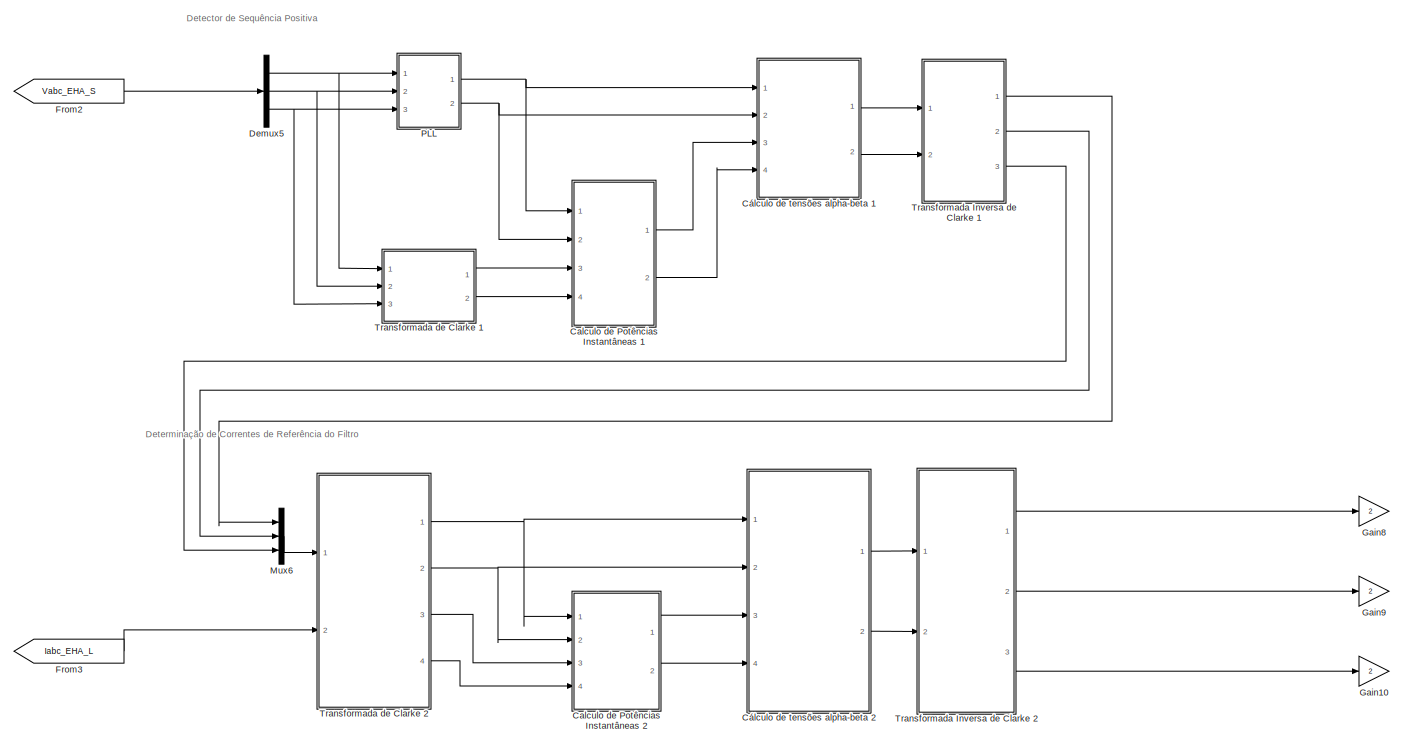
[diagram: root canvas - part 1/7, top center region]
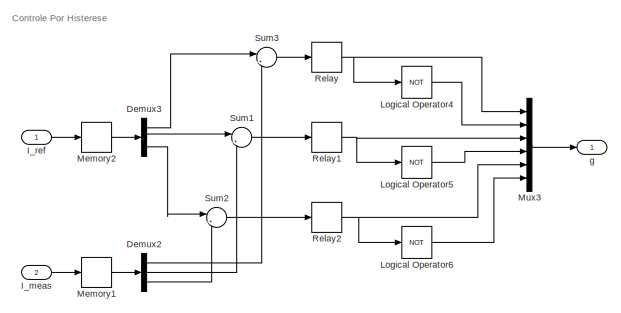
[diagram: root canvas - part 2/7, middle right region]
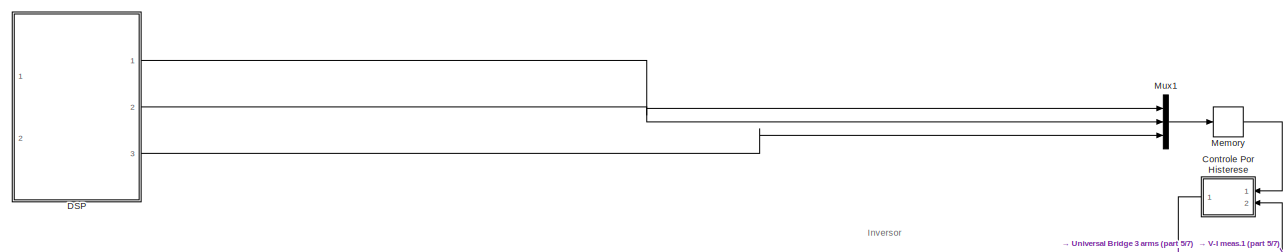
[diagram: root canvas - part 3/7, central region]
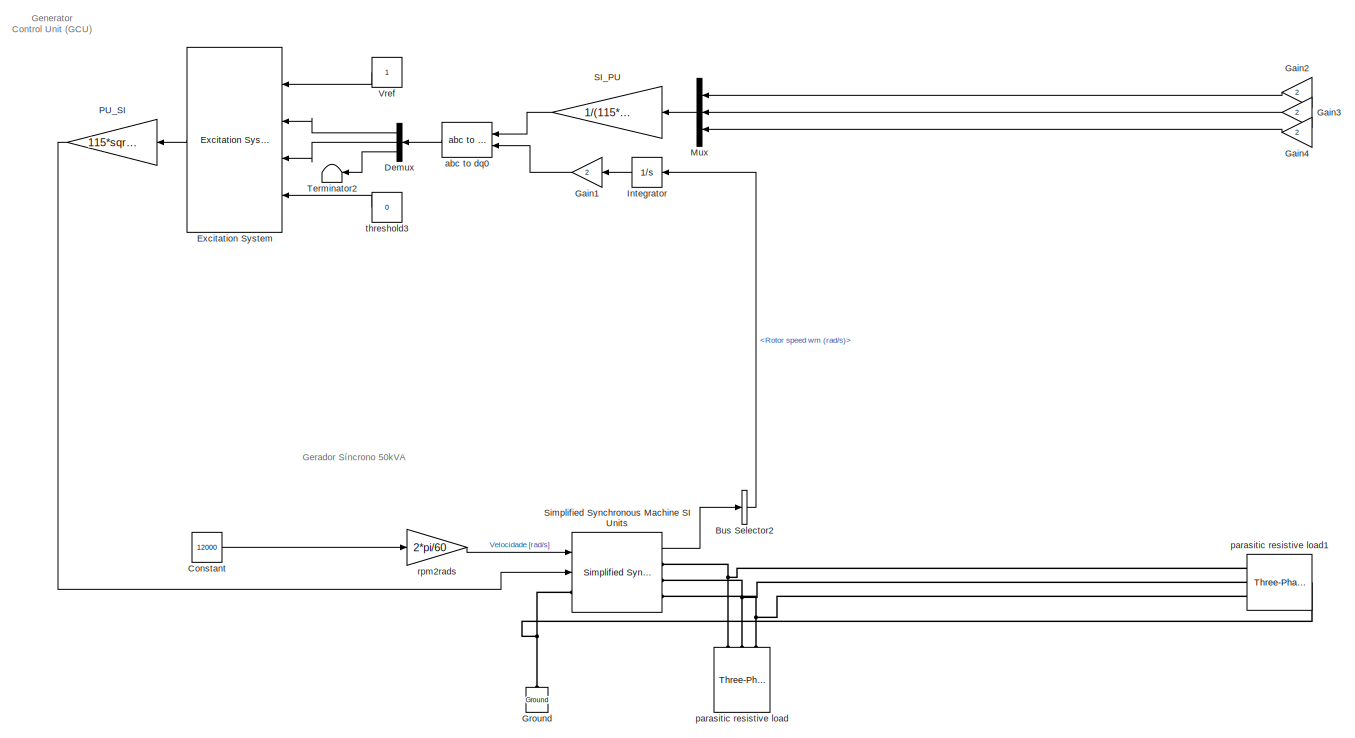
[diagram: root canvas - part 4/7, middle left region]
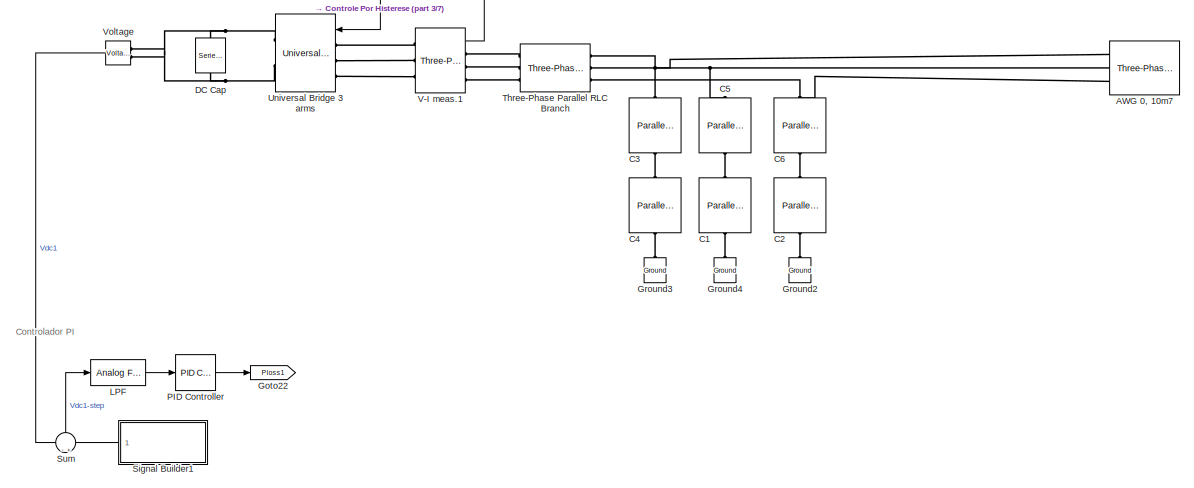
[diagram: root canvas - part 5/7, central region]
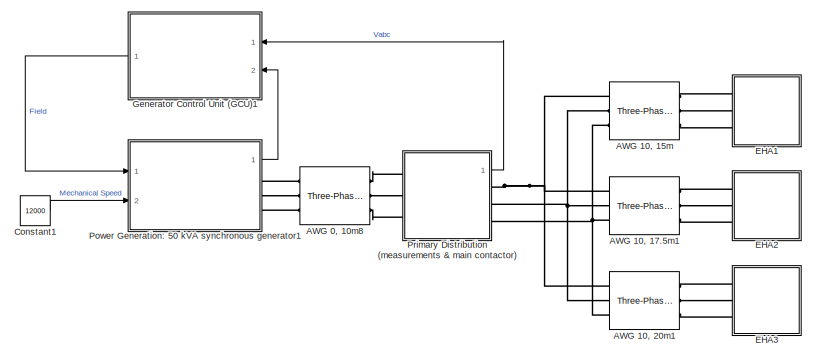
[diagram: root canvas - part 6/7, middle right region]
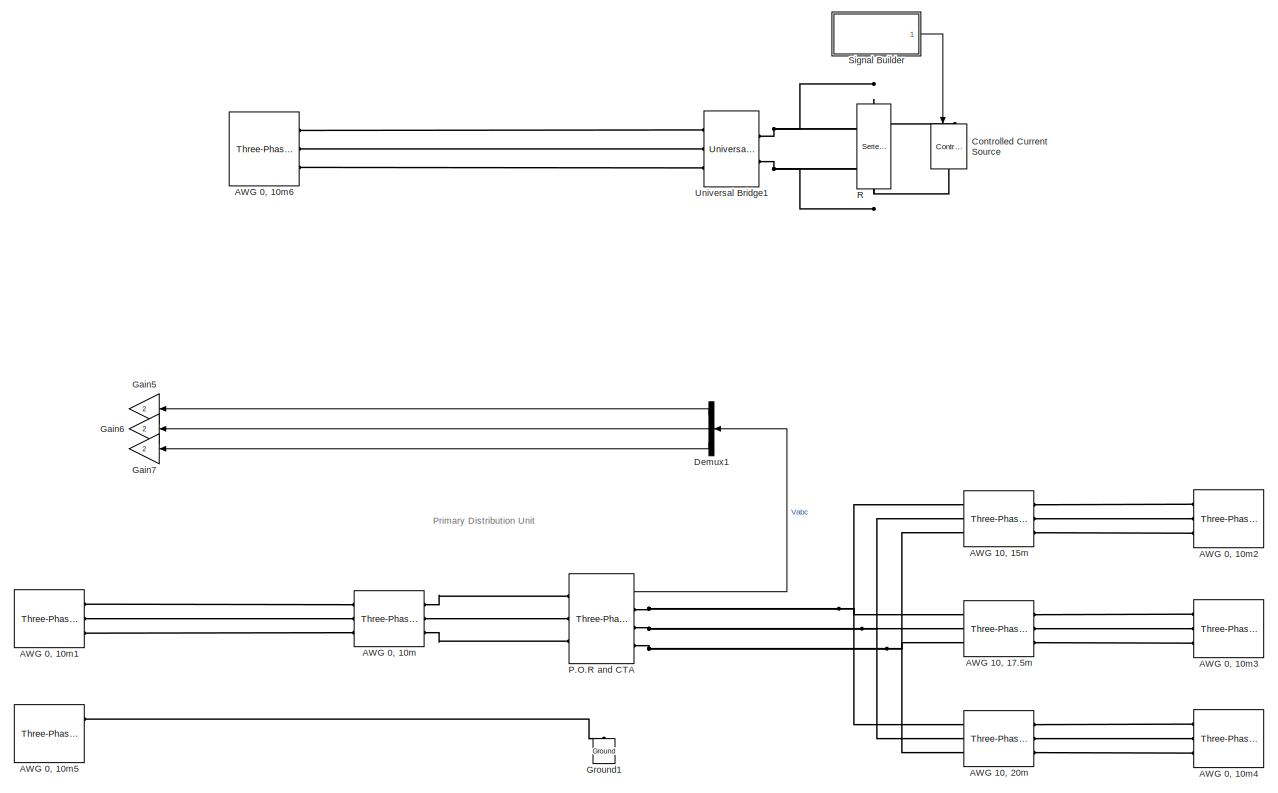
[diagram: root canvas - part 7/7, bottom left region]
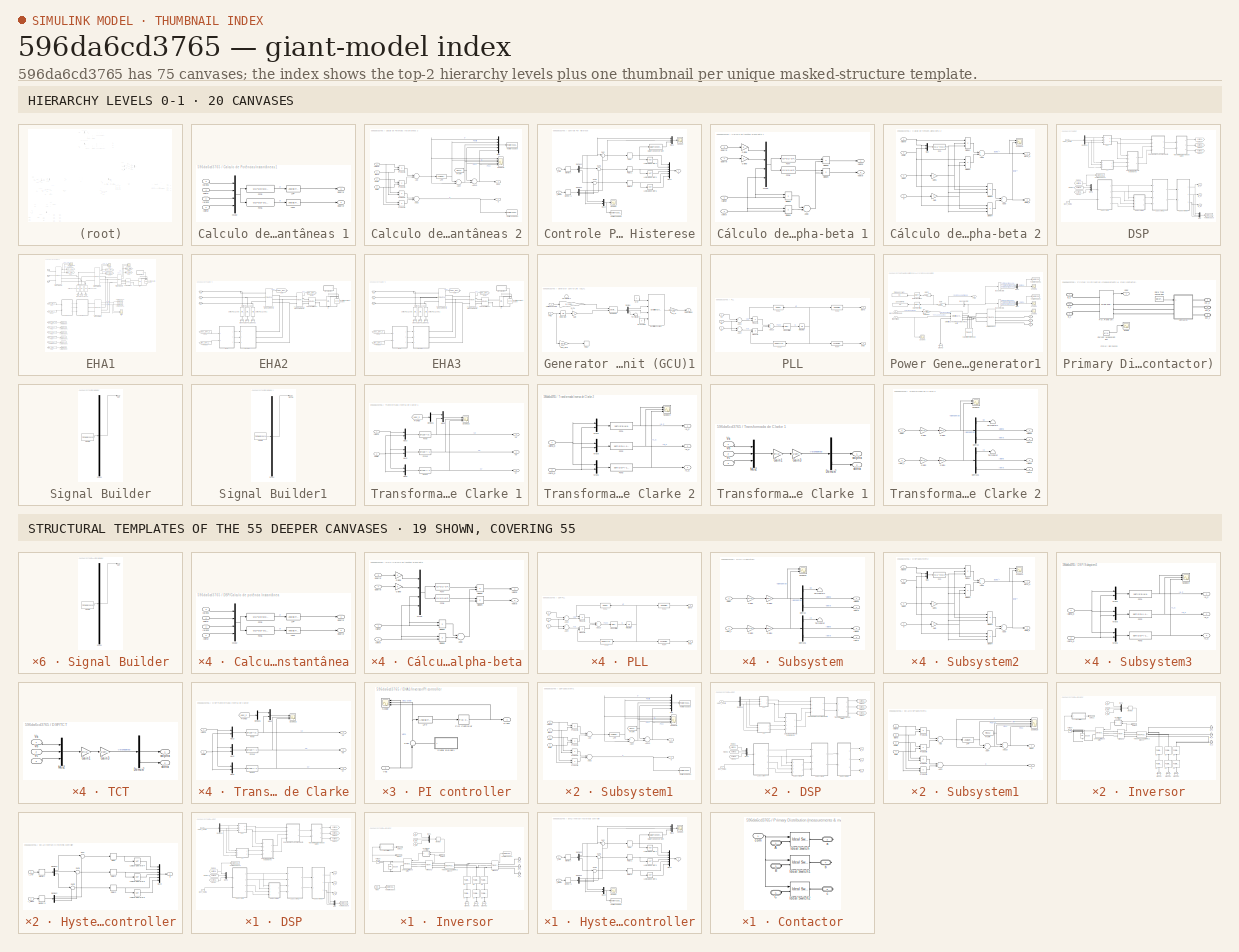
[diagram: thumbnail index - top-2 hierarchy levels (20 canvases) + 19 structural-template representatives of the remaining 55 canvases]
MODEL slx_596da6cd3765
KIND model
CONFIG AbsTol = auto
CONFIG FixedStep = auto
CONFIG MaxStep = auto
CONFIG MinStep = auto
CONFIG RelTol = 1e-3
CONFIG SampleTimeConstraint = Unconstrained
CONFIG Solver = VariableStepAuto
CONFIG SolverMode = Auto
CONFIG SolverName = VariableStepAuto
CONFIG StartTime = 0.0
CONFIG StopTime = 10.0
BLOCK [Reference] AWG 0, 10m  REF=powerlib/Elements/Three-Phase
Series RLC Branch
  AttributesFormatString = \n
  Ports = [0, 0, 0, 0, 0, 3, 3]
  SourceBlock = powerlib/Elements/Three-Phase\nSeries RLC Branch
  SourceType = Three-Phase Series RLC Branch
BLOCK [Reference] AWG 0, 10m1  REF=powerlib/Elements/Three-Phase
Parallel RLC Branch
  AttributesFormatString = \n
  Ports = [0, 0, 0, 0, 0, 3, 3]
  SourceBlock = powerlib/Elements/Three-Phase\nParallel RLC Branch
  SourceType = Three-Phase Parallel RLC Branch
BLOCK [Reference] AWG 0, 10m2  REF=powerlib/Elements/Three-Phase
Parallel RLC Branch
  AttributesFormatString = \n
  Ports = [0, 0, 0, 0, 0, 3, 3]
  SourceBlock = powerlib/Elements/Three-Phase\nParallel RLC Branch
  SourceType = Three-Phase Parallel RLC Branch
BLOCK [Reference] AWG 0, 10m3  REF=powerlib/Elements/Three-Phase
Parallel RLC Branch
  AttributesFormatString = \n
  Ports = [0, 0, 0, 0, 0, 3, 3]
  SourceBlock = powerlib/Elements/Three-Phase\nParallel RLC Branch
  SourceType = Three-Phase Parallel RLC Branch
BLOCK [Reference] AWG 0, 10m4  REF=powerlib/Elements/Three-Phase
Parallel RLC Branch
  AttributesFormatString = \n
  Ports = [0, 0, 0, 0, 0, 3, 3]
  SourceBlock = powerlib/Elements/Three-Phase\nParallel RLC Branch
  SourceType = Three-Phase Parallel RLC Branch
BLOCK [Reference] AWG 0, 10m5  REF=powerlib/Elements/Three-Phase
Parallel RLC Branch
  AttributesFormatString = \n
  Ports = [0, 0, 0, 0, 0, 3, 3]
  SourceBlock = powerlib/Elements/Three-Phase\nParallel RLC Branch
  SourceType = Three-Phase Parallel RLC Branch
BLOCK [Reference] AWG 0, 10m6  REF=powerlib/Elements/Three-Phase
Parallel RLC Branch
  AttributesFormatString = \n
  Ports = [0, 0, 0, 0, 0, 3, 3]
  SourceBlock = powerlib/Elements/Three-Phase\nParallel RLC Branch
  SourceType = Three-Phase Parallel RLC Branch
BLOCK [Reference] AWG 0, 10m7  REF=powerlib/Elements/Three-Phase
Parallel RLC Branch
  AttributesFormatString = \n
  Ports = [0, 0, 0, 0, 0, 3, 3]
  SourceBlock = powerlib/Elements/Three-Phase\nParallel RLC Branch
  SourceType = Three-Phase Parallel RLC Branch
BLOCK [Reference] AWG 0, 10m8  REF=powerlib/Elements/Three-Phase
Parallel RLC Branch
  AttributesFormatString = \n
  Ports = [0, 0, 0, 0, 0, 3, 3]
  SourceBlock = powerlib/Elements/Three-Phase\nParallel RLC Branch
  SourceType = Three-Phase Parallel RLC Branch
BLOCK [Reference] AWG 10, 15m  REF=powerlib/Elements/Three-Phase
Parallel RLC Branch
  AttributesFormatString = \n
  Ports = [0, 0, 0, 0, 0, 3, 3]
  SourceBlock = powerlib/Elements/Three-Phase\nParallel RLC Branch
  SourceType = Three-Phase Parallel RLC Branch
BLOCK [Reference] AWG 10, 15m   REF=powerlib/Elements/Three-Phase
Series RLC Branch
  AttributesFormatString = \n
  Ports = [0, 0, 0, 0, 0, 3, 3]
  SourceBlock = powerlib/Elements/Three-Phase\nSeries RLC Branch
  SourceType = Three-Phase Series RLC Branch
BLOCK [Reference] AWG 10, 17.5m  REF=powerlib/Elements/Three-Phase
Series RLC Branch
  AttributesFormatString = \n
  Ports = [0, 0, 0, 0, 0, 3, 3]
  SourceBlock = powerlib/Elements/Three-Phase\nSeries RLC Branch
  SourceType = Three-Phase Series RLC Branch
BLOCK [Reference] AWG 10, 17.5m1  REF=powerlib/Elements/Three-Phase
Parallel RLC Branch
  AttributesFormatString = \n
  Ports = [0, 0, 0, 0, 0, 3, 3]
  SourceBlock = powerlib/Elements/Three-Phase\nParallel RLC Branch
  SourceType = Three-Phase Parallel RLC Branch
BLOCK [Reference] AWG 10, 20m  REF=powerlib/Elements/Three-Phase
Series RLC Branch
  AttributesFormatString = \n
  Ports = [0, 0, 0, 0, 0, 3, 3]
  SourceBlock = powerlib/Elements/Three-Phase\nSeries RLC Branch
  SourceType = Three-Phase Series RLC Branch
BLOCK [Reference] AWG 10, 20m1  REF=powerlib/Elements/Three-Phase
Parallel RLC Branch
  AttributesFormatString = \n
  Ports = [0, 0, 0, 0, 0, 3, 3]
  SourceBlock = powerlib/Elements/Three-Phase\nParallel RLC Branch
  SourceType = Three-Phase Parallel RLC Branch
BLOCK [BusSelector] Bus Selector2
  OutputSignals = Rotor speed wm (rad/s)
  Ports = [1, 1]
BLOCK [Reference] C1  REF=powerlib/Elements/Parallel RLC Branch
  AttributesFormatString = \n
  Ports = [0, 0, 0, 0, 0, 1, 1]
  SourceBlock = powerlib/Elements/Parallel RLC Branch
  SourceType = Parallel RLC Branch
BLOCK [Reference] C2  REF=powerlib/Elements/Parallel RLC Branch
  AttributesFormatString = \n
  Ports = [0, 0, 0, 0, 0, 1, 1]
  SourceBlock = powerlib/Elements/Parallel RLC Branch
  SourceType = Parallel RLC Branch
BLOCK [Reference] C3  REF=powerlib/Elements/Parallel RLC Branch
  AttributesFormatString = \n
  Ports = [0, 0, 0, 0, 0, 1, 1]
  SourceBlock = powerlib/Elements/Parallel RLC Branch
  SourceType = Parallel RLC Branch
BLOCK [Reference] C4  REF=powerlib/Elements/Parallel RLC Branch
  AttributesFormatString = \n
  Ports = [0, 0, 0, 0, 0, 1, 1]
  SourceBlock = powerlib/Elements/Parallel RLC Branch
  SourceType = Parallel RLC Branch
BLOCK [Reference] C5  REF=powerlib/Elements/Parallel RLC Branch
  AttributesFormatString = \n
  Ports = [0, 0, 0, 0, 0, 1, 1]
  SourceBlock = powerlib/Elements/Parallel RLC Branch
  SourceType = Parallel RLC Branch
BLOCK [Reference] C6  REF=powerlib/Elements/Parallel RLC Branch
  AttributesFormatString = \n
  Ports = [0, 0, 0, 0, 0, 1, 1]
  SourceBlock = powerlib/Elements/Parallel RLC Branch
  SourceType = Parallel RLC Branch
BLOCK [SubSystem] Calculo de Potências Instantâneas 1
  Ports = [4, 2]
  RequestExecContextInheritance = off
  Variant = off
BLOCK [Fcn] Calculo de Potências Instantâneas 1/Fcn5
  Expr = u(1)*u(3)+u(2)*u(4)
BLOCK [Fcn] Calculo de Potências Instantâneas 1/Fcn6
  Expr = u(2)*u(3)-u(1)*u(4)
BLOCK [Inport] Calculo de Potências Instantâneas 1/Ialpha'
  IconDisplay = Port number
BLOCK [Inport] Calculo de Potências Instantâneas 1/Ibeta'
  IconDisplay = Port number
  Port = 2
BLOCK [Reference] Calculo de Potências Instantâneas 1/LPF  REF=dsparch4/Analog
Filter Design
  Ports = [1, 1]
  SourceBlock = dsparch4/Analog\nFilter Design
  SourceType = Analog Filter Design
BLOCK [Reference] Calculo de Potências Instantâneas 1/LPF1  REF=dsparch4/Analog
Filter Design
  Ports = [1, 1]
  SourceBlock = dsparch4/Analog\nFilter Design
  SourceType = Analog Filter Design
BLOCK [Mux] Calculo de Potências Instantâneas 1/Mux2
  DisplayOption = bar
  Ports = [4, 1]
BLOCK [Outport] Calculo de Potências Instantâneas 1/pbarra'
  IconDisplay = Port number
BLOCK [Outport] Calculo de Potências Instantâneas 1/qbarra'
  IconDisplay = Port number
  Port = 2
BLOCK [Inport] Calculo de Potências Instantâneas 1/valpha
  IconDisplay = Port number
  Port = 3
BLOCK [Inport] Calculo de Potências Instantâneas 1/vbeta
  IconDisplay = Port number
  Port = 4
BLOCK [SubSystem] Calculo de Potências Instantâneas 2
  Ports = [4, 2]
  RequestExecContextInheritance = off
  Variant = off
BLOCK [Sum] Calculo de Potências Instantâneas 2/Add
  InputSameDT = off
  OutDataTypeStr = Inherit: Inherit via internal rule
  Ports = [2, 1]
  SaturateOnIntegerOverflow = off
BLOCK [Sum] Calculo de Potências Instantâneas 2/Add10
  InputSameDT = off
  OutDataTypeStr = Inherit: Inherit via internal rule
  Ports = [2, 1]
  SaturateOnIntegerOverflow = off
BLOCK [Sum] Calculo de Potências Instantâneas 2/Add3
  InputSameDT = off
  Inputs = +-
  OutDataTypeStr = Inherit: Inherit via internal rule
  Ports = [2, 1]
  SaturateOnIntegerOverflow = off
BLOCK [Sum] Calculo de Potências Instantâneas 2/Add4
  InputSameDT = off
  Inputs = +-
  OutDataTypeStr = Inherit: Inherit via internal rule
  Ports = [2, 1]
  SaturateOnIntegerOverflow = off
BLOCK [From] Calculo de Potências Instantâneas 2/From4
  GotoTag = Ploss1
  TagVisibility = global
BLOCK [Inport] Calculo de Potências Instantâneas 2/Ialpha
  IconDisplay = Port number
  Port = 3
BLOCK [Inport] Calculo de Potências Instantâneas 2/Ibeta
  IconDisplay = Port number
  Port = 4
BLOCK [Reference] Calculo de Potências Instantâneas 2/LPF  REF=dsparch4/Analog
Filter Design
  Ports = [1, 1]
  SourceBlock = dsparch4/Analog\nFilter Design
  SourceType = Analog Filter Design
BLOCK [Mux] Calculo de Potências Instantâneas 2/Mux
  DisplayOption = bar
  Inputs = 5
  Ports = [5, 1]
BLOCK [Outport] Calculo de Potências Instantâneas 2/Posc
  IconDisplay = Port number
BLOCK [Product] Calculo de Potências Instantâneas 2/Product5
  InputSameDT = off
  OutDataTypeStr = Inherit: Inherit via internal rule
  Ports = [2, 1]
  RndMeth = Floor
  SaturateOnIntegerOverflow = off
BLOCK [Product] Calculo de Potências Instantâneas 2/Product6
  InputSameDT = off
  OutDataTypeStr = Inherit: Inherit via internal rule
  Ports = [2, 1]
  RndMeth = Floor
  SaturateOnIntegerOverflow = off
BLOCK [Product] Calculo de Potências Instantâneas 2/Product7
  InputSameDT = off
  OutDataTypeStr = Inherit: Inherit via internal rule
  Ports = [2, 1]
  RndMeth = Floor
  SaturateOnIntegerOverflow = off
BLOCK [Product] Calculo de Potências Instantâneas 2/Product8
  InputSameDT = off
  OutDataTypeStr = Inherit: Inherit via internal rule
  Ports = [2, 1]
  RndMeth = Floor
  SaturateOnIntegerOverflow = off
BLOCK [Scope] Calculo de Potências Instantâneas 2/Scope18
  NumInputPorts = 5
  Ports = [5]
  ScopeSpecificationString = Simulink.scopes.TimeScopeBlockCfg('CurrentConfiguration', extmgr.ConfigurationSet(extmgr.Configuration('Core','General UI',true),extmgr.Configuration('Core','Source UI',true),extmgr.Configuration('Sources','WiredSimulink',true,'DataLoggingVariableName','ScopeData35','DataLoggingLimitDataPoints',true,'DataLoggingSaveFormat','Array','DataLoggingDecimation','1','DataLoggingDecimateData',true),extmgr....<+3720ch>  <repeated x5 — deduplicated; at blocks: Scope18>
BLOCK [ToWorkspace] Calculo de Potências Instantâneas 2/To Workspace
  FixptAsFi = on
  MaxDataPoints = inf
  Ports = [1]
  SampleTime = -1
  Save2DSignal = 3-D array (concatenate along third dimension)
  SaveFormat = Structure With Time
  VariableName = p1
BLOCK [ToWorkspace] Calculo de Potências Instantâneas 2/To Workspace1
  FixptAsFi = on
  MaxDataPoints = inf
  Ports = [1]
  SampleTime = -1
  Save2DSignal = 3-D array (concatenate along third dimension)
  SaveFormat = Structure With Time
  VariableName = q1
BLOCK [Inport] Calculo de Potências Instantâneas 2/Valpha'
  IconDisplay = Port number
BLOCK [Inport] Calculo de Potências Instantâneas 2/Vbeta'
  IconDisplay = Port number
  Port = 2
BLOCK [Outport] Calculo de Potências Instantâneas 2/q
  IconDisplay = Port number
  Port = 2
BLOCK [Constant] Constant
  Value = 12000
BLOCK [Constant] Constant1
  Value = 12000
BLOCK [SubSystem] Controle Por Histerese
  Ports = [2, 1]
  RequestExecContextInheritance = off
  Variant = off
BLOCK [DataTypeConversion] Controle Por Histerese/Data Type Conversion
  RndMeth = Floor
  SaturateOnIntegerOverflow = off
BLOCK [Demux] Controle Por Histerese/Demux2
  DisplayOption = bar
  Outputs = 3
  Ports = [1, 3]
BLOCK [Demux] Controle Por Histerese/Demux3
  DisplayOption = bar
  Outputs = 3
  Ports = [1, 3]
BLOCK [Inport] Controle Por Histerese/I_meas
  IconDisplay = Port number
  Port = 2
BLOCK [Inport] Controle Por Histerese/I_ref
  IconDisplay = Port number
BLOCK [Logic] Controle Por Histerese/Logical Operator4
  AllPortsSameDT = off
  Operator = NOT
  OutDataTypeStr = boolean
  Ports = [1, 1]
BLOCK [Logic] Controle Por Histerese/Logical Operator5
  AllPortsSameDT = off
  Operator = NOT
  OutDataTypeStr = boolean
  Ports = [1, 1]
BLOCK [Logic] Controle Por Histerese/Logical Operator6
  AllPortsSameDT = off
  Operator = NOT
  OutDataTypeStr = boolean
  Ports = [1, 1]
BLOCK [Memory] Controle Por Histerese/Memory
BLOCK [Memory] Controle Por Histerese/Memory1
BLOCK [Mux] Controle Por Histerese/Mux1
  DisplayOption = bar
  Inputs = 3
  Ports = [3, 1]
BLOCK [Mux] Controle Por Histerese/Mux2
  DisplayOption = bar
  Inputs = 2
  Ports = [2, 1]
BLOCK [Mux] Controle Por Histerese/Mux3
  DisplayOption = bar
  Inputs = 6
  Ports = [6, 1]
BLOCK [Relay] Controle Por Histerese/Relay
  InputProcessing = Elements as channels (sample based)
  OffSwitchValue = -0.05
  OnSwitchValue = 0.05
  OutDataTypeStr = Inherit: Inherit via back propagation
BLOCK [Relay] Controle Por Histerese/Relay1
  InputProcessing = Elements as channels (sample based)
  OffSwitchValue = -0.05
  OnSwitchValue = 0.05
  OutDataTypeStr = Inherit: Inherit via back propagation
BLOCK [Relay] Controle Por Histerese/Relay2
  InputProcessing = Elements as channels (sample based)
  OffSwitchValue = -0.05
  OnSwitchValue = 0.05
  OutDataTypeStr = Inherit: Inherit via back propagation
BLOCK [Scope] Controle Por Histerese/Scope1
  Ports = [1]
  ScopeSpecificationString = Simulink.scopes.TimeScopeBlockCfg('CurrentConfiguration', extmgr.ConfigurationSet(extmgr.Configuration('Core','General UI',true),extmgr.Configuration('Core','Source UI',true),extmgr.Configuration('Sources','WiredSimulink',true,'DataLoggingVariableName','ScopeData30','DataLoggingLimitDataPoints',true,'DataLoggingSaveFormat','Array','DataLoggingDecimation','1','DataLoggingDecimateData',true),extmgr....<+1753ch>
BLOCK [Scope] Controle Por Histerese/Scope2
  Ports = [1]
  ScopeSpecificationString = Simulink.scopes.TimeScopeBlockCfg('CurrentConfiguration', extmgr.ConfigurationSet(extmgr.Configuration('Core','General UI',true),extmgr.Configuration('Core','Source UI',true),extmgr.Configuration('Sources','WiredSimulink',true,'DataLoggingVariableName','ScopeData6','DataLoggingLimitDataPoints',true,'DataLoggingSaveFormat','Array','DataLoggingDecimation','1','DataLoggingDecimateData',true),extmgr.C...<+1780ch>
BLOCK [Sum] Controle Por Histerese/Sum
  IconShape = round
  InputSameDT = off
  Inputs = |+-
  OutDataTypeStr = Inherit: Inherit via internal rule
  Ports = [2, 1]
  SaturateOnIntegerOverflow = off
BLOCK [Sum] Controle Por Histerese/Sum1
  IconShape = round
  InputSameDT = off
  Inputs = |+-
  OutDataTypeStr = Inherit: Inherit via internal rule
  Ports = [2, 1]
  SaturateOnIntegerOverflow = off
BLOCK [Sum] Controle Por Histerese/Sum2
  IconShape = round
  InputSameDT = off
  Inputs = |+-
  OutDataTypeStr = Inherit: Inherit via internal rule
  Ports = [2, 1]
  SaturateOnIntegerOverflow = off
BLOCK [ToWorkspace] Controle Por Histerese/To Workspace
  FixptAsFi = on
  MaxDataPoints = inf
  Ports = [1]
  SampleTime = -1
  Save2DSignal = 3-D array (concatenate along third dimension)
  SaveFormat = Structure With Time
  VariableName = hysteresis1
BLOCK [Outport] Controle Por Histerese/g
  IconDisplay = Port number
BLOCK [Reference] Controlled Current Source  REF=powerlib/Electrical
Sources/Controlled Current Source
  Ports = [1, 0, 0, 0, 0, 1, 1]
  SourceBlock = powerlib/Electrical\nSources/Controlled Current Source
  SourceType = Controlled Current Source
BLOCK [SubSystem] Cálculo de tensões alpha-beta 1
  Ports = [4, 2]
  RequestExecContextInheritance = off
  Variant = off
BLOCK [Sum] Cálculo de tensões alpha-beta 1/Add8
  InputSameDT = off
  OutDataTypeStr = Inherit: Inherit via internal rule
  Ports = [2, 1]
  SaturateOnIntegerOverflow = off
BLOCK [Product] Cálculo de tensões alpha-beta 1/Divide5
  InputSameDT = off
  Inputs = **
  OutDataTypeStr = Inherit: Inherit via internal rule
  Ports = [2, 1]
  RndMeth = Floor
  SaturateOnIntegerOverflow = off
BLOCK [Product] Cálculo de tensões alpha-beta 1/Divide6
  InputSameDT = off
  Inputs = **
  OutDataTypeStr = Inherit: Inherit via internal rule
  Ports = [2, 1]
  RndMeth = Floor
  SaturateOnIntegerOverflow = off
BLOCK [Product] Cálculo de tensões alpha-beta 1/Divide8
  InputSameDT = off
  Inputs = */
  OutDataTypeStr = Inherit: Inherit via internal rule
  Ports = [2, 1]
  RndMeth = Floor
  SaturateOnIntegerOverflow = off
BLOCK [Product] Cálculo de tensões alpha-beta 1/Divide9
  InputSameDT = off
  Inputs = */
  OutDataTypeStr = Inherit: Inherit via internal rule
  Ports = [2, 1]
  RndMeth = Floor
  SaturateOnIntegerOverflow = off
BLOCK [Fcn] Cálculo de tensões alpha-beta 1/Fcn7
  Expr = u(3)*u(1)-u(4)*u(2)
BLOCK [Fcn] Cálculo de tensões alpha-beta 1/Fcn8
  Expr = u(4)*u(1)+u(3)*u(2)
BLOCK [Gain] Cálculo de tensões alpha-beta 1/Gain8
  OutDataTypeStr = Inherit: Inherit via internal rule
  ParamDataTypeStr = Inherit: Inherit via internal rule
  SaturateOnIntegerOverflow = off
BLOCK [Gain] Cálculo de tensões alpha-beta 1/Gain9
  OutDataTypeStr = Inherit: Inherit via internal rule
  ParamDataTypeStr = Inherit: Inherit via internal rule
  SaturateOnIntegerOverflow = off
BLOCK [Inport] Cálculo de tensões alpha-beta 1/Ialpha'
  IconDisplay = Port number
BLOCK [Inport] Cálculo de tensões alpha-beta 1/Ibeta'
  IconDisplay = Port number
  Port = 2
BLOCK [Mux] Cálculo de tensões alpha-beta 1/Mux6
  DisplayOption = bar
  Ports = [4, 1]
BLOCK [Inport] Cálculo de tensões alpha-beta 1/pbarra'
  IconDisplay = Port number
  Port = 3
BLOCK [Inport] Cálculo de tensões alpha-beta 1/qbarra'
  IconDisplay = Port number
  Port = 4
BLOCK [Outport] Cálculo de tensões alpha-beta 1/valpha'
  IconDisplay = Port number
BLOCK [Outport] Cálculo de tensões alpha-beta 1/vbeta'
  IconDisplay = Port number
  Port = 2
BLOCK [SubSystem] Cálculo de tensões alpha-beta 2
  Ports = [4, 2]
  RequestExecContextInheritance = off
  Variant = off
BLOCK [Sum] Cálculo de tensões alpha-beta 2/Add8
  InputSameDT = off
  OutDataTypeStr = Inherit: Inherit via internal rule
  Ports = [2, 1]
  SaturateOnIntegerOverflow = off
BLOCK [Sum] Cálculo de tensões alpha-beta 2/Add9
  InputSameDT = off
  Inputs = +-
  OutDataTypeStr = Inherit: Inherit via internal rule
  Ports = [2, 1]
  SaturateOnIntegerOverflow = off
BLOCK [Product] Cálculo de tensões alpha-beta 2/Divide1
  InputSameDT = off
  Inputs = ***
  OutDataTypeStr = Inherit: Inherit via internal rule
  Ports = [3, 1]
  RndMeth = Floor
  SaturateOnIntegerOverflow = off
BLOCK [Product] Cálculo de tensões alpha-beta 2/Divide2
  InputSameDT = off
  Inputs = ***
  OutDataTypeStr = Inherit: Inherit via internal rule
  Ports = [3, 1]
  RndMeth = Floor
  SaturateOnIntegerOverflow = off
BLOCK [Product] Cálculo de tensões alpha-beta 2/Divide3
  InputSameDT = off
  Inputs = ***
  OutDataTypeStr = Inherit: Inherit via internal rule
  Ports = [3, 1]
  RndMeth = Floor
  SaturateOnIntegerOverflow = off
BLOCK [Product] Cálculo de tensões alpha-beta 2/Divide4
  InputSameDT = off
  Inputs = ***
  OutDataTypeStr = Inherit: Inherit via internal rule
  Ports = [3, 1]
  RndMeth = Floor
  SaturateOnIntegerOverflow = off
BLOCK [Fcn] Cálculo de tensões alpha-beta 2/Fcn
  Expr = 1/(u(1)^2+u(2)^2)
BLOCK [Gain] Cálculo de tensões alpha-beta 2/Gain
  OutDataTypeStr = Inherit: Inherit via internal rule
  ParamDataTypeStr = Inherit: Inherit via internal rule
  SaturateOnIntegerOverflow = off
BLOCK [Gain] Cálculo de tensões alpha-beta 2/Gain5
  Gain = -1
  OutDataTypeStr = Inherit: Inherit via internal rule
  ParamDataTypeStr = Inherit: Inherit via internal rule
  SaturateOnIntegerOverflow = off
BLOCK [Outport] Cálculo de tensões alpha-beta 2/Ialpha_p
  IconDisplay = Port number
BLOCK [Outport] Cálculo de tensões alpha-beta 2/Ibeta_p
  IconDisplay = Port number
  Port = 2
BLOCK [Mux] Cálculo de tensões alpha-beta 2/Mux
  DisplayOption = bar
  Inputs = 2
  Ports = [2, 1]
BLOCK [Inport] Cálculo de tensões alpha-beta 2/Posc
  IconDisplay = Port number
  Port = 3
BLOCK [Scope] Cálculo de tensões alpha-beta 2/Scope20
  NumInputPorts = 2
  Ports = [2]
  ScopeSpecificationString = C++SS(StrPVP('Location','[938, 59, 1851, 1074]'),StrPVP('Open','off'),StrPVP('ZoomMode','xonly'),MxPVP('AxesTitles',24,'struct(''axes1'',''%<SignalLabel>'',''axes2'',''%<SignalLabel>'')'),MxPVP('ScopeGraphics',28,'struct(''FigureColor'',''[0.5 0.5 0.5]'',''AxesColor'',''[0 0 0]'',''AxesTickColor'',''[1 1 1]'',''LineColors'',''[1 1 0;1 0 1;0 1 1;1 0 0;0 1 0;0 0 1]'',''LineStyles'',''-|-|-|-|-|-'','...<+366ch>  <repeated x3 — deduplicated; at blocks: Scope20>
BLOCK [Inport] Cálculo de tensões alpha-beta 2/Valpha'
  IconDisplay = Port number
BLOCK [Inport] Cálculo de tensões alpha-beta 2/Vbeta'
  IconDisplay = Port number
  Port = 2
BLOCK [Inport] Cálculo de tensões alpha-beta 2/q
  IconDisplay = Port number
  Port = 4
BLOCK [Reference] DC Cap  REF=powerlib/Elements/Series RLC Branch
  Ports = [0, 0, 0, 0, 0, 1, 1]
  SourceBlock = powerlib/Elements/Series RLC Branch
  SourceType = Series RLC Branch
BLOCK [SubSystem] DSP
  Ports = [2, 3]
  RequestExecContextInheritance = off
  Variant = off
BLOCK [SubSystem] DSP/Calculo de potência Instantânea
  Ports = [4, 2]
  RequestExecContextInheritance = off
  Variant = off
BLOCK [Fcn] DSP/Calculo de potência Instantânea/Fcn5
  Expr = u(1)*u(3)+u(2)*u(4)
BLOCK [Fcn] DSP/Calculo de potência Instantânea/Fcn6
  Expr = u(2)*u(3)-u(1)*u(4)
BLOCK [Inport] DSP/Calculo de potência Instantânea/Ialpha'
  IconDisplay = Port number
BLOCK [Inport] DSP/Calculo de potência Instantânea/Ibeta'
  IconDisplay = Port number
  Port = 2
BLOCK [Reference] DSP/Calculo de potência Instantânea/LPF  REF=dsparch4/Analog
Filter Design
  Ports = [1, 1]
  SourceBlock = dsparch4/Analog\nFilter Design
  SourceType = Analog Filter Design
BLOCK [Reference] DSP/Calculo de potência Instantânea/LPF1  REF=dsparch4/Analog
Filter Design
  Ports = [1, 1]
  SourceBlock = dsparch4/Analog\nFilter Design
  SourceType = Analog Filter Design
BLOCK [Mux] DSP/Calculo de potência Instantânea/Mux2
  DisplayOption = bar
  Ports = [4, 1]
BLOCK [Outport] DSP/Calculo de potência Instantânea/pbarra'
  IconDisplay = Port number
BLOCK [Outport] DSP/Calculo de potência Instantânea/qbarra'
  IconDisplay = Port number
  Port = 2
BLOCK [Inport] DSP/Calculo de potência Instantânea/valpha
  IconDisplay = Port number
  Port = 3
BLOCK [Inport] DSP/Calculo de potência Instantânea/vbeta
  IconDisplay = Port number
  Port = 4
BLOCK [SubSystem] DSP/Cálculo de tensões alpha-beta
  Ports = [4, 2]
  RequestExecContextInheritance = off
  Variant = off
BLOCK [Sum] DSP/Cálculo de tensões alpha-beta/Add8
  InputSameDT = off
  OutDataTypeStr = Inherit: Inherit via internal rule
  Ports = [2, 1]
  SaturateOnIntegerOverflow = off
BLOCK [Product] DSP/Cálculo de tensões alpha-beta/Divide5
  InputSameDT = off
  Inputs = **
  OutDataTypeStr = Inherit: Inherit via internal rule
  Ports = [2, 1]
  RndMeth = Floor
  SaturateOnIntegerOverflow = off
BLOCK [Product] DSP/Cálculo de tensões alpha-beta/Divide6
  InputSameDT = off
  Inputs = **
  OutDataTypeStr = Inherit: Inherit via internal rule
  Ports = [2, 1]
  RndMeth = Floor
  SaturateOnIntegerOverflow = off
BLOCK [Product] DSP/Cálculo de tensões alpha-beta/Divide8
  InputSameDT = off
  Inputs = */
  OutDataTypeStr = Inherit: Inherit via internal rule
  Ports = [2, 1]
  RndMeth = Floor
  SaturateOnIntegerOverflow = off
BLOCK [Product] DSP/Cálculo de tensões alpha-beta/Divide9
  InputSameDT = off
  Inputs = */
  OutDataTypeStr = Inherit: Inherit via internal rule
  Ports = [2, 1]
  RndMeth = Floor
  SaturateOnIntegerOverflow = off
BLOCK [Fcn] DSP/Cálculo de tensões alpha-beta/Fcn7
  Expr = u(3)*u(1)-u(4)*u(2)
BLOCK [Fcn] DSP/Cálculo de tensões alpha-beta/Fcn8
  Expr = u(4)*u(1)+u(3)*u(2)
BLOCK [Gain] DSP/Cálculo de tensões alpha-beta/Gain8
  OutDataTypeStr = Inherit: Inherit via internal rule
  ParamDataTypeStr = Inherit: Inherit via internal rule
  SaturateOnIntegerOverflow = off
BLOCK [Gain] DSP/Cálculo de tensões alpha-beta/Gain9
  OutDataTypeStr = Inherit: Inherit via internal rule
  ParamDataTypeStr = Inherit: Inherit via internal rule
  SaturateOnIntegerOverflow = off
BLOCK [Inport] DSP/Cálculo de tensões alpha-beta/Ialpha'
  IconDisplay = Port number
BLOCK [Inport] DSP/Cálculo de tensões alpha-beta/Ibeta'
  IconDisplay = Port number
  Port = 2
BLOCK [Mux] DSP/Cálculo de tensões alpha-beta/Mux6
  DisplayOption = bar
  Ports = [4, 1]
BLOCK [Inport] DSP/Cálculo de tensões alpha-beta/pbarra'
  IconDisplay = Port number
  Port = 3
BLOCK [Inport] DSP/Cálculo de tensões alpha-beta/qbarra'
  IconDisplay = Port number
  Port = 4
BLOCK [Outport] DSP/Cálculo de tensões alpha-beta/valpha'
  IconDisplay = Port number
BLOCK [Outport] DSP/Cálculo de tensões alpha-beta/vbeta'
  IconDisplay = Port number
  Port = 2
BLOCK [Demux] DSP/Demux5
  DisplayOption = bar
  Outputs = 3
  Ports = [1, 3]
BLOCK [From] DSP/From39
  GotoTag = valinha
BLOCK [From] DSP/From40
  GotoTag = vblinha
BLOCK [From] DSP/From41
  GotoTag = vclinha
BLOCK [Goto] DSP/Goto29
  GotoTag = valinha
BLOCK [Goto] DSP/Goto30
  GotoTag = vblinha
BLOCK [Goto] DSP/Goto31
  GotoTag = vclinha
BLOCK [Outport] DSP/Ia_C*
  IconDisplay = Port number
BLOCK [Inport] DSP/Iabc_Carga
  IconDisplay = Port number
  Port = 2
BLOCK [Outport] DSP/Ib_C*
  IconDisplay = Port number
  Port = 2
BLOCK [Outport] DSP/Ic_C*
  IconDisplay = Port number
  Port = 3
BLOCK [Mux] DSP/Mux
  DisplayOption = bar
  Inputs = 3
  Ports = [3, 1]
BLOCK [Mux] DSP/Mux6
  DisplayOption = bar
  Inputs = 3
  Ports = [3, 1]
BLOCK [SubSystem] DSP/PLL
  Ports = [3, 2]
  RequestExecContextInheritance = off
  Variant = off
BLOCK [Sum] DSP/PLL/Add10
  InputSameDT = off
  OutDataTypeStr = Inherit: Inherit via internal rule
  Ports = [2, 1]
  SaturateOnIntegerOverflow = off
BLOCK [Sum] DSP/PLL/Add3
  InputSameDT = off
  Inputs = +-
  OutDataTypeStr = Inherit: Inherit via internal rule
  Ports = [2, 1]
  SaturateOnIntegerOverflow = off
BLOCK [Sum] DSP/PLL/Add4
  InputSameDT = off
  Inputs = +-
  OutDataTypeStr = Inherit: Inherit via internal rule
  Ports = [2, 1]
  SaturateOnIntegerOverflow = off
BLOCK [Fcn] DSP/PLL/Fcn1
  Expr = sin(u(1))
BLOCK [Fcn] DSP/PLL/Fcn2
  Expr = sin(u(1)+2*pi/3)
BLOCK [Fcn] DSP/PLL/Fcn3
  Expr = sin(u(1)-pi/2)
BLOCK [Fcn] DSP/PLL/Fcn4
  Expr = -cos(u(1)-pi/2)
BLOCK [Outport] DSP/PLL/Ialpha'
  IconDisplay = Port number
BLOCK [Outport] DSP/PLL/Ibeta'
  IconDisplay = Port number
  Port = 2
BLOCK [Integrator] DSP/PLL/Integrator
  Ports = [1, 1]
BLOCK [Reference] DSP/PLL/PID Controller  REF=simulink/Continuous/PID Controller
  Ports = [1, 1]
  SourceBlock = simulink/Continuous/PID Controller
  SourceType = PID 1dof
BLOCK [Product] DSP/PLL/Product5
  InputSameDT = off
  OutDataTypeStr = Inherit: Inherit via internal rule
  Ports = [2, 1]
  RndMeth = Floor
  SaturateOnIntegerOverflow = off
BLOCK [Product] DSP/PLL/Product6
  InputSameDT = off
  OutDataTypeStr = Inherit: Inherit via internal rule
  Ports = [2, 1]
  RndMeth = Floor
  SaturateOnIntegerOverflow = off
BLOCK [Inport] DSP/PLL/Va
  IconDisplay = Port number
BLOCK [Inport] DSP/PLL/Vb
  IconDisplay = Port number
  Port = 2
BLOCK [Inport] DSP/PLL/Vc
  IconDisplay = Port number
  Port = 3
BLOCK [SubSystem] DSP/Subsystem
  Ports = [2, 4]
  RequestExecContextInheritance = off
  Variant = off
BLOCK [Demux] DSP/Subsystem/Demux
  DisplayOption = bar
  Outputs = 3
  Ports = [1, 3]
BLOCK [Demux] DSP/Subsystem/Demux6
  DisplayOption = bar
  Outputs = 3
  Ports = [1, 3]
BLOCK [Gain] DSP/Subsystem/Gain1
  Gain = sqrt(2/3)
  OutDataTypeStr = Inherit: Inherit via internal rule
  ParamDataTypeStr = Inherit: Inherit via internal rule
  SaturateOnIntegerOverflow = off
BLOCK [Gain] DSP/Subsystem/Gain2
  Gain = sqrt(2/3)
  OutDataTypeStr = Inherit: Inherit via internal rule
  ParamDataTypeStr = Inherit: Inherit via internal rule
  SaturateOnIntegerOverflow = off
BLOCK [Gain] DSP/Subsystem/Gain3
  Gain = [1/sqrt(2), 1/sqrt(2), 1/sqrt(2); 1, -1/2, -1/2; 0, sqrt(3)/2, -sqrt(3)/2]
  Multiplication = Matrix(K*u)
  OutDataTypeStr = Inherit: Inherit via internal rule
  ParamDataTypeStr = Inherit: Inherit via internal rule
  SaturateOnIntegerOverflow = off
BLOCK [Gain] DSP/Subsystem/Gain4
  Gain = [1/sqrt(2), 1/sqrt(2), 1/sqrt(2); 1, -1/2, -1/2; 0, sqrt(3)/2, -sqrt(3)/2]
  Multiplication = Matrix(K*u)
  OutDataTypeStr = Inherit: Inherit via internal rule
  ParamDataTypeStr = Inherit: Inherit via internal rule
  SaturateOnIntegerOverflow = off
BLOCK [Inport] DSP/Subsystem/Iabc_L
  IconDisplay = Port number
  Port = 2
BLOCK [Outport] DSP/Subsystem/Ialpha
  IconDisplay = Port number
  Port = 3
BLOCK [Outport] DSP/Subsystem/Ibeta
  IconDisplay = Port number
  Port = 4
BLOCK [Scope] DSP/Subsystem/Scope15
  NumInputPorts = 2
  Ports = [2]
  ScopeSpecificationString = Simulink.scopes.TimeScopeBlockCfg('CurrentConfiguration', extmgr.ConfigurationSet(extmgr.Configuration('Core','General UI',true),extmgr.Configuration('Core','Source UI',true),extmgr.Configuration('Sources','WiredSimulink',true,'DataLoggingVariableName','ScopeData33','DataLoggingLimitDataPoints',true,'DataLoggingSaveFormat','Array','DataLoggingDecimation','1','DataLoggingDecimateData',true),extmgr....<+2429ch>  <repeated x5 — deduplicated; at blocks: Scope15>
BLOCK [Terminator] DSP/Subsystem/Terminator
BLOCK [Terminator] DSP/Subsystem/Terminator1
BLOCK [Inport] DSP/Subsystem/Vabc'
  IconDisplay = Port number
BLOCK [Outport] DSP/Subsystem/Valpha'
  IconDisplay = Port number
BLOCK [Outport] DSP/Subsystem/Vbeta'
  IconDisplay = Port number
  Port = 2
BLOCK [SubSystem] DSP/Subsystem1
  Ports = [4, 2]
  RequestExecContextInheritance = off
  Variant = off
BLOCK [Sum] DSP/Subsystem1/Add
  InputSameDT = off
  OutDataTypeStr = Inherit: Inherit via internal rule
  Ports = [2, 1]
  SaturateOnIntegerOverflow = off
BLOCK [Sum] DSP/Subsystem1/Add10
  InputSameDT = off
  OutDataTypeStr = Inherit: Inherit via internal rule
  Ports = [2, 1]
  SaturateOnIntegerOverflow = off
BLOCK [Sum] DSP/Subsystem1/Add3
  InputSameDT = off
  Inputs = +-
  OutDataTypeStr = Inherit: Inherit via internal rule
  Ports = [2, 1]
  SaturateOnIntegerOverflow = off
BLOCK [Sum] DSP/Subsystem1/Add4
  InputSameDT = off
  Inputs = +-
  OutDataTypeStr = Inherit: Inherit via internal rule
  Ports = [2, 1]
  SaturateOnIntegerOverflow = off
BLOCK [From] DSP/Subsystem1/From4
  GotoTag = Ploss1
  TagVisibility = global
BLOCK [Inport] DSP/Subsystem1/Ialpha
  IconDisplay = Port number
  Port = 3
BLOCK [Inport] DSP/Subsystem1/Ibeta
  IconDisplay = Port number
  Port = 4
BLOCK [Reference] DSP/Subsystem1/LPF  REF=dsparch4/Analog
Filter Design
  Ports = [1, 1]
  SourceBlock = dsparch4/Analog\nFilter Design
  SourceType = Analog Filter Design
BLOCK [Mux] DSP/Subsystem1/Mux
  DisplayOption = bar
  Inputs = 5
  Ports = [5, 1]
BLOCK [Outport] DSP/Subsystem1/Posc
  IconDisplay = Port number
BLOCK [Product] DSP/Subsystem1/Product5
  InputSameDT = off
  OutDataTypeStr = Inherit: Inherit via internal rule
  Ports = [2, 1]
  RndMeth = Floor
  SaturateOnIntegerOverflow = off
BLOCK [Product] DSP/Subsystem1/Product6
  InputSameDT = off
  OutDataTypeStr = Inherit: Inherit via internal rule
  Ports = [2, 1]
  RndMeth = Floor
  SaturateOnIntegerOverflow = off
BLOCK [Product] DSP/Subsystem1/Product7
  InputSameDT = off
  OutDataTypeStr = Inherit: Inherit via internal rule
  Ports = [2, 1]
  RndMeth = Floor
  SaturateOnIntegerOverflow = off
BLOCK [Product] DSP/Subsystem1/Product8
  InputSameDT = off
  OutDataTypeStr = Inherit: Inherit via internal rule
  Ports = [2, 1]
  RndMeth = Floor
  SaturateOnIntegerOverflow = off
BLOCK [Scope] DSP/Subsystem1/Scope18
  NumInputPorts = 5
  Ports = [5]
BLOCK [ToWorkspace] DSP/Subsystem1/To Workspace
  FixptAsFi = on
  MaxDataPoints = inf
  Ports = [1]
  SampleTime = -1
  Save2DSignal = 3-D array (concatenate along third dimension)
  SaveFormat = Structure With Time
  VariableName = p1
BLOCK [ToWorkspace] DSP/Subsystem1/To Workspace1
  FixptAsFi = on
  MaxDataPoints = inf
  Ports = [1]
  SampleTime = -1
  Save2DSignal = 3-D array (concatenate along third dimension)
  SaveFormat = Structure With Time
  VariableName = q1
BLOCK [Inport] DSP/Subsystem1/Valpha'
  IconDisplay = Port number
BLOCK [Inport] DSP/Subsystem1/Vbeta'
  IconDisplay = Port number
  Port = 2
BLOCK [Outport] DSP/Subsystem1/q
  IconDisplay = Port number
  Port = 2
BLOCK [SubSystem] DSP/Subsystem2
  Ports = [4, 2]
  RequestExecContextInheritance = off
  Variant = off
BLOCK [Sum] DSP/Subsystem2/Add8
  InputSameDT = off
  OutDataTypeStr = Inherit: Inherit via internal rule
  Ports = [2, 1]
  SaturateOnIntegerOverflow = off
BLOCK [Sum] DSP/Subsystem2/Add9
  InputSameDT = off
  Inputs = +-
  OutDataTypeStr = Inherit: Inherit via internal rule
  Ports = [2, 1]
  SaturateOnIntegerOverflow = off
BLOCK [Product] DSP/Subsystem2/Divide1
  InputSameDT = off
  Inputs = ***
  OutDataTypeStr = Inherit: Inherit via internal rule
  Ports = [3, 1]
  RndMeth = Floor
  SaturateOnIntegerOverflow = off
BLOCK [Product] DSP/Subsystem2/Divide2
  InputSameDT = off
  Inputs = ***
  OutDataTypeStr = Inherit: Inherit via internal rule
  Ports = [3, 1]
  RndMeth = Floor
  SaturateOnIntegerOverflow = off
BLOCK [Product] DSP/Subsystem2/Divide3
  InputSameDT = off
  Inputs = ***
  OutDataTypeStr = Inherit: Inherit via internal rule
  Ports = [3, 1]
  RndMeth = Floor
  SaturateOnIntegerOverflow = off
BLOCK [Product] DSP/Subsystem2/Divide4
  InputSameDT = off
  Inputs = ***
  OutDataTypeStr = Inherit: Inherit via internal rule
  Ports = [3, 1]
  RndMeth = Floor
  SaturateOnIntegerOverflow = off
BLOCK [Fcn] DSP/Subsystem2/Fcn
  Expr = 1/(u(1)^2+u(2)^2)
BLOCK [Gain] DSP/Subsystem2/Gain
  OutDataTypeStr = Inherit: Inherit via internal rule
  ParamDataTypeStr = Inherit: Inherit via internal rule
  SaturateOnIntegerOverflow = off
BLOCK [Gain] DSP/Subsystem2/Gain5
  Gain = -1
  OutDataTypeStr = Inherit: Inherit via internal rule
  ParamDataTypeStr = Inherit: Inherit via internal rule
  SaturateOnIntegerOverflow = off
BLOCK [Outport] DSP/Subsystem2/Ialpha_p
  IconDisplay = Port number
BLOCK [Outport] DSP/Subsystem2/Ibeta_p
  IconDisplay = Port number
  Port = 2
BLOCK [Mux] DSP/Subsystem2/Mux
  DisplayOption = bar
  Inputs = 2
  Ports = [2, 1]
BLOCK [Inport] DSP/Subsystem2/Posc
  IconDisplay = Port number
  Port = 3
BLOCK [Scope] DSP/Subsystem2/Scope20
  NumInputPorts = 2
  Ports = [2]
BLOCK [Inport] DSP/Subsystem2/Valpha'
  IconDisplay = Port number
BLOCK [Inport] DSP/Subsystem2/Vbeta'
  IconDisplay = Port number
  Port = 2
BLOCK [Inport] DSP/Subsystem2/q
  IconDisplay = Port number
  Port = 4
BLOCK [SubSystem] DSP/Subsystem3
  Ports = [2, 3]
  RequestExecContextInheritance = off
  Variant = off
BLOCK [Fcn] DSP/Subsystem3/Fcn1
  Expr = sqrt(2/3)*u(1)
BLOCK [Fcn] DSP/Subsystem3/Fcn2
  Expr = sqrt(2/3)*(-1/2*u(1)+sqrt(3)/2*u(2))
BLOCK [Fcn] DSP/Subsystem3/Fcn3
  Expr = sqrt(2/3)*(-1/2*u(1)-sqrt(3)/2*u(2))
BLOCK [Outport] DSP/Subsystem3/Ia_C
  IconDisplay = Port number
BLOCK [Inport] DSP/Subsystem3/Ialpha_p
  IconDisplay = Port number
BLOCK [Outport] DSP/Subsystem3/Ib_C
  IconDisplay = Port number
  Port = 2
BLOCK [Inport] DSP/Subsystem3/Ibeta_p
  IconDisplay = Port number
  Port = 2
BLOCK [Outport] DSP/Subsystem3/Ic_C
  IconDisplay = Port number
  Port = 3
BLOCK [Mux] DSP/Subsystem3/Mux2
  DisplayOption = bar
  Inputs = 2
  Ports = [2, 1]
BLOCK [Mux] DSP/Subsystem3/Mux3
  DisplayOption = bar
  Inputs = 2
  Ports = [2, 1]
BLOCK [Mux] DSP/Subsystem3/Mux5
  DisplayOption = bar
  Inputs = 2
  Ports = [2, 1]
BLOCK [Scope] DSP/Subsystem3/Scope14
  NumInputPorts = 3
  Ports = [3]
  ScopeSpecificationString = Simulink.scopes.TimeScopeBlockCfg('CurrentConfiguration', extmgr.ConfigurationSet(extmgr.Configuration('Core','General UI',true),extmgr.Configuration('Core','Source UI',true),extmgr.Configuration('Sources','WiredSimulink',true,'DataLoggingVariableName','ScopeData32','DataLoggingLimitDataPoints',true,'DataLoggingSaveFormat','Array','DataLoggingDecimation','1','DataLoggingDecimateData',true),extmgr....<+3085ch>  <repeated x5 — deduplicated; at blocks: Scope14>
BLOCK [SubSystem] DSP/TCT
  Ports = [3, 2]
  RequestExecContextInheritance = off
  Variant = off
BLOCK [Demux] DSP/TCT/Demux7
  DisplayOption = bar
  Outputs = 3
  Ports = [1, 3]
BLOCK [Gain] DSP/TCT/Gain1
  Gain = sqrt(2/3)
  OutDataTypeStr = Inherit: Inherit via internal rule
  ParamDataTypeStr = Inherit: Inherit via internal rule
  SaturateOnIntegerOverflow = off
BLOCK [Gain] DSP/TCT/Gain3
  Gain = [1/sqrt(2), 1/sqrt(2), 1/sqrt(2); 1, -1/2, -1/2; 0, sqrt(3)/2, -sqrt(3)/2]
  Multiplication = Matrix(K*u)
  OutDataTypeStr = Inherit: Inherit via internal rule
  ParamDataTypeStr = Inherit: Inherit via internal rule
  SaturateOnIntegerOverflow = off
BLOCK [Mux] DSP/TCT/Mux2
  DisplayOption = bar
  Inputs = 3
  Ports = [3, 1]
BLOCK [Inport] DSP/TCT/Va
  IconDisplay = Port number
BLOCK [Inport] DSP/TCT/Vb
  IconDisplay = Port number
  Port = 2
BLOCK [Inport] DSP/TCT/Vc
  IconDisplay = Port number
  Port = 3
BLOCK [Outport] DSP/TCT/valpha
  IconDisplay = Port number
BLOCK [Outport] DSP/TCT/vbeta
  IconDisplay = Port number
  Port = 2
BLOCK [ToWorkspace] DSP/To Workspace
  FixptAsFi = on
  MaxDataPoints = inf
  Ports = [1]
  SampleTime = -1
  Save2DSignal = 3-D array (concatenate along third dimension)
  SaveFormat = Structure With Time
  VariableName = Iref1
BLOCK [ToWorkspace] DSP/To Workspace1
  FixptAsFi = on
  MaxDataPoints = inf
  Ports = [1]
  SampleTime = -1
  Save2DSignal = 3-D array (concatenate along third dimension)
  SaveFormat = Structure With Time
  VariableName = valinha
BLOCK [SubSystem] DSP/Transformada Inversa de Clarke
  Ports = [2, 3]
  RequestExecContextInheritance = off
  Variant = off
BLOCK [Demux] DSP/Transformada Inversa de Clarke/Demux6
  DisplayOption = bar
  Outputs = 3
  Ports = [1, 3]
BLOCK [Fcn] DSP/Transformada Inversa de Clarke/Fcn10
  Expr = sqrt(2/3)*(-1/2*u(1)+sqrt(3)/2*u(2))
BLOCK [Fcn] DSP/Transformada Inversa de Clarke/Fcn11
  Expr = sqrt(2/3)*(-1/2*u(1)-sqrt(3)/2*u(2))
BLOCK [Fcn] DSP/Transformada Inversa de Clarke/Fcn9
  Expr = sqrt(2/3)*(u(1) + 0*u(2))
BLOCK [From] DSP/Transformada Inversa de Clarke/From30
  GotoTag = Vabc_S
BLOCK [Mux] DSP/Transformada Inversa de Clarke/Mux3
  DisplayOption = bar
  Inputs = 2
  Ports = [2, 1]
BLOCK [Mux] DSP/Transformada Inversa de Clarke/Mux5
  DisplayOption = bar
  Inputs = 2
  Ports = [2, 1]
BLOCK [Mux] DSP/Transformada Inversa de Clarke/Mux8
  DisplayOption = bar
  Inputs = 2
  Ports = [2, 1]
BLOCK [Mux] DSP/Transformada Inversa de Clarke/Mux9
  DisplayOption = bar
  Inputs = 2
  Ports = [2, 1]
BLOCK [Scope] DSP/Transformada Inversa de Clarke/Scope23
  NumInputPorts = 3
  Ports = [3]
  ScopeSpecificationString = Simulink.scopes.TimeScopeBlockCfg('CurrentConfiguration', extmgr.ConfigurationSet(extmgr.Configuration('Core','General UI',true),extmgr.Configuration('Core','Source UI',true),extmgr.Configuration('Sources','WiredSimulink',true,'DataLoggingVariableName','ScopeData28','DataLoggingLimitDataPoints',true,'DataLoggingSaveFormat','Array','DataLoggingDecimation','1','DataLoggingDecimateData',true),extmgr....<+3040ch>  <repeated x5 — deduplicated; at blocks: Scope23>
BLOCK [Outport] DSP/Transformada Inversa de Clarke/va'
  IconDisplay = Port number
BLOCK [Inport] DSP/Transformada Inversa de Clarke/valpha'
  IconDisplay = Port number
BLOCK [Outport] DSP/Transformada Inversa de Clarke/vb'
  IconDisplay = Port number
  Port = 2
BLOCK [Inport] DSP/Transformada Inversa de Clarke/vbeta'
  IconDisplay = Port number
  Port = 2
BLOCK [Outport] DSP/Transformada Inversa de Clarke/vc'
  IconDisplay = Port number
  Port = 3
BLOCK [Inport] DSP/Vabc_Fonte
  IconDisplay = Port number
BLOCK [Demux] Demux
  DisplayOption = bar
  Outputs = 3
  Ports = [1, 3]
BLOCK [Demux] Demux1
  DisplayOption = bar
  Outputs = 3
  Ports = [1, 3]
BLOCK [Demux] Demux2
  DisplayOption = bar
  Outputs = 3
  Ports = [1, 3]
BLOCK [Demux] Demux3
  DisplayOption = bar
  Outputs = 3
  Ports = [1, 3]
BLOCK [Demux] Demux5
  DisplayOption = bar
  Outputs = 3
  Ports = [1, 3]
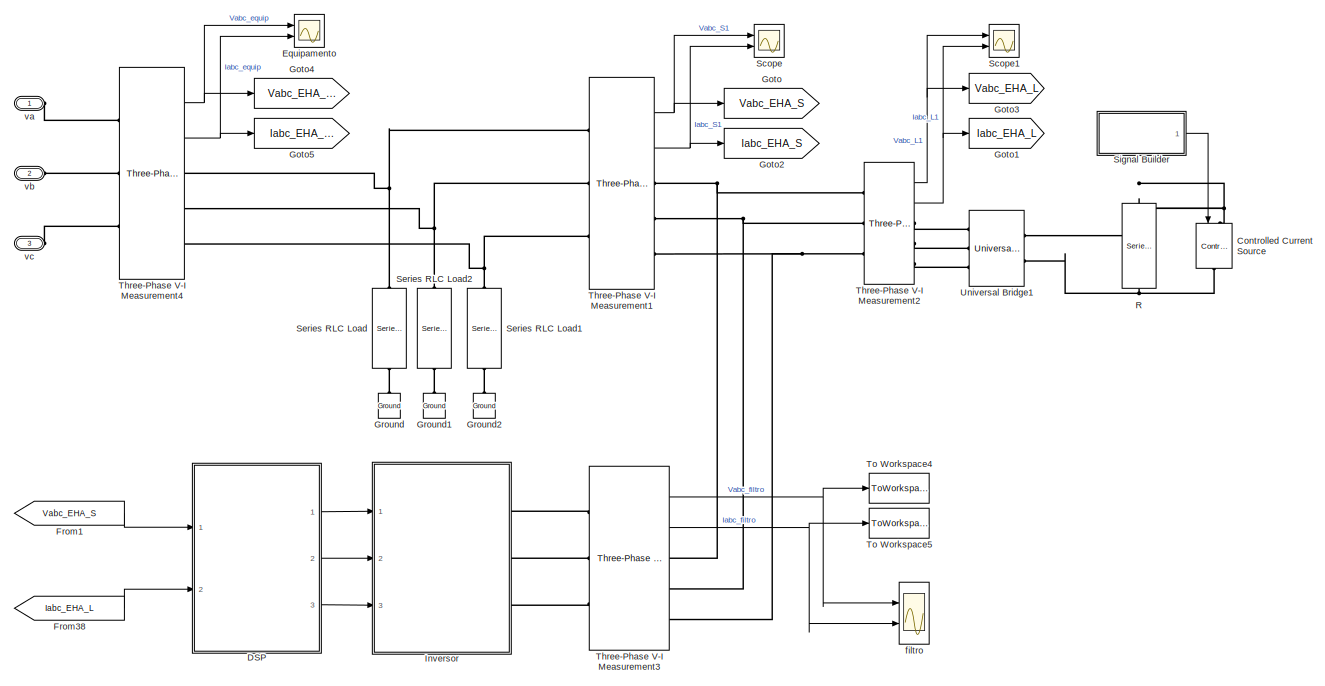
[diagram: EHA1 - part 1/2, full width, top band]
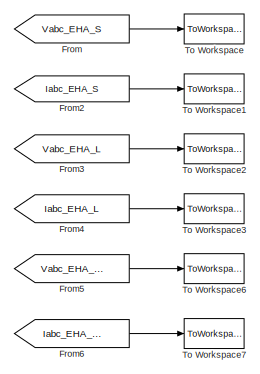
[diagram: EHA1 - part 2/2, bottom left region]
BLOCK [SubSystem] EHA1
  Ports = [0, 0, 0, 0, 0, 3]
  RequestExecContextInheritance = off
  Variant = off
BLOCK [Reference] EHA1/Controlled Current Source  REF=powerlib/Electrical
Sources/Controlled Current Source
  Ports = [1, 0, 0, 0, 0, 1, 1]
  SourceBlock = powerlib/Electrical\nSources/Controlled Current Source
  SourceType = Controlled Current Source
BLOCK [SubSystem] EHA1/DSP
  Ports = [2, 3]
  RequestExecContextInheritance = off
  Variant = off
BLOCK [SubSystem] EHA1/DSP/Calculo de potência Instantânea
  Ports = [4, 2]
  RequestExecContextInheritance = off
  Variant = off
BLOCK [Fcn] EHA1/DSP/Calculo de potência Instantânea/Fcn5
  Expr = u(1)*u(3)+u(2)*u(4)
BLOCK [Fcn] EHA1/DSP/Calculo de potência Instantânea/Fcn6
  Expr = u(2)*u(3)-u(1)*u(4)
BLOCK [Inport] EHA1/DSP/Calculo de potência Instantânea/Ialpha'
  IconDisplay = Port number
BLOCK [Inport] EHA1/DSP/Calculo de potência Instantânea/Ibeta'
  IconDisplay = Port number
  Port = 2
BLOCK [Reference] EHA1/DSP/Calculo de potência Instantânea/LPF  REF=dsparch4/Analog
Filter Design
  Ports = [1, 1]
  SourceBlock = dsparch4/Analog\nFilter Design
  SourceType = Analog Filter Design
BLOCK [Reference] EHA1/DSP/Calculo de potência Instantânea/LPF1  REF=dsparch4/Analog
Filter Design
  Ports = [1, 1]
  SourceBlock = dsparch4/Analog\nFilter Design
  SourceType = Analog Filter Design
BLOCK [Mux] EHA1/DSP/Calculo de potência Instantânea/Mux2
  DisplayOption = bar
  Ports = [4, 1]
BLOCK [Outport] EHA1/DSP/Calculo de potência Instantânea/pbarra'
  IconDisplay = Port number
BLOCK [Outport] EHA1/DSP/Calculo de potência Instantânea/qbarra'
  IconDisplay = Port number
  Port = 2
BLOCK [Inport] EHA1/DSP/Calculo de potência Instantânea/valpha
  IconDisplay = Port number
  Port = 3
BLOCK [Inport] EHA1/DSP/Calculo de potência Instantânea/vbeta
  IconDisplay = Port number
  Port = 4
BLOCK [SubSystem] EHA1/DSP/Cálculo de tensões alpha-beta
  Ports = [4, 2]
  RequestExecContextInheritance = off
  Variant = off
BLOCK [Sum] EHA1/DSP/Cálculo de tensões alpha-beta/Add8
  InputSameDT = off
  OutDataTypeStr = Inherit: Inherit via internal rule
  Ports = [2, 1]
  SaturateOnIntegerOverflow = off
BLOCK [Product] EHA1/DSP/Cálculo de tensões alpha-beta/Divide5
  InputSameDT = off
  Inputs = **
  OutDataTypeStr = Inherit: Inherit via internal rule
  Ports = [2, 1]
  RndMeth = Floor
  SaturateOnIntegerOverflow = off
BLOCK [Product] EHA1/DSP/Cálculo de tensões alpha-beta/Divide6
  InputSameDT = off
  Inputs = **
  OutDataTypeStr = Inherit: Inherit via internal rule
  Ports = [2, 1]
  RndMeth = Floor
  SaturateOnIntegerOverflow = off
BLOCK [Product] EHA1/DSP/Cálculo de tensões alpha-beta/Divide8
  InputSameDT = off
  Inputs = */
  OutDataTypeStr = Inherit: Inherit via internal rule
  Ports = [2, 1]
  RndMeth = Floor
  SaturateOnIntegerOverflow = off
BLOCK [Product] EHA1/DSP/Cálculo de tensões alpha-beta/Divide9
  InputSameDT = off
  Inputs = */
  OutDataTypeStr = Inherit: Inherit via internal rule
  Ports = [2, 1]
  RndMeth = Floor
  SaturateOnIntegerOverflow = off
BLOCK [Fcn] EHA1/DSP/Cálculo de tensões alpha-beta/Fcn7
  Expr = u(3)*u(1)-u(4)*u(2)
BLOCK [Fcn] EHA1/DSP/Cálculo de tensões alpha-beta/Fcn8
  Expr = u(4)*u(1)+u(3)*u(2)
BLOCK [Gain] EHA1/DSP/Cálculo de tensões alpha-beta/Gain8
  OutDataTypeStr = Inherit: Inherit via internal rule
  ParamDataTypeStr = Inherit: Inherit via internal rule
  SaturateOnIntegerOverflow = off
BLOCK [Gain] EHA1/DSP/Cálculo de tensões alpha-beta/Gain9
  OutDataTypeStr = Inherit: Inherit via internal rule
  ParamDataTypeStr = Inherit: Inherit via internal rule
  SaturateOnIntegerOverflow = off
BLOCK [Inport] EHA1/DSP/Cálculo de tensões alpha-beta/Ialpha'
  IconDisplay = Port number
BLOCK [Inport] EHA1/DSP/Cálculo de tensões alpha-beta/Ibeta'
  IconDisplay = Port number
  Port = 2
BLOCK [Mux] EHA1/DSP/Cálculo de tensões alpha-beta/Mux6
  DisplayOption = bar
  Ports = [4, 1]
BLOCK [Inport] EHA1/DSP/Cálculo de tensões alpha-beta/pbarra'
  IconDisplay = Port number
  Port = 3
BLOCK [Inport] EHA1/DSP/Cálculo de tensões alpha-beta/qbarra'
  IconDisplay = Port number
  Port = 4
BLOCK [Outport] EHA1/DSP/Cálculo de tensões alpha-beta/valpha'
  IconDisplay = Port number
BLOCK [Outport] EHA1/DSP/Cálculo de tensões alpha-beta/vbeta'
  IconDisplay = Port number
  Port = 2
BLOCK [Demux] EHA1/DSP/Demux5
  DisplayOption = bar
  Outputs = 3
  Ports = [1, 3]
BLOCK [From] EHA1/DSP/From39
  GotoTag = valinha
BLOCK [From] EHA1/DSP/From40
  GotoTag = vblinha
BLOCK [From] EHA1/DSP/From41
  GotoTag = vclinha
BLOCK [Goto] EHA1/DSP/Goto29
  GotoTag = valinha
BLOCK [Goto] EHA1/DSP/Goto30
  GotoTag = vblinha
BLOCK [Goto] EHA1/DSP/Goto31
  GotoTag = vclinha
BLOCK [Outport] EHA1/DSP/Ia_C*
  IconDisplay = Port number
BLOCK [Inport] EHA1/DSP/Iabc_Carga
  IconDisplay = Port number
  Port = 2
BLOCK [Outport] EHA1/DSP/Ib_C*
  IconDisplay = Port number
  Port = 2
BLOCK [Outport] EHA1/DSP/Ic_C*
  IconDisplay = Port number
  Port = 3
BLOCK [Mux] EHA1/DSP/Mux
  DisplayOption = bar
  Inputs = 3
  Ports = [3, 1]
BLOCK [Mux] EHA1/DSP/Mux6
  DisplayOption = bar
  Inputs = 3
  Ports = [3, 1]
BLOCK [SubSystem] EHA1/DSP/PLL
  Ports = [3, 2]
  RequestExecContextInheritance = off
  Variant = off
BLOCK [Sum] EHA1/DSP/PLL/Add10
  InputSameDT = off
  OutDataTypeStr = Inherit: Inherit via internal rule
  Ports = [2, 1]
  SaturateOnIntegerOverflow = off
BLOCK [Sum] EHA1/DSP/PLL/Add3
  InputSameDT = off
  Inputs = +-
  OutDataTypeStr = Inherit: Inherit via internal rule
  Ports = [2, 1]
  SaturateOnIntegerOverflow = off
BLOCK [Sum] EHA1/DSP/PLL/Add4
  InputSameDT = off
  Inputs = +-
  OutDataTypeStr = Inherit: Inherit via internal rule
  Ports = [2, 1]
  SaturateOnIntegerOverflow = off
BLOCK [Fcn] EHA1/DSP/PLL/Fcn1
  Expr = sin(u(1))
BLOCK [Fcn] EHA1/DSP/PLL/Fcn2
  Expr = sin(u(1)+2*pi/3)
BLOCK [Fcn] EHA1/DSP/PLL/Fcn3
  Expr = sin(u(1)-pi/2)
BLOCK [Fcn] EHA1/DSP/PLL/Fcn4
  Expr = -cos(u(1)-pi/2)
BLOCK [Outport] EHA1/DSP/PLL/Ialpha'
  IconDisplay = Port number
BLOCK [Outport] EHA1/DSP/PLL/Ibeta'
  IconDisplay = Port number
  Port = 2
BLOCK [Integrator] EHA1/DSP/PLL/Integrator
  Ports = [1, 1]
BLOCK [Reference] EHA1/DSP/PLL/PID Controller  REF=simulink/Continuous/PID Controller
  Ports = [1, 1]
  SourceBlock = simulink/Continuous/PID Controller
  SourceType = PID 1dof
BLOCK [Product] EHA1/DSP/PLL/Product5
  InputSameDT = off
  OutDataTypeStr = Inherit: Inherit via internal rule
  Ports = [2, 1]
  RndMeth = Floor
  SaturateOnIntegerOverflow = off
BLOCK [Product] EHA1/DSP/PLL/Product6
  InputSameDT = off
  OutDataTypeStr = Inherit: Inherit via internal rule
  Ports = [2, 1]
  RndMeth = Floor
  SaturateOnIntegerOverflow = off
BLOCK [Inport] EHA1/DSP/PLL/Va
  IconDisplay = Port number
BLOCK [Inport] EHA1/DSP/PLL/Vb
  IconDisplay = Port number
  Port = 2
BLOCK [Inport] EHA1/DSP/PLL/Vc
  IconDisplay = Port number
  Port = 3
BLOCK [SubSystem] EHA1/DSP/Subsystem
  Ports = [2, 4]
  RequestExecContextInheritance = off
  Variant = off
BLOCK [Demux] EHA1/DSP/Subsystem/Demux
  DisplayOption = bar
  Outputs = 3
  Ports = [1, 3]
BLOCK [Demux] EHA1/DSP/Subsystem/Demux6
  DisplayOption = bar
  Outputs = 3
  Ports = [1, 3]
BLOCK [Gain] EHA1/DSP/Subsystem/Gain1
  Gain = sqrt(2/3)
  OutDataTypeStr = Inherit: Inherit via internal rule
  ParamDataTypeStr = Inherit: Inherit via internal rule
  SaturateOnIntegerOverflow = off
BLOCK [Gain] EHA1/DSP/Subsystem/Gain2
  Gain = sqrt(2/3)
  OutDataTypeStr = Inherit: Inherit via internal rule
  ParamDataTypeStr = Inherit: Inherit via internal rule
  SaturateOnIntegerOverflow = off
BLOCK [Gain] EHA1/DSP/Subsystem/Gain3
  Gain = [1/sqrt(2), 1/sqrt(2), 1/sqrt(2); 1, -1/2, -1/2; 0, sqrt(3)/2, -sqrt(3)/2]
  Multiplication = Matrix(K*u)
  OutDataTypeStr = Inherit: Inherit via internal rule
  ParamDataTypeStr = Inherit: Inherit via internal rule
  SaturateOnIntegerOverflow = off
BLOCK [Gain] EHA1/DSP/Subsystem/Gain4
  Gain = [1/sqrt(2), 1/sqrt(2), 1/sqrt(2); 1, -1/2, -1/2; 0, sqrt(3)/2, -sqrt(3)/2]
  Multiplication = Matrix(K*u)
  OutDataTypeStr = Inherit: Inherit via internal rule
  ParamDataTypeStr = Inherit: Inherit via internal rule
  SaturateOnIntegerOverflow = off
BLOCK [Inport] EHA1/DSP/Subsystem/Iabc_L
  IconDisplay = Port number
  Port = 2
BLOCK [Outport] EHA1/DSP/Subsystem/Ialpha
  IconDisplay = Port number
  Port = 3
BLOCK [Outport] EHA1/DSP/Subsystem/Ibeta
  IconDisplay = Port number
  Port = 4
BLOCK [Scope] EHA1/DSP/Subsystem/Scope15
  NumInputPorts = 2
  Ports = [2]
BLOCK [Terminator] EHA1/DSP/Subsystem/Terminator
BLOCK [Terminator] EHA1/DSP/Subsystem/Terminator1
BLOCK [Inport] EHA1/DSP/Subsystem/Vabc'
  IconDisplay = Port number
BLOCK [Outport] EHA1/DSP/Subsystem/Valpha'
  IconDisplay = Port number
BLOCK [Outport] EHA1/DSP/Subsystem/Vbeta'
  IconDisplay = Port number
  Port = 2
BLOCK [SubSystem] EHA1/DSP/Subsystem1
  Ports = [4, 2]
  RequestExecContextInheritance = off
  Variant = off
BLOCK [Sum] EHA1/DSP/Subsystem1/Add
  InputSameDT = off
  OutDataTypeStr = Inherit: Inherit via internal rule
  Ports = [2, 1]
  SaturateOnIntegerOverflow = off
BLOCK [Sum] EHA1/DSP/Subsystem1/Add10
  InputSameDT = off
  OutDataTypeStr = Inherit: Inherit via internal rule
  Ports = [2, 1]
  SaturateOnIntegerOverflow = off
BLOCK [Sum] EHA1/DSP/Subsystem1/Add3
  InputSameDT = off
  Inputs = +-
  OutDataTypeStr = Inherit: Inherit via internal rule
  Ports = [2, 1]
  SaturateOnIntegerOverflow = off
BLOCK [Sum] EHA1/DSP/Subsystem1/Add4
  InputSameDT = off
  Inputs = +-
  OutDataTypeStr = Inherit: Inherit via internal rule
  Ports = [2, 1]
  SaturateOnIntegerOverflow = off
BLOCK [From] EHA1/DSP/Subsystem1/From4
  GotoTag = Ploss1
  TagVisibility = global
BLOCK [Inport] EHA1/DSP/Subsystem1/Ialpha
  IconDisplay = Port number
  Port = 3
BLOCK [Inport] EHA1/DSP/Subsystem1/Ibeta
  IconDisplay = Port number
  Port = 4
BLOCK [Reference] EHA1/DSP/Subsystem1/LPF  REF=dsparch4/Analog
Filter Design
  Ports = [1, 1]
  SourceBlock = dsparch4/Analog\nFilter Design
  SourceType = Analog Filter Design
BLOCK [Mux] EHA1/DSP/Subsystem1/Mux
  DisplayOption = bar
  Inputs = 5
  Ports = [5, 1]
BLOCK [Outport] EHA1/DSP/Subsystem1/Posc
  IconDisplay = Port number
BLOCK [Product] EHA1/DSP/Subsystem1/Product5
  InputSameDT = off
  OutDataTypeStr = Inherit: Inherit via internal rule
  Ports = [2, 1]
  RndMeth = Floor
  SaturateOnIntegerOverflow = off
BLOCK [Product] EHA1/DSP/Subsystem1/Product6
  InputSameDT = off
  OutDataTypeStr = Inherit: Inherit via internal rule
  Ports = [2, 1]
  RndMeth = Floor
  SaturateOnIntegerOverflow = off
BLOCK [Product] EHA1/DSP/Subsystem1/Product7
  InputSameDT = off
  OutDataTypeStr = Inherit: Inherit via internal rule
  Ports = [2, 1]
  RndMeth = Floor
  SaturateOnIntegerOverflow = off
BLOCK [Product] EHA1/DSP/Subsystem1/Product8
  InputSameDT = off
  OutDataTypeStr = Inherit: Inherit via internal rule
  Ports = [2, 1]
  RndMeth = Floor
  SaturateOnIntegerOverflow = off
BLOCK [Scope] EHA1/DSP/Subsystem1/Scope18
  NumInputPorts = 5
  Ports = [5]
BLOCK [ToWorkspace] EHA1/DSP/Subsystem1/To Workspace
  FixptAsFi = on
  MaxDataPoints = inf
  Ports = [1]
  SampleTime = -1
  Save2DSignal = 3-D array (concatenate along third dimension)
  SaveFormat = Structure With Time
  VariableName = p1
BLOCK [ToWorkspace] EHA1/DSP/Subsystem1/To Workspace1
  FixptAsFi = on
  MaxDataPoints = inf
  Ports = [1]
  SampleTime = -1
  Save2DSignal = 3-D array (concatenate along third dimension)
  SaveFormat = Structure With Time
  VariableName = q1
BLOCK [Inport] EHA1/DSP/Subsystem1/Valpha'
  IconDisplay = Port number
BLOCK [Inport] EHA1/DSP/Subsystem1/Vbeta'
  IconDisplay = Port number
  Port = 2
BLOCK [Outport] EHA1/DSP/Subsystem1/q
  IconDisplay = Port number
  Port = 2
BLOCK [SubSystem] EHA1/DSP/Subsystem2
  Ports = [4, 2]
  RequestExecContextInheritance = off
  Variant = off
BLOCK [Sum] EHA1/DSP/Subsystem2/Add8
  InputSameDT = off
  OutDataTypeStr = Inherit: Inherit via internal rule
  Ports = [2, 1]
  SaturateOnIntegerOverflow = off
BLOCK [Sum] EHA1/DSP/Subsystem2/Add9
  InputSameDT = off
  Inputs = +-
  OutDataTypeStr = Inherit: Inherit via internal rule
  Ports = [2, 1]
  SaturateOnIntegerOverflow = off
BLOCK [Product] EHA1/DSP/Subsystem2/Divide1
  InputSameDT = off
  Inputs = ***
  OutDataTypeStr = Inherit: Inherit via internal rule
  Ports = [3, 1]
  RndMeth = Floor
  SaturateOnIntegerOverflow = off
BLOCK [Product] EHA1/DSP/Subsystem2/Divide2
  InputSameDT = off
  Inputs = ***
  OutDataTypeStr = Inherit: Inherit via internal rule
  Ports = [3, 1]
  RndMeth = Floor
  SaturateOnIntegerOverflow = off
BLOCK [Product] EHA1/DSP/Subsystem2/Divide3
  InputSameDT = off
  Inputs = ***
  OutDataTypeStr = Inherit: Inherit via internal rule
  Ports = [3, 1]
  RndMeth = Floor
  SaturateOnIntegerOverflow = off
BLOCK [Product] EHA1/DSP/Subsystem2/Divide4
  InputSameDT = off
  Inputs = ***
  OutDataTypeStr = Inherit: Inherit via internal rule
  Ports = [3, 1]
  RndMeth = Floor
  SaturateOnIntegerOverflow = off
BLOCK [Fcn] EHA1/DSP/Subsystem2/Fcn
  Expr = 1/(u(1)^2+u(2)^2)
BLOCK [Gain] EHA1/DSP/Subsystem2/Gain
  OutDataTypeStr = Inherit: Inherit via internal rule
  ParamDataTypeStr = Inherit: Inherit via internal rule
  SaturateOnIntegerOverflow = off
BLOCK [Gain] EHA1/DSP/Subsystem2/Gain5
  Gain = -1
  OutDataTypeStr = Inherit: Inherit via internal rule
  ParamDataTypeStr = Inherit: Inherit via internal rule
  SaturateOnIntegerOverflow = off
BLOCK [Outport] EHA1/DSP/Subsystem2/Ialpha_p
  IconDisplay = Port number
BLOCK [Outport] EHA1/DSP/Subsystem2/Ibeta_p
  IconDisplay = Port number
  Port = 2
BLOCK [Mux] EHA1/DSP/Subsystem2/Mux
  DisplayOption = bar
  Inputs = 2
  Ports = [2, 1]
BLOCK [Inport] EHA1/DSP/Subsystem2/Posc
  IconDisplay = Port number
  Port = 3
BLOCK [Scope] EHA1/DSP/Subsystem2/Scope20
  NumInputPorts = 2
  Ports = [2]
BLOCK [Inport] EHA1/DSP/Subsystem2/Valpha'
  IconDisplay = Port number
BLOCK [Inport] EHA1/DSP/Subsystem2/Vbeta'
  IconDisplay = Port number
  Port = 2
BLOCK [Inport] EHA1/DSP/Subsystem2/q
  IconDisplay = Port number
  Port = 4
BLOCK [SubSystem] EHA1/DSP/Subsystem3
  Ports = [2, 3]
  RequestExecContextInheritance = off
  Variant = off
BLOCK [Fcn] EHA1/DSP/Subsystem3/Fcn1
  Expr = sqrt(2/3)*u(1)
BLOCK [Fcn] EHA1/DSP/Subsystem3/Fcn2
  Expr = sqrt(2/3)*(-1/2*u(1)+sqrt(3)/2*u(2))
BLOCK [Fcn] EHA1/DSP/Subsystem3/Fcn3
  Expr = sqrt(2/3)*(-1/2*u(1)-sqrt(3)/2*u(2))
BLOCK [Outport] EHA1/DSP/Subsystem3/Ia_C
  IconDisplay = Port number
BLOCK [Inport] EHA1/DSP/Subsystem3/Ialpha_p
  IconDisplay = Port number
BLOCK [Outport] EHA1/DSP/Subsystem3/Ib_C
  IconDisplay = Port number
  Port = 2
BLOCK [Inport] EHA1/DSP/Subsystem3/Ibeta_p
  IconDisplay = Port number
  Port = 2
BLOCK [Outport] EHA1/DSP/Subsystem3/Ic_C
  IconDisplay = Port number
  Port = 3
BLOCK [Mux] EHA1/DSP/Subsystem3/Mux2
  DisplayOption = bar
  Inputs = 2
  Ports = [2, 1]
BLOCK [Mux] EHA1/DSP/Subsystem3/Mux3
  DisplayOption = bar
  Inputs = 2
  Ports = [2, 1]
BLOCK [Mux] EHA1/DSP/Subsystem3/Mux5
  DisplayOption = bar
  Inputs = 2
  Ports = [2, 1]
BLOCK [Scope] EHA1/DSP/Subsystem3/Scope14
  NumInputPorts = 3
  Ports = [3]
BLOCK [SubSystem] EHA1/DSP/TCT
  Ports = [3, 2]
  RequestExecContextInheritance = off
  Variant = off
BLOCK [Demux] EHA1/DSP/TCT/Demux7
  DisplayOption = bar
  Outputs = 3
  Ports = [1, 3]
BLOCK [Gain] EHA1/DSP/TCT/Gain1
  Gain = sqrt(2/3)
  OutDataTypeStr = Inherit: Inherit via internal rule
  ParamDataTypeStr = Inherit: Inherit via internal rule
  SaturateOnIntegerOverflow = off
BLOCK [Gain] EHA1/DSP/TCT/Gain3
  Gain = [1/sqrt(2), 1/sqrt(2), 1/sqrt(2); 1, -1/2, -1/2; 0, sqrt(3)/2, -sqrt(3)/2]
  Multiplication = Matrix(K*u)
  OutDataTypeStr = Inherit: Inherit via internal rule
  ParamDataTypeStr = Inherit: Inherit via internal rule
  SaturateOnIntegerOverflow = off
BLOCK [Mux] EHA1/DSP/TCT/Mux2
  DisplayOption = bar
  Inputs = 3
  Ports = [3, 1]
BLOCK [Inport] EHA1/DSP/TCT/Va
  IconDisplay = Port number
BLOCK [Inport] EHA1/DSP/TCT/Vb
  IconDisplay = Port number
  Port = 2
BLOCK [Inport] EHA1/DSP/TCT/Vc
  IconDisplay = Port number
  Port = 3
BLOCK [Outport] EHA1/DSP/TCT/valpha
  IconDisplay = Port number
BLOCK [Outport] EHA1/DSP/TCT/vbeta
  IconDisplay = Port number
  Port = 2
BLOCK [ToWorkspace] EHA1/DSP/To Workspace
  FixptAsFi = on
  MaxDataPoints = inf
  Ports = [1]
  SampleTime = -1
  Save2DSignal = 3-D array (concatenate along third dimension)
  SaveFormat = Structure With Time
  VariableName = Iref1
BLOCK [ToWorkspace] EHA1/DSP/To Workspace1
  FixptAsFi = on
  MaxDataPoints = inf
  Ports = [1]
  SampleTime = -1
  Save2DSignal = 3-D array (concatenate along third dimension)
  SaveFormat = Structure With Time
  VariableName = valinha
BLOCK [SubSystem] EHA1/DSP/Transformada Inversa de Clarke
  Ports = [2, 3]
  RequestExecContextInheritance = off
  Variant = off
BLOCK [Demux] EHA1/DSP/Transformada Inversa de Clarke/Demux6
  DisplayOption = bar
  Outputs = 3
  Ports = [1, 3]
BLOCK [Fcn] EHA1/DSP/Transformada Inversa de Clarke/Fcn10
  Expr = sqrt(2/3)*(-1/2*u(1)+sqrt(3)/2*u(2))
BLOCK [Fcn] EHA1/DSP/Transformada Inversa de Clarke/Fcn11
  Expr = sqrt(2/3)*(-1/2*u(1)-sqrt(3)/2*u(2))
BLOCK [Fcn] EHA1/DSP/Transformada Inversa de Clarke/Fcn9
  Expr = sqrt(2/3)*(u(1) + 0*u(2))
BLOCK [From] EHA1/DSP/Transformada Inversa de Clarke/From30
  GotoTag = Vabc_S
BLOCK [Mux] EHA1/DSP/Transformada Inversa de Clarke/Mux3
  DisplayOption = bar
  Inputs = 2
  Ports = [2, 1]
BLOCK [Mux] EHA1/DSP/Transformada Inversa de Clarke/Mux5
  DisplayOption = bar
  Inputs = 2
  Ports = [2, 1]
BLOCK [Mux] EHA1/DSP/Transformada Inversa de Clarke/Mux8
  DisplayOption = bar
  Inputs = 2
  Ports = [2, 1]
BLOCK [Mux] EHA1/DSP/Transformada Inversa de Clarke/Mux9
  DisplayOption = bar
  Inputs = 2
  Ports = [2, 1]
BLOCK [Scope] EHA1/DSP/Transformada Inversa de Clarke/Scope23
  NumInputPorts = 3
  Ports = [3]
BLOCK [Outport] EHA1/DSP/Transformada Inversa de Clarke/va'
  IconDisplay = Port number
BLOCK [Inport] EHA1/DSP/Transformada Inversa de Clarke/valpha'
  IconDisplay = Port number
BLOCK [Outport] EHA1/DSP/Transformada Inversa de Clarke/vb'
  IconDisplay = Port number
  Port = 2
BLOCK [Inport] EHA1/DSP/Transformada Inversa de Clarke/vbeta'
  IconDisplay = Port number
  Port = 2
BLOCK [Outport] EHA1/DSP/Transformada Inversa de Clarke/vc'
  IconDisplay = Port number
  Port = 3
BLOCK [Inport] EHA1/DSP/Vabc_Fonte
  IconDisplay = Port number
BLOCK [Scope] EHA1/Equipamento
  NumInputPorts = 2
  Ports = [2]
  ScopeSpecificationString = Simulink.scopes.TimeScopeBlockCfg('CurrentConfiguration', extmgr.ConfigurationSet(extmgr.Configuration('Core','General UI',true),extmgr.Configuration('Core','Source UI',true),extmgr.Configuration('Sources','WiredSimulink',true,'DataLoggingVariableName','ScopeData1','DataLoggingLimitDataPoints',true,'DataLoggingSaveFormat','Array','DataLoggingDecimation','1','DataLoggingDecimateData',true),extmgr.C...<+2479ch>
BLOCK [From] EHA1/From
  GotoTag = Vabc_EHA_S
BLOCK [From] EHA1/From1
  GotoTag = Vabc_EHA_S
BLOCK [From] EHA1/From2
  GotoTag = Iabc_EHA_S
BLOCK [From] EHA1/From3
  GotoTag = Vabc_EHA_L
BLOCK [From] EHA1/From38
  GotoTag = Iabc_EHA_L
BLOCK [From] EHA1/From4
  GotoTag = Iabc_EHA_L
BLOCK [From] EHA1/From5
  GotoTag = Vabc_EHA_equip
BLOCK [From] EHA1/From6
  GotoTag = Iabc_EHA_equip
BLOCK [Goto] EHA1/Goto
  GotoTag = Vabc_EHA_S
BLOCK [Goto] EHA1/Goto1
  GotoTag = Iabc_EHA_L
BLOCK [Goto] EHA1/Goto2
  GotoTag = Iabc_EHA_S
BLOCK [Goto] EHA1/Goto3
  GotoTag = Vabc_EHA_L
BLOCK [Goto] EHA1/Goto4
  GotoTag = Vabc_EHA_equip
BLOCK [Goto] EHA1/Goto5
  GotoTag = Iabc_EHA_equip
BLOCK [Reference] EHA1/Ground  REF=powerlib/Elements/Ground
  Ports = [0, 0, 0, 0, 0, 1]
  SourceBlock = powerlib/Elements/Ground
  SourceType = Ground
BLOCK [Reference] EHA1/Ground1  REF=powerlib/Elements/Ground
  Ports = [0, 0, 0, 0, 0, 1]
  SourceBlock = powerlib/Elements/Ground
  SourceType = Ground
BLOCK [Reference] EHA1/Ground2  REF=powerlib/Elements/Ground
  Ports = [0, 0, 0, 0, 0, 1]
  SourceBlock = powerlib/Elements/Ground
  SourceType = Ground
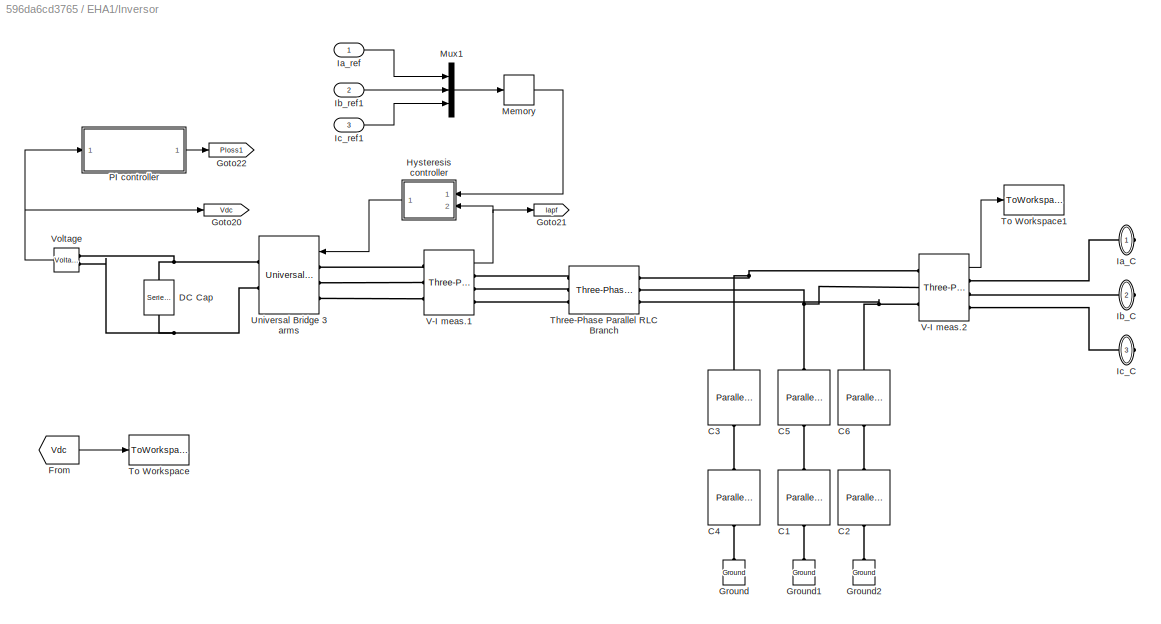
BLOCK [SubSystem] EHA1/Inversor
  Ports = [3, 0, 0, 0, 0, 0, 3]
  RequestExecContextInheritance = off
  Variant = off
BLOCK [Reference] EHA1/Inversor/C1  REF=powerlib/Elements/Parallel RLC Branch
  AttributesFormatString = \n
  Ports = [0, 0, 0, 0, 0, 1, 1]
  SourceBlock = powerlib/Elements/Parallel RLC Branch
  SourceType = Parallel RLC Branch
BLOCK [Reference] EHA1/Inversor/C2  REF=powerlib/Elements/Parallel RLC Branch
  AttributesFormatString = \n
  Ports = [0, 0, 0, 0, 0, 1, 1]
  SourceBlock = powerlib/Elements/Parallel RLC Branch
  SourceType = Parallel RLC Branch
BLOCK [Reference] EHA1/Inversor/C3  REF=powerlib/Elements/Parallel RLC Branch
  AttributesFormatString = \n
  Ports = [0, 0, 0, 0, 0, 1, 1]
  SourceBlock = powerlib/Elements/Parallel RLC Branch
  SourceType = Parallel RLC Branch
BLOCK [Reference] EHA1/Inversor/C4  REF=powerlib/Elements/Parallel RLC Branch
  AttributesFormatString = \n
  Ports = [0, 0, 0, 0, 0, 1, 1]
  SourceBlock = powerlib/Elements/Parallel RLC Branch
  SourceType = Parallel RLC Branch
BLOCK [Reference] EHA1/Inversor/C5  REF=powerlib/Elements/Parallel RLC Branch
  AttributesFormatString = \n
  Ports = [0, 0, 0, 0, 0, 1, 1]
  SourceBlock = powerlib/Elements/Parallel RLC Branch
  SourceType = Parallel RLC Branch
BLOCK [Reference] EHA1/Inversor/C6  REF=powerlib/Elements/Parallel RLC Branch
  AttributesFormatString = \n
  Ports = [0, 0, 0, 0, 0, 1, 1]
  SourceBlock = powerlib/Elements/Parallel RLC Branch
  SourceType = Parallel RLC Branch
BLOCK [Reference] EHA1/Inversor/DC Cap  REF=powerlib/Elements/Series RLC Branch
  Ports = [0, 0, 0, 0, 0, 1, 1]
  SourceBlock = powerlib/Elements/Series RLC Branch
  SourceType = Series RLC Branch
BLOCK [From] EHA1/Inversor/From
  GotoTag = Vdc
BLOCK [Goto] EHA1/Inversor/Goto20
  GotoTag = Vdc
BLOCK [Goto] EHA1/Inversor/Goto21
  GotoTag = Iapf
BLOCK [Goto] EHA1/Inversor/Goto22
  GotoTag = Ploss1
  TagVisibility = global
BLOCK [Reference] EHA1/Inversor/Ground  REF=powerlib/Elements/Ground
  Ports = [0, 0, 0, 0, 0, 1]
  SourceBlock = powerlib/Elements/Ground
  SourceType = Ground
BLOCK [Reference] EHA1/Inversor/Ground1  REF=powerlib/Elements/Ground
  Ports = [0, 0, 0, 0, 0, 1]
  SourceBlock = powerlib/Elements/Ground
  SourceType = Ground
BLOCK [Reference] EHA1/Inversor/Ground2  REF=powerlib/Elements/Ground
  Ports = [0, 0, 0, 0, 0, 1]
  SourceBlock = powerlib/Elements/Ground
  SourceType = Ground
BLOCK [SubSystem] EHA1/Inversor/Hysteresis controller
  Ports = [2, 1]
  RequestExecContextInheritance = off
  Variant = off
BLOCK [DataTypeConversion] EHA1/Inversor/Hysteresis controller/Data Type Conversion
  RndMeth = Floor
  SaturateOnIntegerOverflow = off
BLOCK [Demux] EHA1/Inversor/Hysteresis controller/Demux2
  DisplayOption = bar
  Outputs = 3
  Ports = [1, 3]
BLOCK [Demux] EHA1/Inversor/Hysteresis controller/Demux3
  DisplayOption = bar
  Outputs = 3
  Ports = [1, 3]
BLOCK [Inport] EHA1/Inversor/Hysteresis controller/I_meas
  IconDisplay = Port number
  Port = 2
BLOCK [Inport] EHA1/Inversor/Hysteresis controller/I_ref
  IconDisplay = Port number
BLOCK [Logic] EHA1/Inversor/Hysteresis controller/Logical Operator4
  AllPortsSameDT = off
  Operator = NOT
  OutDataTypeStr = boolean
  Ports = [1, 1]
BLOCK [Logic] EHA1/Inversor/Hysteresis controller/Logical Operator5
  AllPortsSameDT = off
  Operator = NOT
  OutDataTypeStr = boolean
  Ports = [1, 1]
BLOCK [Logic] EHA1/Inversor/Hysteresis controller/Logical Operator6
  AllPortsSameDT = off
  Operator = NOT
  OutDataTypeStr = boolean
  Ports = [1, 1]
BLOCK [Memory] EHA1/Inversor/Hysteresis controller/Memory
BLOCK [Memory] EHA1/Inversor/Hysteresis controller/Memory1
BLOCK [Mux] EHA1/Inversor/Hysteresis controller/Mux1
  DisplayOption = bar
  Inputs = 3
  Ports = [3, 1]
BLOCK [Mux] EHA1/Inversor/Hysteresis controller/Mux2
  DisplayOption = bar
  Inputs = 2
  Ports = [2, 1]
BLOCK [Mux] EHA1/Inversor/Hysteresis controller/Mux3
  DisplayOption = bar
  Inputs = 6
  Ports = [6, 1]
BLOCK [Relay] EHA1/Inversor/Hysteresis controller/Relay
  InputProcessing = Elements as channels (sample based)
  OffSwitchValue = -0.05
  OnSwitchValue = 0.05
  OutDataTypeStr = Inherit: Inherit via back propagation
BLOCK [Relay] EHA1/Inversor/Hysteresis controller/Relay1
  InputProcessing = Elements as channels (sample based)
  OffSwitchValue = -0.05
  OnSwitchValue = 0.05
  OutDataTypeStr = Inherit: Inherit via back propagation
BLOCK [Relay] EHA1/Inversor/Hysteresis controller/Relay2
  InputProcessing = Elements as channels (sample based)
  OffSwitchValue = -0.05
  OnSwitchValue = 0.05
  OutDataTypeStr = Inherit: Inherit via back propagation
BLOCK [Scope] EHA1/Inversor/Hysteresis controller/Scope1
  Ports = [1]
  ScopeSpecificationString = Simulink.scopes.TimeScopeBlockCfg('CurrentConfiguration', extmgr.ConfigurationSet(extmgr.Configuration('Core','General UI',true),extmgr.Configuration('Core','Source UI',true),extmgr.Configuration('Sources','WiredSimulink',true,'DataLoggingVariableName','ScopeData30','DataLoggingLimitDataPoints',true,'DataLoggingSaveFormat','Array','DataLoggingDecimation','1','DataLoggingDecimateData',true),extmgr....<+1753ch>
BLOCK [Scope] EHA1/Inversor/Hysteresis controller/Scope2
  Ports = [1]
  ScopeSpecificationString = Simulink.scopes.TimeScopeBlockCfg('CurrentConfiguration', extmgr.ConfigurationSet(extmgr.Configuration('Core','General UI',true),extmgr.Configuration('Core','Source UI',true),extmgr.Configuration('Sources','WiredSimulink',true,'DataLoggingVariableName','ScopeData6','DataLoggingLimitDataPoints',true,'DataLoggingSaveFormat','Array','DataLoggingDecimation','1','DataLoggingDecimateData',true),extmgr.C...<+1780ch>
BLOCK [Sum] EHA1/Inversor/Hysteresis controller/Sum
  IconShape = round
  InputSameDT = off
  Inputs = |+-
  OutDataTypeStr = Inherit: Inherit via internal rule
  Ports = [2, 1]
  SaturateOnIntegerOverflow = off
BLOCK [Sum] EHA1/Inversor/Hysteresis controller/Sum1
  IconShape = round
  InputSameDT = off
  Inputs = |+-
  OutDataTypeStr = Inherit: Inherit via internal rule
  Ports = [2, 1]
  SaturateOnIntegerOverflow = off
BLOCK [Sum] EHA1/Inversor/Hysteresis controller/Sum2
  IconShape = round
  InputSameDT = off
  Inputs = |+-
  OutDataTypeStr = Inherit: Inherit via internal rule
  Ports = [2, 1]
  SaturateOnIntegerOverflow = off
BLOCK [ToWorkspace] EHA1/Inversor/Hysteresis controller/To Workspace
  FixptAsFi = on
  MaxDataPoints = inf
  Ports = [1]
  SampleTime = -1
  Save2DSignal = 3-D array (concatenate along third dimension)
  SaveFormat = Structure With Time
  VariableName = hysteresis1
BLOCK [Outport] EHA1/Inversor/Hysteresis controller/g
  IconDisplay = Port number
BLOCK [PMIOPort] EHA1/Inversor/Ia_C
  Port = 1
  Side = Right
BLOCK [Inport] EHA1/Inversor/Ia_ref
  IconDisplay = Port number
BLOCK [PMIOPort] EHA1/Inversor/Ib_C
  Port = 2
  Side = Right
BLOCK [Inport] EHA1/Inversor/Ib_ref1
  IconDisplay = Port number
  Port = 2
BLOCK [PMIOPort] EHA1/Inversor/Ic_C
  Port = 3
  Side = Right
BLOCK [Inport] EHA1/Inversor/Ic_ref1
  IconDisplay = Port number
  Port = 3
BLOCK [Memory] EHA1/Inversor/Memory
BLOCK [Mux] EHA1/Inversor/Mux1
  DisplayOption = bar
  Inputs = 3
  Ports = [3, 1]
BLOCK [SubSystem] EHA1/Inversor/PI controller
  Ports = [1, 1]
  RequestExecContextInheritance = off
  Variant = off
BLOCK [Reference] EHA1/Inversor/PI controller/LPF  REF=dsparch4/Analog
Filter Design
  Ports = [1, 1]
  SourceBlock = dsparch4/Analog\nFilter Design
  SourceType = Analog Filter Design
BLOCK [Reference] EHA1/Inversor/PI controller/PID Controller  REF=simulink/Continuous/PID Controller
  Ports = [1, 1]
  SourceBlock = simulink/Continuous/PID Controller
  SourceType = PID 1dof
BLOCK [Outport] EHA1/Inversor/PI controller/Ploss
  IconDisplay = Port number
BLOCK [Scope] EHA1/Inversor/PI controller/Scope
  NumInputPorts = 3
  Ports = [3]
  ScopeSpecificationString = Simulink.scopes.TimeScopeBlockCfg('CurrentConfiguration', extmgr.ConfigurationSet(extmgr.Configuration('Core','General UI',true),extmgr.Configuration('Core','Source UI',true),extmgr.Configuration('Sources','WiredSimulink',true,'DataLoggingVariableName','ScopeData18','DataLoggingSaveFormat','StructureWithTime','DataLoggingLimitDataPoints',true,'DataLoggingDecimation','1','DataLoggingDecimateData',t...<+3029ch>
BLOCK [SubSystem] EHA1/Inversor/PI controller/Signal Builder1
  ClipboardFcn = sigbuilder_block('clipboard');
  CloseFcn = sigbuilder_block('close');
  ContinueFcn = sigbuilder_block('continue');
  CopyFcn = sigbuilder_block('copy');
  DeleteFcn = sigbuilder_block('delete');
  LoadFcn = sigbuilder_block('load');
  MaskHideContents = on
  ModelCloseFcn = sigbuilder_block('modelClose');
  NameChangeFcn = sigbuilder_block('namechange');
  OpenFcn = sigbuilder_block('open',[437.6 199.2 550.4 400 ]);
  PauseFcn = sigbuilder_block('pause');
  Ports = [0, 1]
  PreSaveFcn = sigbuilder_block('preSave');
  RequestExecContextInheritance = off
  StartFcn = sigbuilder_block('start');
  StopFcn = sigbuilder_block('stop');
  Tag = STV Subsys
  Variant = off
BLOCK [Demux] EHA1/Inversor/PI controller/Signal Builder1/Demux
  Outputs = 1
  Ports = [1, 1]
  Tag = STV Demux
BLOCK [FromWorkspace] EHA1/Inversor/PI controller/Signal Builder1/FromWs
  SampleTime = 0
  Tag = STV FromWs
  VariableName = tuvar
  ZeroCross = on
BLOCK [Outport] EHA1/Inversor/PI controller/Signal Builder1/Signal 1
  IconDisplay = Port number
  Tag = STV Outport
BLOCK [Sum] EHA1/Inversor/PI controller/Sum
  IconShape = round
  InputSameDT = off
  Inputs = |-+
  OutDataTypeStr = Inherit: Inherit via internal rule
  Ports = [2, 1]
  SaturateOnIntegerOverflow = off
BLOCK [Inport] EHA1/Inversor/PI controller/Vdc
  IconDisplay = Port number
BLOCK [Reference] EHA1/Inversor/Three-Phase Parallel RLC Branch  REF=powerlib/Elements/Three-Phase
Parallel RLC Branch
  AttributesFormatString = \n
  Ports = [0, 0, 0, 0, 0, 3, 3]
  SourceBlock = powerlib/Elements/Three-Phase\nParallel RLC Branch
  SourceType = Three-Phase Parallel RLC Branch
BLOCK [ToWorkspace] EHA1/Inversor/To Workspace
  FixptAsFi = on
  MaxDataPoints = inf
  Ports = [1]
  SampleTime = -1
  Save2DSignal = 3-D array (concatenate along third dimension)
  SaveFormat = Structure With Time
  VariableName = Vdc1
BLOCK [ToWorkspace] EHA1/Inversor/To Workspace1
  FixptAsFi = on
  MaxDataPoints = inf
  Ports = [1]
  SampleTime = -1
  Save2DSignal = 3-D array (concatenate along third dimension)
  SaveFormat = Structure With Time
  VariableName = Ic1
BLOCK [Reference] EHA1/Inversor/Universal Bridge 3 arms  REF=powerlib/Power
Electronics/Universal Bridge
  AttributesFormatString = \n
  Ports = [1, 0, 0, 0, 0, 3, 2]
  SourceBlock = powerlib/Power\nElectronics/Universal Bridge
  SourceType = Universal Bridge
BLOCK [Reference] EHA1/Inversor/V-I meas.1  REF=powerlib/Measurements/Three-Phase
V-I Measurement
  Ports = [0, 1, 0, 0, 0, 3, 3]
  SourceBlock = powerlib/Measurements/Three-Phase\nV-I Measurement
  SourceType = Three-Phase VI Measurement
BLOCK [Reference] EHA1/Inversor/V-I meas.2  REF=powerlib/Measurements/Three-Phase
V-I Measurement
  Ports = [0, 1, 0, 0, 0, 3, 3]
  SourceBlock = powerlib/Measurements/Three-Phase\nV-I Measurement
  SourceType = Three-Phase VI Measurement
BLOCK [Reference] EHA1/Inversor/Voltage  REF=powerlib/Measurements/Voltage Measurement
  Ports = [0, 1, 0, 0, 0, 2]
  SourceBlock = powerlib/Measurements/Voltage Measurement
  SourceType = Voltage Measurement
BLOCK [Reference] EHA1/R  REF=powerlib/Elements/Series RLC Branch
  Ports = [0, 0, 0, 0, 0, 1, 1]
  SourceBlock = powerlib/Elements/Series RLC Branch
  SourceType = Series RLC Branch
BLOCK [Scope] EHA1/Scope
  NumInputPorts = 2
  Ports = [2]
  ScopeSpecificationString = Simulink.scopes.TimeScopeBlockCfg('CurrentConfiguration', extmgr.ConfigurationSet(extmgr.Configuration('Core','General UI',true),extmgr.Configuration('Core','Source UI',true),extmgr.Configuration('Sources','WiredSimulink',true,'DataLoggingVariableName','ScopeData2','DataLoggingLimitDataPoints',true,'DataLoggingSaveFormat','Array','DataLoggingDecimation','1','DataLoggingDecimateData',true),extmgr.C...<+2463ch>
BLOCK [Scope] EHA1/Scope1
  NumInputPorts = 2
  Ports = [2]
  ScopeSpecificationString = Simulink.scopes.TimeScopeBlockCfg('CurrentConfiguration', extmgr.ConfigurationSet(extmgr.Configuration('Core','General UI',true),extmgr.Configuration('Core','Source UI',true),extmgr.Configuration('Sources','WiredSimulink',true,'DataLoggingVariableName','ScopeData8','DataLoggingLimitDataPoints',true,'DataLoggingSaveFormat','Array','DataLoggingDecimation','1','DataLoggingDecimateData',true),extmgr.C...<+2460ch>
BLOCK [Reference] EHA1/Series RLC Load  REF=powerlib/Elements/Series RLC Load
  AttributesFormatString = \n
  Ports = [0, 0, 0, 0, 0, 1, 1]
  SourceBlock = powerlib/Elements/Series RLC Load
  SourceType = Series RLC Load
BLOCK [Reference] EHA1/Series RLC Load1  REF=powerlib/Elements/Series RLC Load
  AttributesFormatString = \n
  Ports = [0, 0, 0, 0, 0, 1, 1]
  SourceBlock = powerlib/Elements/Series RLC Load
  SourceType = Series RLC Load
BLOCK [Reference] EHA1/Series RLC Load2  REF=powerlib/Elements/Series RLC Load
  AttributesFormatString = \n
  Ports = [0, 0, 0, 0, 0, 1, 1]
  SourceBlock = powerlib/Elements/Series RLC Load
  SourceType = Series RLC Load
BLOCK [SubSystem] EHA1/Signal Builder
  ClipboardFcn = sigbuilder_block('clipboard');
  CloseFcn = sigbuilder_block('close');
  ContinueFcn = sigbuilder_block('continue');
  CopyFcn = sigbuilder_block('copy');
  DeleteFcn = sigbuilder_block('delete');
  LoadFcn = sigbuilder_block('load');
  MaskHideContents = on
  ModelCloseFcn = sigbuilder_block('modelClose');
  NameChangeFcn = sigbuilder_block('namechange');
  OpenFcn = sigbuilder_block('open',[437.6 199.2 550.4 400 ]);
  PauseFcn = sigbuilder_block('pause');
  Ports = [0, 1]
  PreSaveFcn = sigbuilder_block('preSave');
  RequestExecContextInheritance = off
  StartFcn = sigbuilder_block('start');
  StopFcn = sigbuilder_block('stop');
  Tag = STV Subsys
  Variant = off
BLOCK [Demux] EHA1/Signal Builder/Demux
  Outputs = 1
  Ports = [1, 1]
  Tag = STV Demux
BLOCK [FromWorkspace] EHA1/Signal Builder/FromWs
  SampleTime = 0
  Tag = STV FromWs
  VariableName = tuvar
  ZeroCross = on
BLOCK [Outport] EHA1/Signal Builder/var
  IconDisplay = Port number
BLOCK [Reference] EHA1/Three-Phase V-I Measurement1  REF=powerlib/Measurements/Three-Phase
V-I Measurement
  Ports = [0, 2, 0, 0, 0, 3, 3]
  SourceBlock = powerlib/Measurements/Three-Phase\nV-I Measurement
  SourceType = Three-Phase VI Measurement
BLOCK [Reference] EHA1/Three-Phase V-I Measurement2  REF=powerlib/Measurements/Three-Phase
V-I Measurement
  Ports = [0, 2, 0, 0, 0, 3, 3]
  SourceBlock = powerlib/Measurements/Three-Phase\nV-I Measurement
  SourceType = Three-Phase VI Measurement
BLOCK [Reference] EHA1/Three-Phase V-I Measurement3  REF=powerlib/Measurements/Three-Phase
V-I Measurement
  Ports = [0, 2, 0, 0, 0, 3, 3]
  SourceBlock = powerlib/Measurements/Three-Phase\nV-I Measurement
  SourceType = Three-Phase VI Measurement
BLOCK [Reference] EHA1/Three-Phase V-I Measurement4  REF=powerlib/Measurements/Three-Phase
V-I Measurement
  Ports = [0, 2, 0, 0, 0, 3, 3]
  SourceBlock = powerlib/Measurements/Three-Phase\nV-I Measurement
  SourceType = Three-Phase VI Measurement
BLOCK [ToWorkspace] EHA1/To Workspace
  FixptAsFi = on
  MaxDataPoints = inf
  Ports = [1]
  SampleTime = -1
  Save2DSignal = 3-D array (concatenate along third dimension)
  SaveFormat = Structure With Time
  VariableName = Vabc_S
BLOCK [ToWorkspace] EHA1/To Workspace1
  FixptAsFi = on
  MaxDataPoints = inf
  Ports = [1]
  SampleTime = -1
  Save2DSignal = 3-D array (concatenate along third dimension)
  SaveFormat = Structure With Time
  VariableName = Iabc_S
BLOCK [ToWorkspace] EHA1/To Workspace2
  FixptAsFi = on
  MaxDataPoints = inf
  Ports = [1]
  SampleTime = -1
  Save2DSignal = 3-D array (concatenate along third dimension)
  SaveFormat = Structure With Time
  VariableName = Vabc_L
BLOCK [ToWorkspace] EHA1/To Workspace3
  FixptAsFi = on
  MaxDataPoints = inf
  Ports = [1]
  SampleTime = -1
  Save2DSignal = 3-D array (concatenate along third dimension)
  SaveFormat = Structure With Time
  VariableName = Iabc_L
BLOCK [ToWorkspace] EHA1/To Workspace4
  FixptAsFi = on
  MaxDataPoints = inf
  Ports = [1]
  SampleTime = -1
  Save2DSignal = 3-D array (concatenate along third dimension)
  SaveFormat = Structure With Time
  VariableName = Vabc_filtro
BLOCK [ToWorkspace] EHA1/To Workspace5
  FixptAsFi = on
  MaxDataPoints = inf
  Ports = [1]
  SampleTime = -1
  Save2DSignal = 3-D array (concatenate along third dimension)
  SaveFormat = Structure With Time
  VariableName = Iabc_filtro
BLOCK [ToWorkspace] EHA1/To Workspace6
  FixptAsFi = on
  MaxDataPoints = inf
  Ports = [1]
  SampleTime = -1
  Save2DSignal = 3-D array (concatenate along third dimension)
  SaveFormat = Structure With Time
  VariableName = Vabc_equip
BLOCK [ToWorkspace] EHA1/To Workspace7
  FixptAsFi = on
  MaxDataPoints = inf
  Ports = [1]
  SampleTime = -1
  Save2DSignal = 3-D array (concatenate along third dimension)
  SaveFormat = Structure With Time
  VariableName = Iabc_equip
BLOCK [Reference] EHA1/Universal Bridge1  REF=powerlib/Power
Electronics/Universal Bridge
  Ports = [0, 0, 0, 0, 0, 3, 2]
  SourceBlock = powerlib/Power\nElectronics/Universal Bridge
  SourceType = Universal Bridge
BLOCK [Scope] EHA1/filtro
  NumInputPorts = 2
  Ports = [2]
  ScopeSpecificationString = Simulink.scopes.TimeScopeBlockCfg('CurrentConfiguration', extmgr.ConfigurationSet(extmgr.Configuration('Core','General UI',true),extmgr.Configuration('Core','Source UI',true),extmgr.Configuration('Sources','WiredSimulink',true,'DataLogging',true,'DataLoggingVariableName','ScopeData3','DataLoggingSaveFormat','StructureWithTime','DataLoggingLimitDataPoints',true,'DataLoggingDecimation','1','DataLogg...<+2441ch>
BLOCK [PMIOPort] EHA1/va
  Port = 1
  Side = Left
BLOCK [PMIOPort] EHA1/vb
  Port = 2
  Side = Left
BLOCK [PMIOPort] EHA1/vc
  Port = 3
  Side = Left
BLOCK [SubSystem] EHA2
  Ports = [0, 0, 0, 0, 0, 3]
  RequestExecContextInheritance = off
  Variant = off
BLOCK [Reference] EHA2/Controlled Current Source  REF=powerlib/Electrical
Sources/Controlled Current Source
  Ports = [1, 0, 0, 0, 0, 1, 1]
  SourceBlock = powerlib/Electrical\nSources/Controlled Current Source
  SourceType = Controlled Current Source
BLOCK [SubSystem] EHA2/DSP
  Ports = [2, 3]
  RequestExecContextInheritance = off
  Variant = off
BLOCK [SubSystem] EHA2/DSP/Calculo de potência Instantânea
  Ports = [4, 2]
  RequestExecContextInheritance = off
  Variant = off
BLOCK [Fcn] EHA2/DSP/Calculo de potência Instantânea/Fcn5
  Expr = u(1)*u(3)+u(2)*u(4)
BLOCK [Fcn] EHA2/DSP/Calculo de potência Instantânea/Fcn6
  Expr = u(2)*u(3)-u(1)*u(4)
BLOCK [Inport] EHA2/DSP/Calculo de potência Instantânea/Ialpha'
  IconDisplay = Port number
BLOCK [Inport] EHA2/DSP/Calculo de potência Instantânea/Ibeta'
  IconDisplay = Port number
  Port = 2
BLOCK [Reference] EHA2/DSP/Calculo de potência Instantânea/LPF  REF=dsparch4/Analog
Filter Design
  Ports = [1, 1]
  SourceBlock = dsparch4/Analog\nFilter Design
  SourceType = Analog Filter Design
BLOCK [Reference] EHA2/DSP/Calculo de potência Instantânea/LPF1  REF=dsparch4/Analog
Filter Design
  Ports = [1, 1]
  SourceBlock = dsparch4/Analog\nFilter Design
  SourceType = Analog Filter Design
BLOCK [Mux] EHA2/DSP/Calculo de potência Instantânea/Mux2
  DisplayOption = bar
  Ports = [4, 1]
BLOCK [Outport] EHA2/DSP/Calculo de potência Instantânea/pbarra'
  IconDisplay = Port number
BLOCK [Outport] EHA2/DSP/Calculo de potência Instantânea/qbarra'
  IconDisplay = Port number
  Port = 2
BLOCK [Inport] EHA2/DSP/Calculo de potência Instantânea/valpha
  IconDisplay = Port number
  Port = 3
BLOCK [Inport] EHA2/DSP/Calculo de potência Instantânea/vbeta
  IconDisplay = Port number
  Port = 4
BLOCK [SubSystem] EHA2/DSP/Cálculo de tensões alpha-beta
  Ports = [4, 2]
  RequestExecContextInheritance = off
  Variant = off
BLOCK [Sum] EHA2/DSP/Cálculo de tensões alpha-beta/Add8
  InputSameDT = off
  OutDataTypeStr = Inherit: Inherit via internal rule
  Ports = [2, 1]
  SaturateOnIntegerOverflow = off
BLOCK [Product] EHA2/DSP/Cálculo de tensões alpha-beta/Divide5
  InputSameDT = off
  Inputs = **
  OutDataTypeStr = Inherit: Inherit via internal rule
  Ports = [2, 1]
  RndMeth = Floor
  SaturateOnIntegerOverflow = off
BLOCK [Product] EHA2/DSP/Cálculo de tensões alpha-beta/Divide6
  InputSameDT = off
  Inputs = **
  OutDataTypeStr = Inherit: Inherit via internal rule
  Ports = [2, 1]
  RndMeth = Floor
  SaturateOnIntegerOverflow = off
BLOCK [Product] EHA2/DSP/Cálculo de tensões alpha-beta/Divide8
  InputSameDT = off
  Inputs = */
  OutDataTypeStr = Inherit: Inherit via internal rule
  Ports = [2, 1]
  RndMeth = Floor
  SaturateOnIntegerOverflow = off
BLOCK [Product] EHA2/DSP/Cálculo de tensões alpha-beta/Divide9
  InputSameDT = off
  Inputs = */
  OutDataTypeStr = Inherit: Inherit via internal rule
  Ports = [2, 1]
  RndMeth = Floor
  SaturateOnIntegerOverflow = off
BLOCK [Fcn] EHA2/DSP/Cálculo de tensões alpha-beta/Fcn7
  Expr = u(3)*u(1)-u(4)*u(2)
BLOCK [Fcn] EHA2/DSP/Cálculo de tensões alpha-beta/Fcn8
  Expr = u(4)*u(1)+u(3)*u(2)
BLOCK [Gain] EHA2/DSP/Cálculo de tensões alpha-beta/Gain8
  OutDataTypeStr = Inherit: Inherit via internal rule
  ParamDataTypeStr = Inherit: Inherit via internal rule
  SaturateOnIntegerOverflow = off
BLOCK [Gain] EHA2/DSP/Cálculo de tensões alpha-beta/Gain9
  OutDataTypeStr = Inherit: Inherit via internal rule
  ParamDataTypeStr = Inherit: Inherit via internal rule
  SaturateOnIntegerOverflow = off
BLOCK [Inport] EHA2/DSP/Cálculo de tensões alpha-beta/Ialpha'
  IconDisplay = Port number
BLOCK [Inport] EHA2/DSP/Cálculo de tensões alpha-beta/Ibeta'
  IconDisplay = Port number
  Port = 2
BLOCK [Mux] EHA2/DSP/Cálculo de tensões alpha-beta/Mux6
  DisplayOption = bar
  Ports = [4, 1]
BLOCK [Inport] EHA2/DSP/Cálculo de tensões alpha-beta/pbarra'
  IconDisplay = Port number
  Port = 3
BLOCK [Inport] EHA2/DSP/Cálculo de tensões alpha-beta/qbarra'
  IconDisplay = Port number
  Port = 4
BLOCK [Outport] EHA2/DSP/Cálculo de tensões alpha-beta/valpha'
  IconDisplay = Port number
BLOCK [Outport] EHA2/DSP/Cálculo de tensões alpha-beta/vbeta'
  IconDisplay = Port number
  Port = 2
BLOCK [Demux] EHA2/DSP/Demux5
  DisplayOption = bar
  Outputs = 3
  Ports = [1, 3]
BLOCK [From] EHA2/DSP/From39
  GotoTag = valinha
BLOCK [From] EHA2/DSP/From40
  GotoTag = vblinha
BLOCK [From] EHA2/DSP/From41
  GotoTag = vclinha
BLOCK [Goto] EHA2/DSP/Goto29
  GotoTag = valinha
BLOCK [Goto] EHA2/DSP/Goto30
  GotoTag = vblinha
BLOCK [Goto] EHA2/DSP/Goto31
  GotoTag = vclinha
BLOCK [Outport] EHA2/DSP/Ia_C*
  IconDisplay = Port number
BLOCK [Inport] EHA2/DSP/Iabc_Carga
  IconDisplay = Port number
  Port = 2
BLOCK [Outport] EHA2/DSP/Ib_C*
  IconDisplay = Port number
  Port = 2
BLOCK [Outport] EHA2/DSP/Ic_C*
  IconDisplay = Port number
  Port = 3
BLOCK [Mux] EHA2/DSP/Mux6
  DisplayOption = bar
  Inputs = 3
  Ports = [3, 1]
BLOCK [SubSystem] EHA2/DSP/PLL
  Ports = [3, 2]
  RequestExecContextInheritance = off
  Variant = off
BLOCK [Sum] EHA2/DSP/PLL/Add10
  InputSameDT = off
  OutDataTypeStr = Inherit: Inherit via internal rule
  Ports = [2, 1]
  SaturateOnIntegerOverflow = off
BLOCK [Sum] EHA2/DSP/PLL/Add3
  InputSameDT = off
  Inputs = +-
  OutDataTypeStr = Inherit: Inherit via internal rule
  Ports = [2, 1]
  SaturateOnIntegerOverflow = off
BLOCK [Sum] EHA2/DSP/PLL/Add4
  InputSameDT = off
  Inputs = +-
  OutDataTypeStr = Inherit: Inherit via internal rule
  Ports = [2, 1]
  SaturateOnIntegerOverflow = off
BLOCK [Fcn] EHA2/DSP/PLL/Fcn1
  Expr = sin(u(1))
BLOCK [Fcn] EHA2/DSP/PLL/Fcn2
  Expr = sin(u(1)+2*pi/3)
BLOCK [Fcn] EHA2/DSP/PLL/Fcn3
  Expr = sin(u(1)-pi/2)
BLOCK [Fcn] EHA2/DSP/PLL/Fcn4
  Expr = -cos(u(1)-pi/2)
BLOCK [Outport] EHA2/DSP/PLL/Ialpha'
  IconDisplay = Port number
BLOCK [Outport] EHA2/DSP/PLL/Ibeta'
  IconDisplay = Port number
  Port = 2
BLOCK [Integrator] EHA2/DSP/PLL/Integrator
  Ports = [1, 1]
BLOCK [Reference] EHA2/DSP/PLL/PID Controller  REF=simulink/Continuous/PID Controller
  Ports = [1, 1]
  SourceBlock = simulink/Continuous/PID Controller
  SourceType = PID 1dof
BLOCK [Product] EHA2/DSP/PLL/Product5
  InputSameDT = off
  OutDataTypeStr = Inherit: Inherit via internal rule
  Ports = [2, 1]
  RndMeth = Floor
  SaturateOnIntegerOverflow = off
BLOCK [Product] EHA2/DSP/PLL/Product6
  InputSameDT = off
  OutDataTypeStr = Inherit: Inherit via internal rule
  Ports = [2, 1]
  RndMeth = Floor
  SaturateOnIntegerOverflow = off
BLOCK [Inport] EHA2/DSP/PLL/Va
  IconDisplay = Port number
BLOCK [Inport] EHA2/DSP/PLL/Vb
  IconDisplay = Port number
  Port = 2
BLOCK [Inport] EHA2/DSP/PLL/Vc
  IconDisplay = Port number
  Port = 3
BLOCK [SubSystem] EHA2/DSP/Subsystem
  Ports = [2, 4]
  RequestExecContextInheritance = off
  Variant = off
BLOCK [Demux] EHA2/DSP/Subsystem/Demux
  DisplayOption = bar
  Outputs = 3
  Ports = [1, 3]
BLOCK [Demux] EHA2/DSP/Subsystem/Demux6
  DisplayOption = bar
  Outputs = 3
  Ports = [1, 3]
BLOCK [Gain] EHA2/DSP/Subsystem/Gain1
  Gain = sqrt(2/3)
  OutDataTypeStr = Inherit: Inherit via internal rule
  ParamDataTypeStr = Inherit: Inherit via internal rule
  SaturateOnIntegerOverflow = off
BLOCK [Gain] EHA2/DSP/Subsystem/Gain2
  Gain = sqrt(2/3)
  OutDataTypeStr = Inherit: Inherit via internal rule
  ParamDataTypeStr = Inherit: Inherit via internal rule
  SaturateOnIntegerOverflow = off
BLOCK [Gain] EHA2/DSP/Subsystem/Gain3
  Gain = [1/sqrt(2), 1/sqrt(2), 1/sqrt(2); 1, -1/2, -1/2; 0, sqrt(3)/2, -sqrt(3)/2]
  Multiplication = Matrix(K*u)
  OutDataTypeStr = Inherit: Inherit via internal rule
  ParamDataTypeStr = Inherit: Inherit via internal rule
  SaturateOnIntegerOverflow = off
BLOCK [Gain] EHA2/DSP/Subsystem/Gain4
  Gain = [1/sqrt(2), 1/sqrt(2), 1/sqrt(2); 1, -1/2, -1/2; 0, sqrt(3)/2, -sqrt(3)/2]
  Multiplication = Matrix(K*u)
  OutDataTypeStr = Inherit: Inherit via internal rule
  ParamDataTypeStr = Inherit: Inherit via internal rule
  SaturateOnIntegerOverflow = off
BLOCK [Inport] EHA2/DSP/Subsystem/Iabc_L
  IconDisplay = Port number
  Port = 2
BLOCK [Outport] EHA2/DSP/Subsystem/Ialpha
  IconDisplay = Port number
  Port = 3
BLOCK [Outport] EHA2/DSP/Subsystem/Ibeta
  IconDisplay = Port number
  Port = 4
BLOCK [Scope] EHA2/DSP/Subsystem/Scope15
  NumInputPorts = 2
  Ports = [2]
BLOCK [Terminator] EHA2/DSP/Subsystem/Terminator
BLOCK [Terminator] EHA2/DSP/Subsystem/Terminator1
BLOCK [Inport] EHA2/DSP/Subsystem/Vabc'
  IconDisplay = Port number
BLOCK [Outport] EHA2/DSP/Subsystem/Valpha'
  IconDisplay = Port number
BLOCK [Outport] EHA2/DSP/Subsystem/Vbeta'
  IconDisplay = Port number
  Port = 2
BLOCK [SubSystem] EHA2/DSP/Subsystem1
  Ports = [4, 2]
  RequestExecContextInheritance = off
  Variant = off
BLOCK [Sum] EHA2/DSP/Subsystem1/Add
  InputSameDT = off
  OutDataTypeStr = Inherit: Inherit via internal rule
  Ports = [2, 1]
  SaturateOnIntegerOverflow = off
BLOCK [Sum] EHA2/DSP/Subsystem1/Add10
  InputSameDT = off
  OutDataTypeStr = Inherit: Inherit via internal rule
  Ports = [2, 1]
  SaturateOnIntegerOverflow = off
BLOCK [Sum] EHA2/DSP/Subsystem1/Add3
  InputSameDT = off
  Inputs = +-
  OutDataTypeStr = Inherit: Inherit via internal rule
  Ports = [2, 1]
  SaturateOnIntegerOverflow = off
BLOCK [Sum] EHA2/DSP/Subsystem1/Add4
  InputSameDT = off
  Inputs = +-
  OutDataTypeStr = Inherit: Inherit via internal rule
  Ports = [2, 1]
  SaturateOnIntegerOverflow = off
BLOCK [From] EHA2/DSP/Subsystem1/From4
  GotoTag = Ploss2
  TagVisibility = global
BLOCK [Inport] EHA2/DSP/Subsystem1/Ialpha
  IconDisplay = Port number
  Port = 3
BLOCK [Inport] EHA2/DSP/Subsystem1/Ibeta
  IconDisplay = Port number
  Port = 4
BLOCK [Reference] EHA2/DSP/Subsystem1/LPF  REF=dsparch4/Analog
Filter Design
  Ports = [1, 1]
  SourceBlock = dsparch4/Analog\nFilter Design
  SourceType = Analog Filter Design
BLOCK [Outport] EHA2/DSP/Subsystem1/Posc
  IconDisplay = Port number
BLOCK [Product] EHA2/DSP/Subsystem1/Product5
  InputSameDT = off
  OutDataTypeStr = Inherit: Inherit via internal rule
  Ports = [2, 1]
  RndMeth = Floor
  SaturateOnIntegerOverflow = off
BLOCK [Product] EHA2/DSP/Subsystem1/Product6
  InputSameDT = off
  OutDataTypeStr = Inherit: Inherit via internal rule
  Ports = [2, 1]
  RndMeth = Floor
  SaturateOnIntegerOverflow = off
BLOCK [Product] EHA2/DSP/Subsystem1/Product7
  InputSameDT = off
  OutDataTypeStr = Inherit: Inherit via internal rule
  Ports = [2, 1]
  RndMeth = Floor
  SaturateOnIntegerOverflow = off
BLOCK [Product] EHA2/DSP/Subsystem1/Product8
  InputSameDT = off
  OutDataTypeStr = Inherit: Inherit via internal rule
  Ports = [2, 1]
  RndMeth = Floor
  SaturateOnIntegerOverflow = off
BLOCK [Scope] EHA2/DSP/Subsystem1/Scope18
  NumInputPorts = 5
  Ports = [5]
BLOCK [Inport] EHA2/DSP/Subsystem1/Valpha'
  IconDisplay = Port number
BLOCK [Inport] EHA2/DSP/Subsystem1/Vbeta'
  IconDisplay = Port number
  Port = 2
BLOCK [Outport] EHA2/DSP/Subsystem1/q
  IconDisplay = Port number
  Port = 2
BLOCK [SubSystem] EHA2/DSP/Subsystem2
  Ports = [4, 2]
  RequestExecContextInheritance = off
  Variant = off
BLOCK [Sum] EHA2/DSP/Subsystem2/Add8
  InputSameDT = off
  OutDataTypeStr = Inherit: Inherit via internal rule
  Ports = [2, 1]
  SaturateOnIntegerOverflow = off
BLOCK [Sum] EHA2/DSP/Subsystem2/Add9
  InputSameDT = off
  Inputs = +-
  OutDataTypeStr = Inherit: Inherit via internal rule
  Ports = [2, 1]
  SaturateOnIntegerOverflow = off
BLOCK [Product] EHA2/DSP/Subsystem2/Divide1
  InputSameDT = off
  Inputs = ***
  OutDataTypeStr = Inherit: Inherit via internal rule
  Ports = [3, 1]
  RndMeth = Floor
  SaturateOnIntegerOverflow = off
BLOCK [Product] EHA2/DSP/Subsystem2/Divide2
  InputSameDT = off
  Inputs = ***
  OutDataTypeStr = Inherit: Inherit via internal rule
  Ports = [3, 1]
  RndMeth = Floor
  SaturateOnIntegerOverflow = off
BLOCK [Product] EHA2/DSP/Subsystem2/Divide3
  InputSameDT = off
  Inputs = ***
  OutDataTypeStr = Inherit: Inherit via internal rule
  Ports = [3, 1]
  RndMeth = Floor
  SaturateOnIntegerOverflow = off
BLOCK [Product] EHA2/DSP/Subsystem2/Divide4
  InputSameDT = off
  Inputs = ***
  OutDataTypeStr = Inherit: Inherit via internal rule
  Ports = [3, 1]
  RndMeth = Floor
  SaturateOnIntegerOverflow = off
BLOCK [Fcn] EHA2/DSP/Subsystem2/Fcn
  Expr = 1/(u(1)^2+u(2)^2)
BLOCK [Gain] EHA2/DSP/Subsystem2/Gain
  OutDataTypeStr = Inherit: Inherit via internal rule
  ParamDataTypeStr = Inherit: Inherit via internal rule
  SaturateOnIntegerOverflow = off
BLOCK [Gain] EHA2/DSP/Subsystem2/Gain5
  Gain = -1
  OutDataTypeStr = Inherit: Inherit via internal rule
  ParamDataTypeStr = Inherit: Inherit via internal rule
  SaturateOnIntegerOverflow = off
BLOCK [Outport] EHA2/DSP/Subsystem2/Ialpha_p
  IconDisplay = Port number
BLOCK [Outport] EHA2/DSP/Subsystem2/Ibeta_p
  IconDisplay = Port number
  Port = 2
BLOCK [Mux] EHA2/DSP/Subsystem2/Mux
  DisplayOption = bar
  Inputs = 2
  Ports = [2, 1]
BLOCK [Inport] EHA2/DSP/Subsystem2/Posc
  IconDisplay = Port number
  Port = 3
BLOCK [Scope] EHA2/DSP/Subsystem2/Scope20
  NumInputPorts = 2
  Ports = [2]
  ScopeSpecificationString = C++SS(StrPVP('Location','[938, 59, 1851, 1074]'),StrPVP('Open','off'),StrPVP('ZoomMode','xonly'),MxPVP('AxesTitles',24,'struct(''axes1'',''%<SignalLabel>'',''axes2'',''%<SignalLabel>'')'),MxPVP('ScopeGraphics',28,'struct(''FigureColor'',''[0.5 0.5 0.5]'',''AxesColor'',''[0 0 0]'',''AxesTickColor'',''[1 1 1]'',''LineColors'',''[1 1 0;1 0 1;0 1 1;1 0 0;0 1 0;0 0 1]'',''LineStyles'',''-|-|-|-|-|-'','...<+398ch>
BLOCK [Inport] EHA2/DSP/Subsystem2/Valpha'
  IconDisplay = Port number
BLOCK [Inport] EHA2/DSP/Subsystem2/Vbeta'
  IconDisplay = Port number
  Port = 2
BLOCK [Inport] EHA2/DSP/Subsystem2/q
  IconDisplay = Port number
  Port = 4
BLOCK [SubSystem] EHA2/DSP/Subsystem3
  Ports = [2, 3]
  RequestExecContextInheritance = off
  Variant = off
BLOCK [Fcn] EHA2/DSP/Subsystem3/Fcn1
  Expr = sqrt(2/3)*u(1)
BLOCK [Fcn] EHA2/DSP/Subsystem3/Fcn2
  Expr = sqrt(2/3)*(-1/2*u(1)+sqrt(3)/2*u(2))
BLOCK [Fcn] EHA2/DSP/Subsystem3/Fcn3
  Expr = sqrt(2/3)*(-1/2*u(1)-sqrt(3)/2*u(2))
BLOCK [Outport] EHA2/DSP/Subsystem3/Ia_C
  IconDisplay = Port number
BLOCK [Inport] EHA2/DSP/Subsystem3/Ialpha_p
  IconDisplay = Port number
BLOCK [Outport] EHA2/DSP/Subsystem3/Ib_C
  IconDisplay = Port number
  Port = 2
BLOCK [Inport] EHA2/DSP/Subsystem3/Ibeta_p
  IconDisplay = Port number
  Port = 2
BLOCK [Outport] EHA2/DSP/Subsystem3/Ic_C
  IconDisplay = Port number
  Port = 3
BLOCK [Mux] EHA2/DSP/Subsystem3/Mux2
  DisplayOption = bar
  Inputs = 2
  Ports = [2, 1]
BLOCK [Mux] EHA2/DSP/Subsystem3/Mux3
  DisplayOption = bar
  Inputs = 2
  Ports = [2, 1]
BLOCK [Mux] EHA2/DSP/Subsystem3/Mux5
  DisplayOption = bar
  Inputs = 2
  Ports = [2, 1]
BLOCK [Scope] EHA2/DSP/Subsystem3/Scope14
  NumInputPorts = 3
  Ports = [3]
BLOCK [SubSystem] EHA2/DSP/TCT
  Ports = [3, 2]
  RequestExecContextInheritance = off
  Variant = off
BLOCK [Demux] EHA2/DSP/TCT/Demux7
  DisplayOption = bar
  Outputs = 3
  Ports = [1, 3]
BLOCK [Gain] EHA2/DSP/TCT/Gain1
  Gain = sqrt(2/3)
  OutDataTypeStr = Inherit: Inherit via internal rule
  ParamDataTypeStr = Inherit: Inherit via internal rule
  SaturateOnIntegerOverflow = off
BLOCK [Gain] EHA2/DSP/TCT/Gain3
  Gain = [1/sqrt(2), 1/sqrt(2), 1/sqrt(2); 1, -1/2, -1/2; 0, sqrt(3)/2, -sqrt(3)/2]
  Multiplication = Matrix(K*u)
  OutDataTypeStr = Inherit: Inherit via internal rule
  ParamDataTypeStr = Inherit: Inherit via internal rule
  SaturateOnIntegerOverflow = off
BLOCK [Mux] EHA2/DSP/TCT/Mux2
  DisplayOption = bar
  Inputs = 3
  Ports = [3, 1]
BLOCK [Inport] EHA2/DSP/TCT/Va
  IconDisplay = Port number
BLOCK [Inport] EHA2/DSP/TCT/Vb
  IconDisplay = Port number
  Port = 2
BLOCK [Inport] EHA2/DSP/TCT/Vc
  IconDisplay = Port number
  Port = 3
BLOCK [Outport] EHA2/DSP/TCT/valpha
  IconDisplay = Port number
BLOCK [Outport] EHA2/DSP/TCT/vbeta
  IconDisplay = Port number
  Port = 2
BLOCK [SubSystem] EHA2/DSP/Transformada Inversa de Clarke
  Ports = [2, 3]
  RequestExecContextInheritance = off
  Variant = off
BLOCK [Demux] EHA2/DSP/Transformada Inversa de Clarke/Demux6
  DisplayOption = bar
  Outputs = 3
  Ports = [1, 3]
BLOCK [Fcn] EHA2/DSP/Transformada Inversa de Clarke/Fcn10
  Expr = sqrt(2/3)*(-1/2*u(1)+sqrt(3)/2*u(2))
BLOCK [Fcn] EHA2/DSP/Transformada Inversa de Clarke/Fcn11
  Expr = sqrt(2/3)*(-1/2*u(1)-sqrt(3)/2*u(2))
BLOCK [Fcn] EHA2/DSP/Transformada Inversa de Clarke/Fcn9
  Expr = sqrt(2/3)*(u(1) + 0*u(2))
BLOCK [From] EHA2/DSP/Transformada Inversa de Clarke/From30
  GotoTag = Vabc_S
BLOCK [Mux] EHA2/DSP/Transformada Inversa de Clarke/Mux3
  DisplayOption = bar
  Inputs = 2
  Ports = [2, 1]
BLOCK [Mux] EHA2/DSP/Transformada Inversa de Clarke/Mux5
  DisplayOption = bar
  Inputs = 2
  Ports = [2, 1]
BLOCK [Mux] EHA2/DSP/Transformada Inversa de Clarke/Mux8
  DisplayOption = bar
  Inputs = 2
  Ports = [2, 1]
BLOCK [Mux] EHA2/DSP/Transformada Inversa de Clarke/Mux9
  DisplayOption = bar
  Inputs = 2
  Ports = [2, 1]
BLOCK [Scope] EHA2/DSP/Transformada Inversa de Clarke/Scope23
  NumInputPorts = 3
  Ports = [3]
BLOCK [Outport] EHA2/DSP/Transformada Inversa de Clarke/va'
  IconDisplay = Port number
BLOCK [Inport] EHA2/DSP/Transformada Inversa de Clarke/valpha'
  IconDisplay = Port number
BLOCK [Outport] EHA2/DSP/Transformada Inversa de Clarke/vb'
  IconDisplay = Port number
  Port = 2
BLOCK [Inport] EHA2/DSP/Transformada Inversa de Clarke/vbeta'
  IconDisplay = Port number
  Port = 2
BLOCK [Outport] EHA2/DSP/Transformada Inversa de Clarke/vc'
  IconDisplay = Port number
  Port = 3
BLOCK [Inport] EHA2/DSP/Vabc_Fonte
  IconDisplay = Port number
BLOCK [From] EHA2/From1
  GotoTag = Vabc_EHA_S
BLOCK [From] EHA2/From38
  GotoTag = Iabc_EHA_L
BLOCK [Goto] EHA2/Goto
  GotoTag = Vabc_EHA_S
BLOCK [Goto] EHA2/Goto1
  GotoTag = Iabc_EHA_L
BLOCK [Reference] EHA2/Ground  REF=powerlib/Elements/Ground
  Ports = [0, 0, 0, 0, 0, 1]
  SourceBlock = powerlib/Elements/Ground
  SourceType = Ground
BLOCK [Reference] EHA2/Ground1  REF=powerlib/Elements/Ground
  Ports = [0, 0, 0, 0, 0, 1]
  SourceBlock = powerlib/Elements/Ground
  SourceType = Ground
BLOCK [Reference] EHA2/Ground2  REF=powerlib/Elements/Ground
  Ports = [0, 0, 0, 0, 0, 1]
  SourceBlock = powerlib/Elements/Ground
  SourceType = Ground
BLOCK [SubSystem] EHA2/Inversor
  Ports = [3, 0, 0, 0, 0, 0, 3]
  RequestExecContextInheritance = off
  Variant = off
BLOCK [Reference] EHA2/Inversor/C1  REF=powerlib/Elements/Parallel RLC Branch
  AttributesFormatString = \n
  Ports = [0, 0, 0, 0, 0, 1, 1]
  SourceBlock = powerlib/Elements/Parallel RLC Branch
  SourceType = Parallel RLC Branch
BLOCK [Reference] EHA2/Inversor/C2  REF=powerlib/Elements/Parallel RLC Branch
  AttributesFormatString = \n
  Ports = [0, 0, 0, 0, 0, 1, 1]
  SourceBlock = powerlib/Elements/Parallel RLC Branch
  SourceType = Parallel RLC Branch
BLOCK [Reference] EHA2/Inversor/C3  REF=powerlib/Elements/Parallel RLC Branch
  AttributesFormatString = \n
  Ports = [0, 0, 0, 0, 0, 1, 1]
  SourceBlock = powerlib/Elements/Parallel RLC Branch
  SourceType = Parallel RLC Branch
BLOCK [Reference] EHA2/Inversor/C4  REF=powerlib/Elements/Parallel RLC Branch
  AttributesFormatString = \n
  Ports = [0, 0, 0, 0, 0, 1, 1]
  SourceBlock = powerlib/Elements/Parallel RLC Branch
  SourceType = Parallel RLC Branch
BLOCK [Reference] EHA2/Inversor/C5  REF=powerlib/Elements/Parallel RLC Branch
  AttributesFormatString = \n
  Ports = [0, 0, 0, 0, 0, 1, 1]
  SourceBlock = powerlib/Elements/Parallel RLC Branch
  SourceType = Parallel RLC Branch
BLOCK [Reference] EHA2/Inversor/C6  REF=powerlib/Elements/Parallel RLC Branch
  AttributesFormatString = \n
  Ports = [0, 0, 0, 0, 0, 1, 1]
  SourceBlock = powerlib/Elements/Parallel RLC Branch
  SourceType = Parallel RLC Branch
BLOCK [Reference] EHA2/Inversor/DC Cap  REF=powerlib/Elements/Series RLC Branch
  Ports = [0, 0, 0, 0, 0, 1, 1]
  SourceBlock = powerlib/Elements/Series RLC Branch
  SourceType = Series RLC Branch
BLOCK [Goto] EHA2/Inversor/Goto21
  GotoTag = Iapf
BLOCK [Goto] EHA2/Inversor/Goto22
  GotoTag = Ploss2
  TagVisibility = global
BLOCK [Reference] EHA2/Inversor/Ground  REF=powerlib/Elements/Ground
  Ports = [0, 0, 0, 0, 0, 1]
  SourceBlock = powerlib/Elements/Ground
  SourceType = Ground
BLOCK [Reference] EHA2/Inversor/Ground1  REF=powerlib/Elements/Ground
  Ports = [0, 0, 0, 0, 0, 1]
  SourceBlock = powerlib/Elements/Ground
  SourceType = Ground
BLOCK [Reference] EHA2/Inversor/Ground2  REF=powerlib/Elements/Ground
  Ports = [0, 0, 0, 0, 0, 1]
  SourceBlock = powerlib/Elements/Ground
  SourceType = Ground
BLOCK [SubSystem] EHA2/Inversor/Hysteresis controller
  Ports = [2, 1]
  RequestExecContextInheritance = off
  Variant = off
BLOCK [Demux] EHA2/Inversor/Hysteresis controller/Demux2
  DisplayOption = bar
  Outputs = 3
  Ports = [1, 3]
BLOCK [Demux] EHA2/Inversor/Hysteresis controller/Demux3
  DisplayOption = bar
  Outputs = 3
  Ports = [1, 3]
BLOCK [Inport] EHA2/Inversor/Hysteresis controller/I_meas
  IconDisplay = Port number
  Port = 2
BLOCK [Inport] EHA2/Inversor/Hysteresis controller/I_ref
  IconDisplay = Port number
BLOCK [Logic] EHA2/Inversor/Hysteresis controller/Logical Operator4
  AllPortsSameDT = off
  Operator = NOT
  OutDataTypeStr = boolean
  Ports = [1, 1]
BLOCK [Logic] EHA2/Inversor/Hysteresis controller/Logical Operator5
  AllPortsSameDT = off
  Operator = NOT
  OutDataTypeStr = boolean
  Ports = [1, 1]
BLOCK [Logic] EHA2/Inversor/Hysteresis controller/Logical Operator6
  AllPortsSameDT = off
  Operator = NOT
  OutDataTypeStr = boolean
  Ports = [1, 1]
BLOCK [Memory] EHA2/Inversor/Hysteresis controller/Memory
BLOCK [Memory] EHA2/Inversor/Hysteresis controller/Memory1
BLOCK [Mux] EHA2/Inversor/Hysteresis controller/Mux3
  DisplayOption = bar
  Inputs = 6
  Ports = [6, 1]
BLOCK [Relay] EHA2/Inversor/Hysteresis controller/Relay
  InputProcessing = Elements as channels (sample based)
  OffSwitchValue = -0.05
  OnSwitchValue = 0.05
  OutDataTypeStr = Inherit: Inherit via back propagation
BLOCK [Relay] EHA2/Inversor/Hysteresis controller/Relay1
  InputProcessing = Elements as channels (sample based)
  OffSwitchValue = -0.05
  OnSwitchValue = 0.05
  OutDataTypeStr = Inherit: Inherit via back propagation
BLOCK [Relay] EHA2/Inversor/Hysteresis controller/Relay2
  InputProcessing = Elements as channels (sample based)
  OffSwitchValue = -0.05
  OnSwitchValue = 0.05
  OutDataTypeStr = Inherit: Inherit via back propagation
BLOCK [Sum] EHA2/Inversor/Hysteresis controller/Sum
  IconShape = round
  InputSameDT = off
  Inputs = |+-
  OutDataTypeStr = Inherit: Inherit via internal rule
  Ports = [2, 1]
  SaturateOnIntegerOverflow = off
BLOCK [Sum] EHA2/Inversor/Hysteresis controller/Sum1
  IconShape = round
  InputSameDT = off
  Inputs = |+-
  OutDataTypeStr = Inherit: Inherit via internal rule
  Ports = [2, 1]
  SaturateOnIntegerOverflow = off
BLOCK [Sum] EHA2/Inversor/Hysteresis controller/Sum2
  IconShape = round
  InputSameDT = off
  Inputs = |+-
  OutDataTypeStr = Inherit: Inherit via internal rule
  Ports = [2, 1]
  SaturateOnIntegerOverflow = off
BLOCK [Outport] EHA2/Inversor/Hysteresis controller/g
  IconDisplay = Port number
BLOCK [PMIOPort] EHA2/Inversor/Ia_C
  Port = 1
  Side = Right
BLOCK [Inport] EHA2/Inversor/Ia_ref
  IconDisplay = Port number
BLOCK [PMIOPort] EHA2/Inversor/Ib_C
  Port = 2
  Side = Right
BLOCK [Inport] EHA2/Inversor/Ib_ref1
  IconDisplay = Port number
  Port = 2
BLOCK [PMIOPort] EHA2/Inversor/Ic_C
  Port = 3
  Side = Right
BLOCK [Inport] EHA2/Inversor/Ic_ref1
  IconDisplay = Port number
  Port = 3
BLOCK [Memory] EHA2/Inversor/Memory
BLOCK [Mux] EHA2/Inversor/Mux1
  DisplayOption = bar
  Inputs = 3
  Ports = [3, 1]
BLOCK [SubSystem] EHA2/Inversor/PI controller
  Ports = [1, 1]
  RequestExecContextInheritance = off
  Variant = off
BLOCK [Reference] EHA2/Inversor/PI controller/LPF  REF=dsparch4/Analog
Filter Design
  Ports = [1, 1]
  SourceBlock = dsparch4/Analog\nFilter Design
  SourceType = Analog Filter Design
BLOCK [Reference] EHA2/Inversor/PI controller/PID Controller  REF=simulink/Continuous/PID Controller
  Ports = [1, 1]
  SourceBlock = simulink/Continuous/PID Controller
  SourceType = PID 1dof
BLOCK [Outport] EHA2/Inversor/PI controller/Ploss
  IconDisplay = Port number
BLOCK [Scope] EHA2/Inversor/PI controller/Scope
  NumInputPorts = 3
  Ports = [3]
  ScopeSpecificationString = Simulink.scopes.TimeScopeBlockCfg('CurrentConfiguration', extmgr.ConfigurationSet(extmgr.Configuration('Core','General UI',true),extmgr.Configuration('Core','Source UI',true),extmgr.Configuration('Sources','WiredSimulink',true,'DataLoggingVariableName','ScopeData18','DataLoggingSaveFormat','StructureWithTime','DataLoggingLimitDataPoints',true,'DataLoggingDecimation','1','DataLoggingDecimateData',t...<+3032ch>
BLOCK [SubSystem] EHA2/Inversor/PI controller/Signal Builder1
  ClipboardFcn = sigbuilder_block('clipboard');
  CloseFcn = sigbuilder_block('close');
  ContinueFcn = sigbuilder_block('continue');
  CopyFcn = sigbuilder_block('copy');
  DeleteFcn = sigbuilder_block('delete');
  LoadFcn = sigbuilder_block('load');
  MaskHideContents = on
  ModelCloseFcn = sigbuilder_block('modelClose');
  NameChangeFcn = sigbuilder_block('namechange');
  OpenFcn = sigbuilder_block('open',[437.6 199.2 550.4 400 ]);
  PauseFcn = sigbuilder_block('pause');
  Ports = [0, 1]
  PreSaveFcn = sigbuilder_block('preSave');
  RequestExecContextInheritance = off
  StartFcn = sigbuilder_block('start');
  StopFcn = sigbuilder_block('stop');
  Tag = STV Subsys
  Variant = off
BLOCK [Demux] EHA2/Inversor/PI controller/Signal Builder1/Demux
  Outputs = 1
  Ports = [1, 1]
  Tag = STV Demux
BLOCK [FromWorkspace] EHA2/Inversor/PI controller/Signal Builder1/FromWs
  SampleTime = 0
  Tag = STV FromWs
  VariableName = tuvar
  ZeroCross = on
BLOCK [Outport] EHA2/Inversor/PI controller/Signal Builder1/Signal 1
  IconDisplay = Port number
  Tag = STV Outport
BLOCK [Sum] EHA2/Inversor/PI controller/Sum
  IconShape = round
  InputSameDT = off
  Inputs = |-+
  OutDataTypeStr = Inherit: Inherit via internal rule
  Ports = [2, 1]
  SaturateOnIntegerOverflow = off
BLOCK [Inport] EHA2/Inversor/PI controller/Vdc
  IconDisplay = Port number
BLOCK [Reference] EHA2/Inversor/Three-Phase Parallel RLC Branch  REF=powerlib/Elements/Three-Phase
Parallel RLC Branch
  AttributesFormatString = \n
  Ports = [0, 0, 0, 0, 0, 3, 3]
  SourceBlock = powerlib/Elements/Three-Phase\nParallel RLC Branch
  SourceType = Three-Phase Parallel RLC Branch
BLOCK [Reference] EHA2/Inversor/Universal Bridge 3 arms  REF=powerlib/Power
Electronics/Universal Bridge
  AttributesFormatString = \n
  Ports = [1, 0, 0, 0, 0, 3, 2]
  SourceBlock = powerlib/Power\nElectronics/Universal Bridge
  SourceType = Universal Bridge
BLOCK [Reference] EHA2/Inversor/V-I meas.1  REF=powerlib/Measurements/Three-Phase
V-I Measurement
  Ports = [0, 1, 0, 0, 0, 3, 3]
  SourceBlock = powerlib/Measurements/Three-Phase\nV-I Measurement
  SourceType = Three-Phase VI Measurement
BLOCK [Reference] EHA2/Inversor/Voltage  REF=powerlib/Measurements/Voltage Measurement
  Ports = [0, 1, 0, 0, 0, 2]
  SourceBlock = powerlib/Measurements/Voltage Measurement
  SourceType = Voltage Measurement
BLOCK [Reference] EHA2/R  REF=powerlib/Elements/Series RLC Branch
  Ports = [0, 0, 0, 0, 0, 1, 1]
  SourceBlock = powerlib/Elements/Series RLC Branch
  SourceType = Series RLC Branch
BLOCK [Reference] EHA2/Series RLC Load  REF=powerlib/Elements/Series RLC Load
  AttributesFormatString = \n
  Ports = [0, 0, 0, 0, 0, 1, 1]
  SourceBlock = powerlib/Elements/Series RLC Load
  SourceType = Series RLC Load
BLOCK [Reference] EHA2/Series RLC Load1  REF=powerlib/Elements/Series RLC Load
  AttributesFormatString = \n
  Ports = [0, 0, 0, 0, 0, 1, 1]
  SourceBlock = powerlib/Elements/Series RLC Load
  SourceType = Series RLC Load
BLOCK [Reference] EHA2/Series RLC Load2  REF=powerlib/Elements/Series RLC Load
  AttributesFormatString = \n
  Ports = [0, 0, 0, 0, 0, 1, 1]
  SourceBlock = powerlib/Elements/Series RLC Load
  SourceType = Series RLC Load
BLOCK [SubSystem] EHA2/Signal Builder
  ClipboardFcn = sigbuilder_block('clipboard');
  CloseFcn = sigbuilder_block('close');
  ContinueFcn = sigbuilder_block('continue');
  CopyFcn = sigbuilder_block('copy');
  DeleteFcn = sigbuilder_block('delete');
  LoadFcn = sigbuilder_block('load');
  MaskHideContents = on
  ModelCloseFcn = sigbuilder_block('modelClose');
  NameChangeFcn = sigbuilder_block('namechange');
  OpenFcn = sigbuilder_block('open',[437.6 199.2 550.4 400 ]);
  PauseFcn = sigbuilder_block('pause');
  Ports = [0, 1]
  PreSaveFcn = sigbuilder_block('preSave');
  RequestExecContextInheritance = off
  StartFcn = sigbuilder_block('start');
  StopFcn = sigbuilder_block('stop');
  Tag = STV Subsys
  Variant = off
BLOCK [Demux] EHA2/Signal Builder/Demux
  Outputs = 1
  Ports = [1, 1]
  Tag = STV Demux
BLOCK [FromWorkspace] EHA2/Signal Builder/FromWs
  SampleTime = 0
  Tag = STV FromWs
  VariableName = tuvar
  ZeroCross = on
BLOCK [Outport] EHA2/Signal Builder/var
  IconDisplay = Port number
BLOCK [Reference] EHA2/Three-Phase V-I Measurement1  REF=powerlib/Measurements/Three-Phase
V-I Measurement
  Ports = [0, 1, 0, 0, 0, 3, 3]
  SourceBlock = powerlib/Measurements/Three-Phase\nV-I Measurement
  SourceType = Three-Phase VI Measurement
BLOCK [Reference] EHA2/Three-Phase V-I Measurement2  REF=powerlib/Measurements/Three-Phase
V-I Measurement
  Ports = [0, 1, 0, 0, 0, 3, 3]
  SourceBlock = powerlib/Measurements/Three-Phase\nV-I Measurement
  SourceType = Three-Phase VI Measurement
BLOCK [Reference] EHA2/Universal Bridge1  REF=powerlib/Power
Electronics/Universal Bridge
  Ports = [0, 0, 0, 0, 0, 3, 2]
  SourceBlock = powerlib/Power\nElectronics/Universal Bridge
  SourceType = Universal Bridge
BLOCK [PMIOPort] EHA2/va
  Port = 1
  Side = Left
BLOCK [PMIOPort] EHA2/vb
  Port = 2
  Side = Left
BLOCK [PMIOPort] EHA2/vc
  Port = 3
  Side = Left
BLOCK [SubSystem] EHA3
  Ports = [0, 0, 0, 0, 0, 3]
  RequestExecContextInheritance = off
  Variant = off
BLOCK [Reference] EHA3/Controlled Current Source  REF=powerlib/Electrical
Sources/Controlled Current Source
  Ports = [1, 0, 0, 0, 0, 1, 1]
  SourceBlock = powerlib/Electrical\nSources/Controlled Current Source
  SourceType = Controlled Current Source
BLOCK [SubSystem] EHA3/DSP
  Ports = [2, 3]
  RequestExecContextInheritance = off
  Variant = off
BLOCK [SubSystem] EHA3/DSP/Calculo de potência Instantânea
  Ports = [4, 2]
  RequestExecContextInheritance = off
  Variant = off
BLOCK [Fcn] EHA3/DSP/Calculo de potência Instantânea/Fcn5
  Expr = u(1)*u(3)+u(2)*u(4)
BLOCK [Fcn] EHA3/DSP/Calculo de potência Instantânea/Fcn6
  Expr = u(2)*u(3)-u(1)*u(4)
BLOCK [Inport] EHA3/DSP/Calculo de potência Instantânea/Ialpha'
  IconDisplay = Port number
BLOCK [Inport] EHA3/DSP/Calculo de potência Instantânea/Ibeta'
  IconDisplay = Port number
  Port = 2
BLOCK [Reference] EHA3/DSP/Calculo de potência Instantânea/LPF  REF=dsparch4/Analog
Filter Design
  Ports = [1, 1]
  SourceBlock = dsparch4/Analog\nFilter Design
  SourceType = Analog Filter Design
BLOCK [Reference] EHA3/DSP/Calculo de potência Instantânea/LPF1  REF=dsparch4/Analog
Filter Design
  Ports = [1, 1]
  SourceBlock = dsparch4/Analog\nFilter Design
  SourceType = Analog Filter Design
BLOCK [Mux] EHA3/DSP/Calculo de potência Instantânea/Mux2
  DisplayOption = bar
  Ports = [4, 1]
BLOCK [Outport] EHA3/DSP/Calculo de potência Instantânea/pbarra'
  IconDisplay = Port number
BLOCK [Outport] EHA3/DSP/Calculo de potência Instantânea/qbarra'
  IconDisplay = Port number
  Port = 2
BLOCK [Inport] EHA3/DSP/Calculo de potência Instantânea/valpha
  IconDisplay = Port number
  Port = 3
BLOCK [Inport] EHA3/DSP/Calculo de potência Instantânea/vbeta
  IconDisplay = Port number
  Port = 4
BLOCK [SubSystem] EHA3/DSP/Cálculo de tensões alpha-beta
  Ports = [4, 2]
  RequestExecContextInheritance = off
  Variant = off
BLOCK [Sum] EHA3/DSP/Cálculo de tensões alpha-beta/Add8
  InputSameDT = off
  OutDataTypeStr = Inherit: Inherit via internal rule
  Ports = [2, 1]
  SaturateOnIntegerOverflow = off
BLOCK [Product] EHA3/DSP/Cálculo de tensões alpha-beta/Divide5
  InputSameDT = off
  Inputs = **
  OutDataTypeStr = Inherit: Inherit via internal rule
  Ports = [2, 1]
  RndMeth = Floor
  SaturateOnIntegerOverflow = off
BLOCK [Product] EHA3/DSP/Cálculo de tensões alpha-beta/Divide6
  InputSameDT = off
  Inputs = **
  OutDataTypeStr = Inherit: Inherit via internal rule
  Ports = [2, 1]
  RndMeth = Floor
  SaturateOnIntegerOverflow = off
BLOCK [Product] EHA3/DSP/Cálculo de tensões alpha-beta/Divide8
  InputSameDT = off
  Inputs = */
  OutDataTypeStr = Inherit: Inherit via internal rule
  Ports = [2, 1]
  RndMeth = Floor
  SaturateOnIntegerOverflow = off
BLOCK [Product] EHA3/DSP/Cálculo de tensões alpha-beta/Divide9
  InputSameDT = off
  Inputs = */
  OutDataTypeStr = Inherit: Inherit via internal rule
  Ports = [2, 1]
  RndMeth = Floor
  SaturateOnIntegerOverflow = off
BLOCK [Fcn] EHA3/DSP/Cálculo de tensões alpha-beta/Fcn7
  Expr = u(3)*u(1)-u(4)*u(2)
BLOCK [Fcn] EHA3/DSP/Cálculo de tensões alpha-beta/Fcn8
  Expr = u(4)*u(1)+u(3)*u(2)
BLOCK [Gain] EHA3/DSP/Cálculo de tensões alpha-beta/Gain8
  OutDataTypeStr = Inherit: Inherit via internal rule
  ParamDataTypeStr = Inherit: Inherit via internal rule
  SaturateOnIntegerOverflow = off
BLOCK [Gain] EHA3/DSP/Cálculo de tensões alpha-beta/Gain9
  OutDataTypeStr = Inherit: Inherit via internal rule
  ParamDataTypeStr = Inherit: Inherit via internal rule
  SaturateOnIntegerOverflow = off
BLOCK [Inport] EHA3/DSP/Cálculo de tensões alpha-beta/Ialpha'
  IconDisplay = Port number
BLOCK [Inport] EHA3/DSP/Cálculo de tensões alpha-beta/Ibeta'
  IconDisplay = Port number
  Port = 2
BLOCK [Mux] EHA3/DSP/Cálculo de tensões alpha-beta/Mux6
  DisplayOption = bar
  Ports = [4, 1]
BLOCK [Inport] EHA3/DSP/Cálculo de tensões alpha-beta/pbarra'
  IconDisplay = Port number
  Port = 3
BLOCK [Inport] EHA3/DSP/Cálculo de tensões alpha-beta/qbarra'
  IconDisplay = Port number
  Port = 4
BLOCK [Outport] EHA3/DSP/Cálculo de tensões alpha-beta/valpha'
  IconDisplay = Port number
BLOCK [Outport] EHA3/DSP/Cálculo de tensões alpha-beta/vbeta'
  IconDisplay = Port number
  Port = 2
BLOCK [Demux] EHA3/DSP/Demux5
  DisplayOption = bar
  Outputs = 3
  Ports = [1, 3]
BLOCK [From] EHA3/DSP/From39
  GotoTag = valinha
BLOCK [From] EHA3/DSP/From40
  GotoTag = vblinha
BLOCK [From] EHA3/DSP/From41
  GotoTag = vclinha
BLOCK [Goto] EHA3/DSP/Goto29
  GotoTag = valinha
BLOCK [Goto] EHA3/DSP/Goto30
  GotoTag = vblinha
BLOCK [Goto] EHA3/DSP/Goto31
  GotoTag = vclinha
BLOCK [Outport] EHA3/DSP/Ia_C*
  IconDisplay = Port number
BLOCK [Inport] EHA3/DSP/Iabc_Carga
  IconDisplay = Port number
  Port = 2
BLOCK [Outport] EHA3/DSP/Ib_C*
  IconDisplay = Port number
  Port = 2
BLOCK [Outport] EHA3/DSP/Ic_C*
  IconDisplay = Port number
  Port = 3
BLOCK [Mux] EHA3/DSP/Mux6
  DisplayOption = bar
  Inputs = 3
  Ports = [3, 1]
BLOCK [SubSystem] EHA3/DSP/PLL
  Ports = [3, 2]
  RequestExecContextInheritance = off
  Variant = off
BLOCK [Sum] EHA3/DSP/PLL/Add10
  InputSameDT = off
  OutDataTypeStr = Inherit: Inherit via internal rule
  Ports = [2, 1]
  SaturateOnIntegerOverflow = off
BLOCK [Sum] EHA3/DSP/PLL/Add3
  InputSameDT = off
  Inputs = +-
  OutDataTypeStr = Inherit: Inherit via internal rule
  Ports = [2, 1]
  SaturateOnIntegerOverflow = off
BLOCK [Sum] EHA3/DSP/PLL/Add4
  InputSameDT = off
  Inputs = +-
  OutDataTypeStr = Inherit: Inherit via internal rule
  Ports = [2, 1]
  SaturateOnIntegerOverflow = off
BLOCK [Fcn] EHA3/DSP/PLL/Fcn1
  Expr = sin(u(1))
BLOCK [Fcn] EHA3/DSP/PLL/Fcn2
  Expr = sin(u(1)+2*pi/3)
BLOCK [Fcn] EHA3/DSP/PLL/Fcn3
  Expr = sin(u(1)-pi/2)
BLOCK [Fcn] EHA3/DSP/PLL/Fcn4
  Expr = -cos(u(1)-pi/2)
BLOCK [Outport] EHA3/DSP/PLL/Ialpha'
  IconDisplay = Port number
BLOCK [Outport] EHA3/DSP/PLL/Ibeta'
  IconDisplay = Port number
  Port = 2
BLOCK [Integrator] EHA3/DSP/PLL/Integrator
  Ports = [1, 1]
BLOCK [Reference] EHA3/DSP/PLL/PID Controller  REF=simulink/Continuous/PID Controller
  Ports = [1, 1]
  SourceBlock = simulink/Continuous/PID Controller
  SourceType = PID 1dof
BLOCK [Product] EHA3/DSP/PLL/Product5
  InputSameDT = off
  OutDataTypeStr = Inherit: Inherit via internal rule
  Ports = [2, 1]
  RndMeth = Floor
  SaturateOnIntegerOverflow = off
BLOCK [Product] EHA3/DSP/PLL/Product6
  InputSameDT = off
  OutDataTypeStr = Inherit: Inherit via internal rule
  Ports = [2, 1]
  RndMeth = Floor
  SaturateOnIntegerOverflow = off
BLOCK [Inport] EHA3/DSP/PLL/Va
  IconDisplay = Port number
BLOCK [Inport] EHA3/DSP/PLL/Vb
  IconDisplay = Port number
  Port = 2
BLOCK [Inport] EHA3/DSP/PLL/Vc
  IconDisplay = Port number
  Port = 3
BLOCK [SubSystem] EHA3/DSP/Subsystem
  Ports = [2, 4]
  RequestExecContextInheritance = off
  Variant = off
BLOCK [Demux] EHA3/DSP/Subsystem/Demux
  DisplayOption = bar
  Outputs = 3
  Ports = [1, 3]
BLOCK [Demux] EHA3/DSP/Subsystem/Demux6
  DisplayOption = bar
  Outputs = 3
  Ports = [1, 3]
BLOCK [Gain] EHA3/DSP/Subsystem/Gain1
  Gain = sqrt(2/3)
  OutDataTypeStr = Inherit: Inherit via internal rule
  ParamDataTypeStr = Inherit: Inherit via internal rule
  SaturateOnIntegerOverflow = off
BLOCK [Gain] EHA3/DSP/Subsystem/Gain2
  Gain = sqrt(2/3)
  OutDataTypeStr = Inherit: Inherit via internal rule
  ParamDataTypeStr = Inherit: Inherit via internal rule
  SaturateOnIntegerOverflow = off
BLOCK [Gain] EHA3/DSP/Subsystem/Gain3
  Gain = [1/sqrt(2), 1/sqrt(2), 1/sqrt(2); 1, -1/2, -1/2; 0, sqrt(3)/2, -sqrt(3)/2]
  Multiplication = Matrix(K*u)
  OutDataTypeStr = Inherit: Inherit via internal rule
  ParamDataTypeStr = Inherit: Inherit via internal rule
  SaturateOnIntegerOverflow = off
BLOCK [Gain] EHA3/DSP/Subsystem/Gain4
  Gain = [1/sqrt(2), 1/sqrt(2), 1/sqrt(2); 1, -1/2, -1/2; 0, sqrt(3)/2, -sqrt(3)/2]
  Multiplication = Matrix(K*u)
  OutDataTypeStr = Inherit: Inherit via internal rule
  ParamDataTypeStr = Inherit: Inherit via internal rule
  SaturateOnIntegerOverflow = off
BLOCK [Inport] EHA3/DSP/Subsystem/Iabc_L
  IconDisplay = Port number
  Port = 2
BLOCK [Outport] EHA3/DSP/Subsystem/Ialpha
  IconDisplay = Port number
  Port = 3
BLOCK [Outport] EHA3/DSP/Subsystem/Ibeta
  IconDisplay = Port number
  Port = 4
BLOCK [Scope] EHA3/DSP/Subsystem/Scope15
  NumInputPorts = 2
  Ports = [2]
BLOCK [Terminator] EHA3/DSP/Subsystem/Terminator
BLOCK [Terminator] EHA3/DSP/Subsystem/Terminator1
BLOCK [Inport] EHA3/DSP/Subsystem/Vabc'
  IconDisplay = Port number
BLOCK [Outport] EHA3/DSP/Subsystem/Valpha'
  IconDisplay = Port number
BLOCK [Outport] EHA3/DSP/Subsystem/Vbeta'
  IconDisplay = Port number
  Port = 2
BLOCK [SubSystem] EHA3/DSP/Subsystem1
  Ports = [4, 2]
  RequestExecContextInheritance = off
  Variant = off
BLOCK [Sum] EHA3/DSP/Subsystem1/Add
  InputSameDT = off
  OutDataTypeStr = Inherit: Inherit via internal rule
  Ports = [2, 1]
  SaturateOnIntegerOverflow = off
BLOCK [Sum] EHA3/DSP/Subsystem1/Add10
  InputSameDT = off
  OutDataTypeStr = Inherit: Inherit via internal rule
  Ports = [2, 1]
  SaturateOnIntegerOverflow = off
BLOCK [Sum] EHA3/DSP/Subsystem1/Add3
  InputSameDT = off
  Inputs = +-
  OutDataTypeStr = Inherit: Inherit via internal rule
  Ports = [2, 1]
  SaturateOnIntegerOverflow = off
BLOCK [Sum] EHA3/DSP/Subsystem1/Add4
  InputSameDT = off
  Inputs = +-
  OutDataTypeStr = Inherit: Inherit via internal rule
  Ports = [2, 1]
  SaturateOnIntegerOverflow = off
BLOCK [From] EHA3/DSP/Subsystem1/From4
  GotoTag = Ploss3
  TagVisibility = global
BLOCK [Inport] EHA3/DSP/Subsystem1/Ialpha
  IconDisplay = Port number
  Port = 3
BLOCK [Inport] EHA3/DSP/Subsystem1/Ibeta
  IconDisplay = Port number
  Port = 4
BLOCK [Reference] EHA3/DSP/Subsystem1/LPF  REF=dsparch4/Analog
Filter Design
  Ports = [1, 1]
  SourceBlock = dsparch4/Analog\nFilter Design
  SourceType = Analog Filter Design
BLOCK [Outport] EHA3/DSP/Subsystem1/Posc
  IconDisplay = Port number
BLOCK [Product] EHA3/DSP/Subsystem1/Product5
  InputSameDT = off
  OutDataTypeStr = Inherit: Inherit via internal rule
  Ports = [2, 1]
  RndMeth = Floor
  SaturateOnIntegerOverflow = off
BLOCK [Product] EHA3/DSP/Subsystem1/Product6
  InputSameDT = off
  OutDataTypeStr = Inherit: Inherit via internal rule
  Ports = [2, 1]
  RndMeth = Floor
  SaturateOnIntegerOverflow = off
BLOCK [Product] EHA3/DSP/Subsystem1/Product7
  InputSameDT = off
  OutDataTypeStr = Inherit: Inherit via internal rule
  Ports = [2, 1]
  RndMeth = Floor
  SaturateOnIntegerOverflow = off
BLOCK [Product] EHA3/DSP/Subsystem1/Product8
  InputSameDT = off
  OutDataTypeStr = Inherit: Inherit via internal rule
  Ports = [2, 1]
  RndMeth = Floor
  SaturateOnIntegerOverflow = off
BLOCK [Scope] EHA3/DSP/Subsystem1/Scope18
  NumInputPorts = 5
  Ports = [5]
BLOCK [Inport] EHA3/DSP/Subsystem1/Valpha'
  IconDisplay = Port number
BLOCK [Inport] EHA3/DSP/Subsystem1/Vbeta'
  IconDisplay = Port number
  Port = 2
BLOCK [Outport] EHA3/DSP/Subsystem1/q
  IconDisplay = Port number
  Port = 2
BLOCK [SubSystem] EHA3/DSP/Subsystem2
  Ports = [4, 2]
  RequestExecContextInheritance = off
  Variant = off
BLOCK [Sum] EHA3/DSP/Subsystem2/Add8
  InputSameDT = off
  OutDataTypeStr = Inherit: Inherit via internal rule
  Ports = [2, 1]
  SaturateOnIntegerOverflow = off
BLOCK [Sum] EHA3/DSP/Subsystem2/Add9
  InputSameDT = off
  Inputs = +-
  OutDataTypeStr = Inherit: Inherit via internal rule
  Ports = [2, 1]
  SaturateOnIntegerOverflow = off
BLOCK [Product] EHA3/DSP/Subsystem2/Divide1
  InputSameDT = off
  Inputs = ***
  OutDataTypeStr = Inherit: Inherit via internal rule
  Ports = [3, 1]
  RndMeth = Floor
  SaturateOnIntegerOverflow = off
BLOCK [Product] EHA3/DSP/Subsystem2/Divide2
  InputSameDT = off
  Inputs = ***
  OutDataTypeStr = Inherit: Inherit via internal rule
  Ports = [3, 1]
  RndMeth = Floor
  SaturateOnIntegerOverflow = off
BLOCK [Product] EHA3/DSP/Subsystem2/Divide3
  InputSameDT = off
  Inputs = ***
  OutDataTypeStr = Inherit: Inherit via internal rule
  Ports = [3, 1]
  RndMeth = Floor
  SaturateOnIntegerOverflow = off
BLOCK [Product] EHA3/DSP/Subsystem2/Divide4
  InputSameDT = off
  Inputs = ***
  OutDataTypeStr = Inherit: Inherit via internal rule
  Ports = [3, 1]
  RndMeth = Floor
  SaturateOnIntegerOverflow = off
BLOCK [Fcn] EHA3/DSP/Subsystem2/Fcn
  Expr = 1/(u(1)^2+u(2)^2)
BLOCK [Gain] EHA3/DSP/Subsystem2/Gain
  OutDataTypeStr = Inherit: Inherit via internal rule
  ParamDataTypeStr = Inherit: Inherit via internal rule
  SaturateOnIntegerOverflow = off
BLOCK [Gain] EHA3/DSP/Subsystem2/Gain5
  Gain = -1
  OutDataTypeStr = Inherit: Inherit via internal rule
  ParamDataTypeStr = Inherit: Inherit via internal rule
  SaturateOnIntegerOverflow = off
BLOCK [Outport] EHA3/DSP/Subsystem2/Ialpha_p
  IconDisplay = Port number
BLOCK [Outport] EHA3/DSP/Subsystem2/Ibeta_p
  IconDisplay = Port number
  Port = 2
BLOCK [Mux] EHA3/DSP/Subsystem2/Mux
  DisplayOption = bar
  Inputs = 2
  Ports = [2, 1]
BLOCK [Inport] EHA3/DSP/Subsystem2/Posc
  IconDisplay = Port number
  Port = 3
BLOCK [Scope] EHA3/DSP/Subsystem2/Scope20
  NumInputPorts = 2
  Ports = [2]
  ScopeSpecificationString = C++SS(StrPVP('Location','[938, 59, 1851, 1074]'),StrPVP('Open','off'),StrPVP('ZoomMode','xonly'),MxPVP('AxesTitles',24,'struct(''axes1'',''%<SignalLabel>'',''axes2'',''%<SignalLabel>'')'),MxPVP('ScopeGraphics',28,'struct(''FigureColor'',''[0.5 0.5 0.5]'',''AxesColor'',''[0 0 0]'',''AxesTickColor'',''[1 1 1]'',''LineColors'',''[1 1 0;1 0 1;0 1 1;1 0 0;0 1 0;0 0 1]'',''LineStyles'',''-|-|-|-|-|-'','...<+398ch>
BLOCK [Inport] EHA3/DSP/Subsystem2/Valpha'
  IconDisplay = Port number
BLOCK [Inport] EHA3/DSP/Subsystem2/Vbeta'
  IconDisplay = Port number
  Port = 2
BLOCK [Inport] EHA3/DSP/Subsystem2/q
  IconDisplay = Port number
  Port = 4
BLOCK [SubSystem] EHA3/DSP/Subsystem3
  Ports = [2, 3]
  RequestExecContextInheritance = off
  Variant = off
BLOCK [Fcn] EHA3/DSP/Subsystem3/Fcn1
  Expr = sqrt(2/3)*u(1)
BLOCK [Fcn] EHA3/DSP/Subsystem3/Fcn2
  Expr = sqrt(2/3)*(-1/2*u(1)+sqrt(3)/2*u(2))
BLOCK [Fcn] EHA3/DSP/Subsystem3/Fcn3
  Expr = sqrt(2/3)*(-1/2*u(1)-sqrt(3)/2*u(2))
BLOCK [Outport] EHA3/DSP/Subsystem3/Ia_C
  IconDisplay = Port number
BLOCK [Inport] EHA3/DSP/Subsystem3/Ialpha_p
  IconDisplay = Port number
BLOCK [Outport] EHA3/DSP/Subsystem3/Ib_C
  IconDisplay = Port number
  Port = 2
BLOCK [Inport] EHA3/DSP/Subsystem3/Ibeta_p
  IconDisplay = Port number
  Port = 2
BLOCK [Outport] EHA3/DSP/Subsystem3/Ic_C
  IconDisplay = Port number
  Port = 3
BLOCK [Mux] EHA3/DSP/Subsystem3/Mux2
  DisplayOption = bar
  Inputs = 2
  Ports = [2, 1]
BLOCK [Mux] EHA3/DSP/Subsystem3/Mux3
  DisplayOption = bar
  Inputs = 2
  Ports = [2, 1]
BLOCK [Mux] EHA3/DSP/Subsystem3/Mux5
  DisplayOption = bar
  Inputs = 2
  Ports = [2, 1]
BLOCK [Scope] EHA3/DSP/Subsystem3/Scope14
  NumInputPorts = 3
  Ports = [3]
BLOCK [SubSystem] EHA3/DSP/TCT
  Ports = [3, 2]
  RequestExecContextInheritance = off
  Variant = off
BLOCK [Demux] EHA3/DSP/TCT/Demux7
  DisplayOption = bar
  Outputs = 3
  Ports = [1, 3]
BLOCK [Gain] EHA3/DSP/TCT/Gain1
  Gain = sqrt(2/3)
  OutDataTypeStr = Inherit: Inherit via internal rule
  ParamDataTypeStr = Inherit: Inherit via internal rule
  SaturateOnIntegerOverflow = off
BLOCK [Gain] EHA3/DSP/TCT/Gain3
  Gain = [1/sqrt(2), 1/sqrt(2), 1/sqrt(2); 1, -1/2, -1/2; 0, sqrt(3)/2, -sqrt(3)/2]
  Multiplication = Matrix(K*u)
  OutDataTypeStr = Inherit: Inherit via internal rule
  ParamDataTypeStr = Inherit: Inherit via internal rule
  SaturateOnIntegerOverflow = off
BLOCK [Mux] EHA3/DSP/TCT/Mux2
  DisplayOption = bar
  Inputs = 3
  Ports = [3, 1]
BLOCK [Inport] EHA3/DSP/TCT/Va
  IconDisplay = Port number
BLOCK [Inport] EHA3/DSP/TCT/Vb
  IconDisplay = Port number
  Port = 2
BLOCK [Inport] EHA3/DSP/TCT/Vc
  IconDisplay = Port number
  Port = 3
BLOCK [Outport] EHA3/DSP/TCT/valpha
  IconDisplay = Port number
BLOCK [Outport] EHA3/DSP/TCT/vbeta
  IconDisplay = Port number
  Port = 2
BLOCK [SubSystem] EHA3/DSP/Transformada Inversa de Clarke
  Ports = [2, 3]
  RequestExecContextInheritance = off
  Variant = off
BLOCK [Demux] EHA3/DSP/Transformada Inversa de Clarke/Demux6
  DisplayOption = bar
  Outputs = 3
  Ports = [1, 3]
BLOCK [Fcn] EHA3/DSP/Transformada Inversa de Clarke/Fcn10
  Expr = sqrt(2/3)*(-1/2*u(1)+sqrt(3)/2*u(2))
BLOCK [Fcn] EHA3/DSP/Transformada Inversa de Clarke/Fcn11
  Expr = sqrt(2/3)*(-1/2*u(1)-sqrt(3)/2*u(2))
BLOCK [Fcn] EHA3/DSP/Transformada Inversa de Clarke/Fcn9
  Expr = sqrt(2/3)*(u(1) + 0*u(2))
BLOCK [From] EHA3/DSP/Transformada Inversa de Clarke/From30
  GotoTag = Vabc_S
BLOCK [Mux] EHA3/DSP/Transformada Inversa de Clarke/Mux3
  DisplayOption = bar
  Inputs = 2
  Ports = [2, 1]
BLOCK [Mux] EHA3/DSP/Transformada Inversa de Clarke/Mux5
  DisplayOption = bar
  Inputs = 2
  Ports = [2, 1]
BLOCK [Mux] EHA3/DSP/Transformada Inversa de Clarke/Mux8
  DisplayOption = bar
  Inputs = 2
  Ports = [2, 1]
BLOCK [Mux] EHA3/DSP/Transformada Inversa de Clarke/Mux9
  DisplayOption = bar
  Inputs = 2
  Ports = [2, 1]
BLOCK [Scope] EHA3/DSP/Transformada Inversa de Clarke/Scope23
  NumInputPorts = 3
  Ports = [3]
BLOCK [Outport] EHA3/DSP/Transformada Inversa de Clarke/va'
  IconDisplay = Port number
BLOCK [Inport] EHA3/DSP/Transformada Inversa de Clarke/valpha'
  IconDisplay = Port number
BLOCK [Outport] EHA3/DSP/Transformada Inversa de Clarke/vb'
  IconDisplay = Port number
  Port = 2
BLOCK [Inport] EHA3/DSP/Transformada Inversa de Clarke/vbeta'
  IconDisplay = Port number
  Port = 2
BLOCK [Outport] EHA3/DSP/Transformada Inversa de Clarke/vc'
  IconDisplay = Port number
  Port = 3
BLOCK [Inport] EHA3/DSP/Vabc_Fonte
  IconDisplay = Port number
BLOCK [From] EHA3/From1
  GotoTag = Vabc_EHA_S
BLOCK [From] EHA3/From38
  GotoTag = Iabc_EHA_L
BLOCK [Goto] EHA3/Goto
  GotoTag = Vabc_EHA_S
BLOCK [Goto] EHA3/Goto1
  GotoTag = Iabc_EHA_L
BLOCK [Reference] EHA3/Ground  REF=powerlib/Elements/Ground
  Ports = [0, 0, 0, 0, 0, 1]
  SourceBlock = powerlib/Elements/Ground
  SourceType = Ground
BLOCK [Reference] EHA3/Ground1  REF=powerlib/Elements/Ground
  Ports = [0, 0, 0, 0, 0, 1]
  SourceBlock = powerlib/Elements/Ground
  SourceType = Ground
BLOCK [Reference] EHA3/Ground2  REF=powerlib/Elements/Ground
  Ports = [0, 0, 0, 0, 0, 1]
  SourceBlock = powerlib/Elements/Ground
  SourceType = Ground
BLOCK [SubSystem] EHA3/Inversor
  Ports = [3, 0, 0, 0, 0, 0, 3]
  RequestExecContextInheritance = off
  Variant = off
BLOCK [Reference] EHA3/Inversor/C1  REF=powerlib/Elements/Parallel RLC Branch
  AttributesFormatString = \n
  Ports = [0, 0, 0, 0, 0, 1, 1]
  SourceBlock = powerlib/Elements/Parallel RLC Branch
  SourceType = Parallel RLC Branch
BLOCK [Reference] EHA3/Inversor/C2  REF=powerlib/Elements/Parallel RLC Branch
  AttributesFormatString = \n
  Ports = [0, 0, 0, 0, 0, 1, 1]
  SourceBlock = powerlib/Elements/Parallel RLC Branch
  SourceType = Parallel RLC Branch
BLOCK [Reference] EHA3/Inversor/C3  REF=powerlib/Elements/Parallel RLC Branch
  AttributesFormatString = \n
  Ports = [0, 0, 0, 0, 0, 1, 1]
  SourceBlock = powerlib/Elements/Parallel RLC Branch
  SourceType = Parallel RLC Branch
BLOCK [Reference] EHA3/Inversor/C4  REF=powerlib/Elements/Parallel RLC Branch
  AttributesFormatString = \n
  Ports = [0, 0, 0, 0, 0, 1, 1]
  SourceBlock = powerlib/Elements/Parallel RLC Branch
  SourceType = Parallel RLC Branch
BLOCK [Reference] EHA3/Inversor/C5  REF=powerlib/Elements/Parallel RLC Branch
  AttributesFormatString = \n
  Ports = [0, 0, 0, 0, 0, 1, 1]
  SourceBlock = powerlib/Elements/Parallel RLC Branch
  SourceType = Parallel RLC Branch
BLOCK [Reference] EHA3/Inversor/C6  REF=powerlib/Elements/Parallel RLC Branch
  AttributesFormatString = \n
  Ports = [0, 0, 0, 0, 0, 1, 1]
  SourceBlock = powerlib/Elements/Parallel RLC Branch
  SourceType = Parallel RLC Branch
BLOCK [Reference] EHA3/Inversor/DC Cap  REF=powerlib/Elements/Series RLC Branch
  Ports = [0, 0, 0, 0, 0, 1, 1]
  SourceBlock = powerlib/Elements/Series RLC Branch
  SourceType = Series RLC Branch
BLOCK [Goto] EHA3/Inversor/Goto21
  GotoTag = Iapf
BLOCK [Goto] EHA3/Inversor/Goto22
  GotoTag = Ploss3
  TagVisibility = global
BLOCK [Reference] EHA3/Inversor/Ground  REF=powerlib/Elements/Ground
  Ports = [0, 0, 0, 0, 0, 1]
  SourceBlock = powerlib/Elements/Ground
  SourceType = Ground
BLOCK [Reference] EHA3/Inversor/Ground1  REF=powerlib/Elements/Ground
  Ports = [0, 0, 0, 0, 0, 1]
  SourceBlock = powerlib/Elements/Ground
  SourceType = Ground
BLOCK [Reference] EHA3/Inversor/Ground2  REF=powerlib/Elements/Ground
  Ports = [0, 0, 0, 0, 0, 1]
  SourceBlock = powerlib/Elements/Ground
  SourceType = Ground
BLOCK [SubSystem] EHA3/Inversor/Hysteresis controller
  Ports = [2, 1]
  RequestExecContextInheritance = off
  Variant = off
BLOCK [Demux] EHA3/Inversor/Hysteresis controller/Demux2
  DisplayOption = bar
  Outputs = 3
  Ports = [1, 3]
BLOCK [Demux] EHA3/Inversor/Hysteresis controller/Demux3
  DisplayOption = bar
  Outputs = 3
  Ports = [1, 3]
BLOCK [Inport] EHA3/Inversor/Hysteresis controller/I_meas
  IconDisplay = Port number
  Port = 2
BLOCK [Inport] EHA3/Inversor/Hysteresis controller/I_ref
  IconDisplay = Port number
BLOCK [Logic] EHA3/Inversor/Hysteresis controller/Logical Operator4
  AllPortsSameDT = off
  Operator = NOT
  OutDataTypeStr = boolean
  Ports = [1, 1]
BLOCK [Logic] EHA3/Inversor/Hysteresis controller/Logical Operator5
  AllPortsSameDT = off
  Operator = NOT
  OutDataTypeStr = boolean
  Ports = [1, 1]
BLOCK [Logic] EHA3/Inversor/Hysteresis controller/Logical Operator6
  AllPortsSameDT = off
  Operator = NOT
  OutDataTypeStr = boolean
  Ports = [1, 1]
BLOCK [Memory] EHA3/Inversor/Hysteresis controller/Memory
BLOCK [Memory] EHA3/Inversor/Hysteresis controller/Memory1
BLOCK [Mux] EHA3/Inversor/Hysteresis controller/Mux3
  DisplayOption = bar
  Inputs = 6
  Ports = [6, 1]
BLOCK [Relay] EHA3/Inversor/Hysteresis controller/Relay
  InputProcessing = Elements as channels (sample based)
  OffSwitchValue = -0.05
  OnSwitchValue = 0.05
  OutDataTypeStr = Inherit: Inherit via back propagation
BLOCK [Relay] EHA3/Inversor/Hysteresis controller/Relay1
  InputProcessing = Elements as channels (sample based)
  OffSwitchValue = -0.05
  OnSwitchValue = 0.05
  OutDataTypeStr = Inherit: Inherit via back propagation
BLOCK [Relay] EHA3/Inversor/Hysteresis controller/Relay2
  InputProcessing = Elements as channels (sample based)
  OffSwitchValue = -0.05
  OnSwitchValue = 0.05
  OutDataTypeStr = Inherit: Inherit via back propagation
BLOCK [Sum] EHA3/Inversor/Hysteresis controller/Sum
  IconShape = round
  InputSameDT = off
  Inputs = |+-
  OutDataTypeStr = Inherit: Inherit via internal rule
  Ports = [2, 1]
  SaturateOnIntegerOverflow = off
BLOCK [Sum] EHA3/Inversor/Hysteresis controller/Sum1
  IconShape = round
  InputSameDT = off
  Inputs = |+-
  OutDataTypeStr = Inherit: Inherit via internal rule
  Ports = [2, 1]
  SaturateOnIntegerOverflow = off
BLOCK [Sum] EHA3/Inversor/Hysteresis controller/Sum2
  IconShape = round
  InputSameDT = off
  Inputs = |+-
  OutDataTypeStr = Inherit: Inherit via internal rule
  Ports = [2, 1]
  SaturateOnIntegerOverflow = off
BLOCK [Outport] EHA3/Inversor/Hysteresis controller/g
  IconDisplay = Port number
BLOCK [PMIOPort] EHA3/Inversor/Ia_C
  Port = 1
  Side = Right
BLOCK [Inport] EHA3/Inversor/Ia_ref
  IconDisplay = Port number
BLOCK [PMIOPort] EHA3/Inversor/Ib_C
  Port = 2
  Side = Right
BLOCK [Inport] EHA3/Inversor/Ib_ref1
  IconDisplay = Port number
  Port = 2
BLOCK [PMIOPort] EHA3/Inversor/Ic_C
  Port = 3
  Side = Right
BLOCK [Inport] EHA3/Inversor/Ic_ref1
  IconDisplay = Port number
  Port = 3
BLOCK [Memory] EHA3/Inversor/Memory
BLOCK [Mux] EHA3/Inversor/Mux1
  DisplayOption = bar
  Inputs = 3
  Ports = [3, 1]
BLOCK [SubSystem] EHA3/Inversor/PI controller
  Ports = [1, 1]
  RequestExecContextInheritance = off
  Variant = off
BLOCK [Reference] EHA3/Inversor/PI controller/LPF  REF=dsparch4/Analog
Filter Design
  Ports = [1, 1]
  SourceBlock = dsparch4/Analog\nFilter Design
  SourceType = Analog Filter Design
BLOCK [Reference] EHA3/Inversor/PI controller/PID Controller  REF=simulink/Continuous/PID Controller
  Ports = [1, 1]
  SourceBlock = simulink/Continuous/PID Controller
  SourceType = PID 1dof
BLOCK [Outport] EHA3/Inversor/PI controller/Ploss
  IconDisplay = Port number
BLOCK [Scope] EHA3/Inversor/PI controller/Scope
  NumInputPorts = 3
  Ports = [3]
  ScopeSpecificationString = Simulink.scopes.TimeScopeBlockCfg('CurrentConfiguration', extmgr.ConfigurationSet(extmgr.Configuration('Core','General UI',true),extmgr.Configuration('Core','Source UI',true),extmgr.Configuration('Sources','WiredSimulink',true,'DataLoggingVariableName','ScopeData18','DataLoggingSaveFormat','StructureWithTime','DataLoggingLimitDataPoints',true,'DataLoggingDecimation','1','DataLoggingDecimateData',t...<+3052ch>
BLOCK [SubSystem] EHA3/Inversor/PI controller/Signal Builder1
  ClipboardFcn = sigbuilder_block('clipboard');
  CloseFcn = sigbuilder_block('close');
  ContinueFcn = sigbuilder_block('continue');
  CopyFcn = sigbuilder_block('copy');
  DeleteFcn = sigbuilder_block('delete');
  LoadFcn = sigbuilder_block('load');
  MaskHideContents = on
  ModelCloseFcn = sigbuilder_block('modelClose');
  NameChangeFcn = sigbuilder_block('namechange');
  OpenFcn = sigbuilder_block('open',[437.6 199.2 550.4 400 ]);
  PauseFcn = sigbuilder_block('pause');
  Ports = [0, 1]
  PreSaveFcn = sigbuilder_block('preSave');
  RequestExecContextInheritance = off
  StartFcn = sigbuilder_block('start');
  StopFcn = sigbuilder_block('stop');
  Tag = STV Subsys
  Variant = off
BLOCK [Demux] EHA3/Inversor/PI controller/Signal Builder1/Demux
  Outputs = 1
  Ports = [1, 1]
  Tag = STV Demux
BLOCK [FromWorkspace] EHA3/Inversor/PI controller/Signal Builder1/FromWs
  SampleTime = 0
  Tag = STV FromWs
  VariableName = tuvar
  ZeroCross = on
BLOCK [Outport] EHA3/Inversor/PI controller/Signal Builder1/Signal 1
  IconDisplay = Port number
  Tag = STV Outport
BLOCK [Sum] EHA3/Inversor/PI controller/Sum
  IconShape = round
  InputSameDT = off
  Inputs = |-+
  OutDataTypeStr = Inherit: Inherit via internal rule
  Ports = [2, 1]
  SaturateOnIntegerOverflow = off
BLOCK [Inport] EHA3/Inversor/PI controller/Vdc
  IconDisplay = Port number
BLOCK [Reference] EHA3/Inversor/Three-Phase Parallel RLC Branch  REF=powerlib/Elements/Three-Phase
Parallel RLC Branch
  AttributesFormatString = \n
  Ports = [0, 0, 0, 0, 0, 3, 3]
  SourceBlock = powerlib/Elements/Three-Phase\nParallel RLC Branch
  SourceType = Three-Phase Parallel RLC Branch
BLOCK [Reference] EHA3/Inversor/Universal Bridge 3 arms  REF=powerlib/Power
Electronics/Universal Bridge
  AttributesFormatString = \n
  Ports = [1, 0, 0, 0, 0, 3, 2]
  SourceBlock = powerlib/Power\nElectronics/Universal Bridge
  SourceType = Universal Bridge
BLOCK [Reference] EHA3/Inversor/V-I meas.1  REF=powerlib/Measurements/Three-Phase
V-I Measurement
  Ports = [0, 1, 0, 0, 0, 3, 3]
  SourceBlock = powerlib/Measurements/Three-Phase\nV-I Measurement
  SourceType = Three-Phase VI Measurement
BLOCK [Reference] EHA3/Inversor/Voltage  REF=powerlib/Measurements/Voltage Measurement
  Ports = [0, 1, 0, 0, 0, 2]
  SourceBlock = powerlib/Measurements/Voltage Measurement
  SourceType = Voltage Measurement
BLOCK [Reference] EHA3/R  REF=powerlib/Elements/Series RLC Branch
  Ports = [0, 0, 0, 0, 0, 1, 1]
  SourceBlock = powerlib/Elements/Series RLC Branch
  SourceType = Series RLC Branch
BLOCK [Reference] EHA3/Series RLC Load  REF=powerlib/Elements/Series RLC Load
  AttributesFormatString = \n
  Ports = [0, 0, 0, 0, 0, 1, 1]
  SourceBlock = powerlib/Elements/Series RLC Load
  SourceType = Series RLC Load
BLOCK [Reference] EHA3/Series RLC Load1  REF=powerlib/Elements/Series RLC Load
  AttributesFormatString = \n
  Ports = [0, 0, 0, 0, 0, 1, 1]
  SourceBlock = powerlib/Elements/Series RLC Load
  SourceType = Series RLC Load
BLOCK [Reference] EHA3/Series RLC Load2  REF=powerlib/Elements/Series RLC Load
  AttributesFormatString = \n
  Ports = [0, 0, 0, 0, 0, 1, 1]
  SourceBlock = powerlib/Elements/Series RLC Load
  SourceType = Series RLC Load
BLOCK [SubSystem] EHA3/Signal Builder
  ClipboardFcn = sigbuilder_block('clipboard');
  CloseFcn = sigbuilder_block('close');
  ContinueFcn = sigbuilder_block('continue');
  CopyFcn = sigbuilder_block('copy');
  DeleteFcn = sigbuilder_block('delete');
  LoadFcn = sigbuilder_block('load');
  MaskHideContents = on
  ModelCloseFcn = sigbuilder_block('modelClose');
  NameChangeFcn = sigbuilder_block('namechange');
  OpenFcn = sigbuilder_block('open',[437.6 199.2 550.4 400 ]);
  PauseFcn = sigbuilder_block('pause');
  Ports = [0, 1]
  PreSaveFcn = sigbuilder_block('preSave');
  RequestExecContextInheritance = off
  StartFcn = sigbuilder_block('start');
  StopFcn = sigbuilder_block('stop');
  Tag = STV Subsys
  Variant = off
BLOCK [Demux] EHA3/Signal Builder/Demux
  Outputs = 1
  Ports = [1, 1]
  Tag = STV Demux
BLOCK [FromWorkspace] EHA3/Signal Builder/FromWs
  SampleTime = 0
  Tag = STV FromWs
  VariableName = tuvar
  ZeroCross = on
BLOCK [Outport] EHA3/Signal Builder/var
  IconDisplay = Port number
BLOCK [Reference] EHA3/Three-Phase V-I Measurement1  REF=powerlib/Measurements/Three-Phase
V-I Measurement
  Ports = [0, 1, 0, 0, 0, 3, 3]
  SourceBlock = powerlib/Measurements/Three-Phase\nV-I Measurement
  SourceType = Three-Phase VI Measurement
BLOCK [Reference] EHA3/Three-Phase V-I Measurement2  REF=powerlib/Measurements/Three-Phase
V-I Measurement
  Ports = [0, 1, 0, 0, 0, 3, 3]
  SourceBlock = powerlib/Measurements/Three-Phase\nV-I Measurement
  SourceType = Three-Phase VI Measurement
BLOCK [Reference] EHA3/Universal Bridge1  REF=powerlib/Power
Electronics/Universal Bridge
  Ports = [0, 0, 0, 0, 0, 3, 2]
  SourceBlock = powerlib/Power\nElectronics/Universal Bridge
  SourceType = Universal Bridge
BLOCK [PMIOPort] EHA3/va
  Port = 1
  Side = Left
BLOCK [PMIOPort] EHA3/vb
  Port = 2
  Side = Left
BLOCK [PMIOPort] EHA3/vc
  Port = 3
  Side = Left
BLOCK [Reference] Excitation System  REF=sps_avr/Excitation System
  Ports = [4, 1]
  SourceBlock = sps_avr/Excitation System
  SourceType = Excitation System
BLOCK [From] From2
  GotoTag = Vabc_EHA_S
BLOCK [From] From3
  GotoTag = Iabc_EHA_L
BLOCK [Gain] Gain1
  Gain = 2
  OutDataTypeStr = Inherit: Inherit via internal rule
  ParamDataTypeStr = Inherit: Inherit via internal rule
  SaturateOnIntegerOverflow = off
BLOCK [Gain] Gain10
  Gain = 2
  OutDataTypeStr = Inherit: Inherit via internal rule
  ParamDataTypeStr = Inherit: Inherit via internal rule
  SaturateOnIntegerOverflow = off
BLOCK [Gain] Gain2
  Gain = 2
  OutDataTypeStr = Inherit: Inherit via internal rule
  ParamDataTypeStr = Inherit: Inherit via internal rule
  SaturateOnIntegerOverflow = off
BLOCK [Gain] Gain3
  Gain = 2
  OutDataTypeStr = Inherit: Inherit via internal rule
  ParamDataTypeStr = Inherit: Inherit via internal rule
  SaturateOnIntegerOverflow = off
BLOCK [Gain] Gain4
  Gain = 2
  OutDataTypeStr = Inherit: Inherit via internal rule
  ParamDataTypeStr = Inherit: Inherit via internal rule
  SaturateOnIntegerOverflow = off
BLOCK [Gain] Gain5
  Gain = 2
  OutDataTypeStr = Inherit: Inherit via internal rule
  ParamDataTypeStr = Inherit: Inherit via internal rule
  SaturateOnIntegerOverflow = off
BLOCK [Gain] Gain6
  Gain = 2
  OutDataTypeStr = Inherit: Inherit via internal rule
  ParamDataTypeStr = Inherit: Inherit via internal rule
  SaturateOnIntegerOverflow = off
BLOCK [Gain] Gain7
  Gain = 2
  OutDataTypeStr = Inherit: Inherit via internal rule
  ParamDataTypeStr = Inherit: Inherit via internal rule
  SaturateOnIntegerOverflow = off
BLOCK [Gain] Gain8
  Gain = 2
  OutDataTypeStr = Inherit: Inherit via internal rule
  ParamDataTypeStr = Inherit: Inherit via internal rule
  SaturateOnIntegerOverflow = off
BLOCK [Gain] Gain9
  Gain = 2
  OutDataTypeStr = Inherit: Inherit via internal rule
  ParamDataTypeStr = Inherit: Inherit via internal rule
  SaturateOnIntegerOverflow = off
BLOCK [SubSystem] Generator Control Unit (GCU)1
  Ports = [2, 1]
  RequestExecContextInheritance = off
  Variant = off
BLOCK [Demux] Generator Control Unit (GCU)1/Demux
  DisplayOption = bar
  Outputs = 3
  Ports = [1, 3]
BLOCK [Reference] Generator Control Unit (GCU)1/Excitation System  REF=sps_avr/Excitation System
  Ports = [4, 1]
  SourceBlock = sps_avr/Excitation System
  SourceType = Excitation System
BLOCK [Outport] Generator Control Unit (GCU)1/Field voltage
  IconDisplay = Port number
BLOCK [Gain] Generator Control Unit (GCU)1/Gain
  Gain = 2
  OutDataTypeStr = Inherit: Inherit via internal rule
  ParamDataTypeStr = Inherit: Inherit via internal rule
  SaturateOnIntegerOverflow = off
BLOCK [Integrator] Generator Control Unit (GCU)1/Integrator
  Ports = [1, 1]
BLOCK [Inport] Generator Control Unit (GCU)1/PMG
  IconDisplay = Port number
  Port = 2
BLOCK [Gain] Generator Control Unit (GCU)1/PU_SI
  Gain = 115*sqrt(2)
  OutDataTypeStr = Inherit: Inherit via internal rule
  ParamDataTypeStr = Inherit: Inherit via internal rule
  SaturateOnIntegerOverflow = off
BLOCK [Gain] Generator Control Unit (GCU)1/Rad_Rpm
  Gain = 30/pi
  OutDataTypeStr = Inherit: Inherit via internal rule
  ParamDataTypeStr = Inherit: Inherit via internal rule
  SaturateOnIntegerOverflow = off
BLOCK [Relay] Generator Control Unit (GCU)1/Relay
  OffSwitchValue = 8900
  OnSwitchValue = 9000
BLOCK [Gain] Generator Control Unit (GCU)1/SI_PU
  Gain = 1/(115*sqrt(2))
  OutDataTypeStr = Inherit: Inherit via internal rule
  ParamDataTypeStr = Inherit: Inherit via internal rule
  SaturateOnIntegerOverflow = off
BLOCK [Terminator] Generator Control Unit (GCU)1/Terminator1
BLOCK [Terminator] Generator Control Unit (GCU)1/Terminator2
BLOCK [Constant] Generator Control Unit (GCU)1/Vref
BLOCK [Reference] Generator Control Unit (GCU)1/abc to dq0  REF=powerlib_meascontrol/Transformations/abc to dq0
  Ports = [2, 1]
  SourceBlock = powerlib_meascontrol/Transformations/abc to dq0
  SourceType = abc to dq0 Transformation
BLOCK [Constant] Generator Control Unit (GCU)1/threshold3
  Value = 0
BLOCK [Inport] Generator Control Unit (GCU)1/voltage sensing
  IconDisplay = Port number
BLOCK [Goto] Goto22
  GotoTag = Ploss1
  TagVisibility = global
BLOCK [Reference] Ground  REF=powerlib/Elements/Ground
  Ports = [0, 0, 0, 0, 0, 1]
  SourceBlock = powerlib/Elements/Ground
  SourceType = Ground
BLOCK [Reference] Ground1  REF=powerlib/Elements/Ground
  Ports = [0, 0, 0, 0, 0, 1]
  SourceBlock = powerlib/Elements/Ground
  SourceType = Ground
BLOCK [Reference] Ground2  REF=powerlib/Elements/Ground
  Ports = [0, 0, 0, 0, 0, 1]
  SourceBlock = powerlib/Elements/Ground
  SourceType = Ground
BLOCK [Reference] Ground3  REF=powerlib/Elements/Ground
  Ports = [0, 0, 0, 0, 0, 1]
  SourceBlock = powerlib/Elements/Ground
  SourceType = Ground
BLOCK [Reference] Ground4  REF=powerlib/Elements/Ground
  Ports = [0, 0, 0, 0, 0, 1]
  SourceBlock = powerlib/Elements/Ground
  SourceType = Ground
BLOCK [Inport] I_meas
  IconDisplay = Port number
  Port = 2
BLOCK [Inport] I_ref
  IconDisplay = Port number
BLOCK [Integrator] Integrator
  Ports = [1, 1]
BLOCK [Reference] LPF  REF=dsparch4/Analog
Filter Design
  Ports = [1, 1]
  SourceBlock = dsparch4/Analog\nFilter Design
  SourceType = Analog Filter Design
BLOCK [Logic] Logical Operator4
  AllPortsSameDT = off
  Operator = NOT
  OutDataTypeStr = boolean
  Ports = [1, 1]
BLOCK [Logic] Logical Operator5
  AllPortsSameDT = off
  Operator = NOT
  OutDataTypeStr = boolean
  Ports = [1, 1]
BLOCK [Logic] Logical Operator6
  AllPortsSameDT = off
  Operator = NOT
  OutDataTypeStr = boolean
  Ports = [1, 1]
BLOCK [Memory] Memory
BLOCK [Memory] Memory1
BLOCK [Memory] Memory2
BLOCK [Mux] Mux
  DisplayOption = bar
  Inputs = 3
  Ports = [3, 1]
BLOCK [Mux] Mux1
  DisplayOption = bar
  Inputs = 3
  Ports = [3, 1]
BLOCK [Mux] Mux3
  DisplayOption = bar
  Inputs = 6
  Ports = [6, 1]
BLOCK [Mux] Mux6
  DisplayOption = bar
  Inputs = 3
  Ports = [3, 1]
BLOCK [Reference] P.O.R  and CTA  REF=powerlib/Measurements/Three-Phase
V-I Measurement
  Ports = [0, 1, 0, 0, 0, 3, 3]
  SourceBlock = powerlib/Measurements/Three-Phase\nV-I Measurement
  SourceType = Three-Phase VI Measurement
BLOCK [Reference] PID Controller  REF=simulink/Continuous/PID Controller
  Ports = [1, 1]
  SourceBlock = simulink/Continuous/PID Controller
  SourceType = PID 1dof
BLOCK [SubSystem] PLL
  Ports = [3, 2]
  RequestExecContextInheritance = off
  Variant = off
BLOCK [Sum] PLL/Add10
  InputSameDT = off
  OutDataTypeStr = Inherit: Inherit via internal rule
  Ports = [2, 1]
  SaturateOnIntegerOverflow = off
BLOCK [Sum] PLL/Add3
  InputSameDT = off
  Inputs = +-
  OutDataTypeStr = Inherit: Inherit via internal rule
  Ports = [2, 1]
  SaturateOnIntegerOverflow = off
BLOCK [Sum] PLL/Add4
  InputSameDT = off
  Inputs = +-
  OutDataTypeStr = Inherit: Inherit via internal rule
  Ports = [2, 1]
  SaturateOnIntegerOverflow = off
BLOCK [Fcn] PLL/Fcn1
  Expr = sin(u(1))
BLOCK [Fcn] PLL/Fcn2
  Expr = sin(u(1)+2*pi/3)
BLOCK [Fcn] PLL/Fcn3
  Expr = sin(u(1)-pi/2)
BLOCK [Fcn] PLL/Fcn4
  Expr = -cos(u(1)-pi/2)
BLOCK [Outport] PLL/Ialpha'
  IconDisplay = Port number
BLOCK [Outport] PLL/Ibeta'
  IconDisplay = Port number
  Port = 2
BLOCK [Integrator] PLL/Integrator
  Ports = [1, 1]
BLOCK [Reference] PLL/PID Controller  REF=simulink/Continuous/PID Controller
  Ports = [1, 1]
  SourceBlock = simulink/Continuous/PID Controller
  SourceType = PID 1dof
BLOCK [Product] PLL/Product5
  InputSameDT = off
  OutDataTypeStr = Inherit: Inherit via internal rule
  Ports = [2, 1]
  RndMeth = Floor
  SaturateOnIntegerOverflow = off
BLOCK [Product] PLL/Product6
  InputSameDT = off
  OutDataTypeStr = Inherit: Inherit via internal rule
  Ports = [2, 1]
  RndMeth = Floor
  SaturateOnIntegerOverflow = off
BLOCK [Inport] PLL/Va
  IconDisplay = Port number
BLOCK [Inport] PLL/Vb
  IconDisplay = Port number
  Port = 2
BLOCK [Inport] PLL/Vc
  IconDisplay = Port number
  Port = 3
BLOCK [Gain] PU_SI
  Gain = 115*sqrt(2)
  OutDataTypeStr = Inherit: Inherit via internal rule
  ParamDataTypeStr = Inherit: Inherit via internal rule
  SaturateOnIntegerOverflow = off
BLOCK [SubSystem] Power Generation: 50 kVA synchronous generator1
  Ports = [2, 1, 0, 0, 0, 0, 3]
  RequestExecContextInheritance = off
  Variant = off
BLOCK [PMIOPort] Power Generation: 50 kVA synchronous generator1/A
  Port = 1
  Side = Right
  Tag = PMCPort
BLOCK [PMIOPort] Power Generation: 50 kVA synchronous generator1/B
  Port = 2
  Side = Right
  Tag = PMCPort
BLOCK [BusSelector] Power Generation: 50 kVA synchronous generator1/Bus Selector1
  OutputSignals = Internal voltage Ea (V),Internal voltage Eb (V),Internal voltage Ec (V)
  Ports = [1, 3]
BLOCK [BusSelector] Power Generation: 50 kVA synchronous generator1/Bus Selector2
  OutputSignals = Rotor speed wm (rad/s)
  Ports = [1, 1]
BLOCK [BusSelector] Power Generation: 50 kVA synchronous generator1/Bus Selector3
  OutputSignals = Terminal voltage Va (V),Terminal voltage Vb (V),Terminal voltage Vc (V)
  Ports = [1, 3]
BLOCK [PMIOPort] Power Generation: 50 kVA synchronous generator1/C
  Port = 3
  Side = Right
  Tag = PMCPort
BLOCK [Display] Power Generation: 50 kVA synchronous generator1/Frequency (Hz)
  Decimation = 1
  Ports = [1]
  SampleTime = 1e-2
BLOCK [Gain] Power Generation: 50 kVA synchronous generator1/Gain
  Gain = 30/pi
  OutDataTypeStr = Inherit: Inherit via internal rule
  ParamDataTypeStr = Inherit: Inherit via internal rule
  SaturateOnIntegerOverflow = off
BLOCK [Gain] Power Generation: 50 kVA synchronous generator1/Gain3
  Gain = 1/30
  OutDataTypeStr = Inherit: Inherit via internal rule
  ParamDataTypeStr = Inherit: Inherit via internal rule
  SaturateOnIntegerOverflow = off
BLOCK [Reference] Power Generation: 50 kVA synchronous generator1/Ground  REF=powerlib/Elements/Ground
  Ports = [0, 0, 0, 0, 0, 1]
  SourceBlock = powerlib/Elements/Ground
  SourceType = Ground
BLOCK [Inport] Power Generation: 50 kVA synchronous generator1/Mechanical speed
  IconDisplay = Port number
  Port = 2
BLOCK [Mux] Power Generation: 50 kVA synchronous generator1/Mux
  DisplayOption = bar
  Inputs = 3
  Ports = [3, 1]
BLOCK [Mux] Power Generation: 50 kVA synchronous generator1/Mux1
  DisplayOption = bar
  Inputs = 3
  Ports = [3, 1]
BLOCK [Reference] Power Generation: 50 kVA synchronous generator1/P.O.R  and CTA  REF=powerlib/Measurements/Three-Phase
V-I Measurement
  Ports = [0, 2, 0, 0, 0, 3, 3]
  SourceBlock = powerlib/Measurements/Three-Phase\nV-I Measurement
  SourceType = Three-Phase VI Measurement
BLOCK [Outport] Power Generation: 50 kVA synchronous generator1/PMG
  IconDisplay = Port number
BLOCK [RateTransition] Power Generation: 50 kVA synchronous generator1/Rate Transition
  OutPortSampleTime = Ts
  OutPortSampleTimeOpt = Inherit
BLOCK [RateTransition] Power Generation: 50 kVA synchronous generator1/Rate Transition1
  OutPortSampleTime = Ts
  OutPortSampleTimeOpt = Inherit
BLOCK [Scope] Power Generation: 50 kVA synchronous generator1/Scope1
  Ports = [1]
  ScopeSpecificationString = C++SS(StrPVP('Location','[573, 64, 1531, 519]'),StrPVP('Open','off'),StrPVP('ZoomMode','xonly'),MxPVP('AxesTitles',24,'struct(''axes1'',''%<SignalLabel>'')'),MxPVP('ScopeGraphics',28,'struct(''FigureColor'',''[0.5 0.5 0.5]'',''AxesColor'',''[0 0 0]'',''AxesTickColor'',''[1 1 1]'',''LineColors'',''[1 1 0;1 0 1;0 1 1;1 0 0;0 1 0;0 0 1]'',''LineStyles'',''-|-|-|-|-|-'',''LineWidths'',''[0.5 0.5 0.5 0...<+342ch>
BLOCK [Scope] Power Generation: 50 kVA synchronous generator1/Scope3
  Ports = [1]
  ScopeSpecificationString = C++SS(StrPVP('Location','[518, 423, 1476, 878]'),StrPVP('Open','off'),MxPVP('AxesTitles',24,'struct(''axes1'',''%<SignalLabel>'')'),MxPVP('ScopeGraphics',28,'struct(''FigureColor'',''[0.5 0.5 0.5]'',''AxesColor'',''[0 0 0]'',''AxesTickColor'',''[1 1 1]'',''LineColors'',''[1 1 0;1 0 1;0 1 1;1 0 0;0 1 0;0 0 1]'',''LineStyles'',''-|-|-|-|-|-'',''LineWidths'',''[0.5 0.5 0.5 0.5 0.5 0.5]'',''MarkerStyl...<+348ch>
BLOCK [Scope] Power Generation: 50 kVA synchronous generator1/Scope5
  Ports = [1]
  ScopeSpecificationString = C++SS(StrPVP('Location','[246, 171, 1204, 626]'),StrPVP('Open','off'),MxPVP('AxesTitles',24,'struct(''axes1'',''%<SignalLabel>'')'),MxPVP('ScopeGraphics',28,'struct(''FigureColor'',''[0.5 0.5 0.5]'',''AxesColor'',''[0 0 0]'',''AxesTickColor'',''[1 1 1]'',''LineColors'',''[1 1 0;1 0 1;0 1 1;1 0 0;0 1 0;0 0 1]'',''LineStyles'',''-|-|-|-|-|-'',''LineWidths'',''[0.5 0.5 0.5 0.5 0.5 0.5]'',''MarkerStyl...<+348ch>
BLOCK [Scope] Power Generation: 50 kVA synchronous generator1/Scope6
  Ports = [1]
  ScopeSpecificationString = C++SS(StrPVP('Location','[573, 403, 1531, 858]'),StrPVP('Open','off'),MxPVP('AxesTitles',24,'struct(''axes1'',''%<SignalLabel>'')'),MxPVP('ScopeGraphics',28,'struct(''FigureColor'',''[0.5 0.5 0.5]'',''AxesColor'',''[0 0 0]'',''AxesTickColor'',''[1 1 1]'',''LineColors'',''[1 1 0;1 0 1;0 1 1;1 0 0;0 1 0;0 0 1]'',''LineStyles'',''-|-|-|-|-|-'',''LineWidths'',''[0.5 0.5 0.5 0.5 0.5 0.5]'',''MarkerStyl...<+347ch>
BLOCK [Reference] Power Generation: 50 kVA synchronous generator1/Simplified Synchronous Machine SI Units  REF=powerlib/Machines/Simplified Synchronous
Machine SI Units
  Ports = [2, 1, 0, 0, 0, 1, 3]
  SourceBlock = powerlib/Machines/Simplified Synchronous\nMachine SI Units
  SourceType = Simplified Synchronous Machine
BLOCK [Display] Power Generation: 50 kVA synchronous generator1/Speed (RPM)
  Decimation = 1
  Ports = [1]
  SampleTime = 1e-2
BLOCK [ToWorkspace] Power Generation: 50 kVA synchronous generator1/To Workspace
  FixptAsFi = on
  MaxDataPoints = inf
  Ports = [1]
  SampleTime = -1
  Save2DSignal = 3-D array (concatenate along third dimension)
  SaveFormat = Structure With Time
  VariableName = Vint
BLOCK [ToWorkspace] Power Generation: 50 kVA synchronous generator1/To Workspace1
  FixptAsFi = on
  MaxDataPoints = inf
  Ports = [1]
  SampleTime = -1
  Save2DSignal = 3-D array (concatenate along third dimension)
  SaveFormat = Structure With Time
  VariableName = Vterminal
BLOCK [Inport] Power Generation: 50 kVA synchronous generator1/field voltage
  IconDisplay = Port number
BLOCK [Reference] Power Generation: 50 kVA synchronous generator1/parasitic resistive load  REF=powerlib/Elements/Three-Phase
Series RLC Load
  AttributesFormatString = \n
  Ports = [0, 0, 0, 0, 0, 3]
  SourceBlock = powerlib/Elements/Three-Phase\nSeries RLC Load
  SourceType = Three-Phase Series RLC Load
BLOCK [Gain] Power Generation: 50 kVA synchronous generator1/rpm2rads
  Gain = 2*pi/60
  OutDataTypeStr = Inherit: Inherit via internal rule
  ParamDataTypeStr = Inherit: Inherit via internal rule
  SaturateOnIntegerOverflow = off
BLOCK [SubSystem] Primary Distribution (measurements & main contactor)
  Ports = [0, 1, 0, 0, 0, 3, 3]
  RequestExecContextInheritance = off
  Variant = off
BLOCK [SubSystem] Primary Distribution (measurements & main contactor)/Contactor
  Ports = [1, 0, 0, 0, 0, 3, 3]
  RequestExecContextInheritance = off
  Variant = off
BLOCK [PMIOPort] Primary Distribution (measurements & main contactor)/Contactor/A
  Port = 1
  Side = Left
BLOCK [PMIOPort] Primary Distribution (measurements & main contactor)/Contactor/B
  Port = 3
  Side = Left
BLOCK [PMIOPort] Primary Distribution (measurements & main contactor)/Contactor/C
  Port = 5
  Side = Left
BLOCK [Reference] Primary Distribution (measurements & main contactor)/Contactor/Ideal Switch  REF=powerlib/Power
Electronics/Ideal Switch
  Ports = [1, 0, 0, 0, 0, 1, 1]
  SourceBlock = powerlib/Power\nElectronics/Ideal Switch
  SourceType = Ideal Switch
BLOCK [Reference] Primary Distribution (measurements & main contactor)/Contactor/Ideal Switch1  REF=powerlib/Power
Electronics/Ideal Switch
  Ports = [1, 0, 0, 0, 0, 1, 1]
  SourceBlock = powerlib/Power\nElectronics/Ideal Switch
  SourceType = Ideal Switch
BLOCK [Reference] Primary Distribution (measurements & main contactor)/Contactor/Ideal Switch2  REF=powerlib/Power
Electronics/Ideal Switch
  Ports = [1, 0, 0, 0, 0, 1, 1]
  SourceBlock = powerlib/Power\nElectronics/Ideal Switch
  SourceType = Ideal Switch
BLOCK [PMIOPort] Primary Distribution (measurements & main contactor)/Contactor/a
  Port = 2
  Side = Right
BLOCK [PMIOPort] Primary Distribution (measurements & main contactor)/Contactor/b
  Port = 4
  Side = Right
BLOCK [PMIOPort] Primary Distribution (measurements & main contactor)/Contactor/c
  Port = 6
  Side = Right
BLOCK [Inport] Primary Distribution (measurements & main contactor)/Contactor/com
  IconDisplay = Port number
BLOCK [Reference] Primary Distribution (measurements & main contactor)/Current Measurement  REF=powerlib/Measurements/Current Measurement
  Ports = [0, 1, 0, 0, 0, 1, 1]
  SourceBlock = powerlib/Measurements/Current Measurement
  SourceType = Current Measurement
  UserDataPersistent = on
BLOCK [DataTypeConversion] Primary Distribution (measurements & main contactor)/Data Type Conversion
  RndMeth = Floor
  SaturateOnIntegerOverflow = off
BLOCK [Reference] Primary Distribution (measurements & main contactor)/P.O.R  and CTA  REF=powerlib/Measurements/Three-Phase
V-I Measurement
  Ports = [0, 2, 0, 0, 0, 3, 3]
  SourceBlock = powerlib/Measurements/Three-Phase\nV-I Measurement
  SourceType = Three-Phase VI Measurement
BLOCK [Scope] Primary Distribution (measurements & main contactor)/Scope
  Ports = [1]
  ScopeSpecificationString = C++SS(StrPVP('Location','[188, 365, 512, 604]'),StrPVP('Open','off'),MxPVP('AxesTitles',24,'struct(''axes1'',''%<SignalLabel>'')'),MxPVP('ScopeGraphics',28,'struct(''FigureColor'',''[0.5 0.5 0.5]'',''AxesColor'',''[0 0 0]'',''AxesTickColor'',''[1 1 1]'',''LineColors'',''[1 1 0;1 0 1;0 1 1;1 0 0;0 1 0;0 0 1]'',''LineStyles'',''-|-|-|-|-|-'',''LineWidths'',''[0.5 0.5 0.5 0.5 0.5 0.5]'',''MarkerStyle...<+274ch>
BLOCK [Outport] Primary Distribution (measurements & main contactor)/Vabc
  IconDisplay = Port number
BLOCK [PMIOPort] Primary Distribution (measurements & main contactor)/in_a
  Port = 1
  Side = Left
BLOCK [PMIOPort] Primary Distribution (measurements & main contactor)/in_b
  Port = 2
  Side = Left
BLOCK [PMIOPort] Primary Distribution (measurements & main contactor)/in_c
  Port = 3
  Side = Left
BLOCK [PMIOPort] Primary Distribution (measurements & main contactor)/out_a
  Port = 4
  Side = Right
BLOCK [PMIOPort] Primary Distribution (measurements & main contactor)/out_b
  Port = 5
  Side = Right
BLOCK [PMIOPort] Primary Distribution (measurements & main contactor)/out_c
  Port = 6
  Side = Right
BLOCK [Reference] R  REF=powerlib/Elements/Series RLC Branch
  Ports = [0, 0, 0, 0, 0, 1, 1]
  SourceBlock = powerlib/Elements/Series RLC Branch
  SourceType = Series RLC Branch
BLOCK [Relay] Relay
  InputProcessing = Elements as channels (sample based)
  OffSwitchValue = -0.05
  OnSwitchValue = 0.05
  OutDataTypeStr = Inherit: Inherit via back propagation
BLOCK [Relay] Relay1
  InputProcessing = Elements as channels (sample based)
  OffSwitchValue = -0.05
  OnSwitchValue = 0.05
  OutDataTypeStr = Inherit: Inherit via back propagation
BLOCK [Relay] Relay2
  InputProcessing = Elements as channels (sample based)
  OffSwitchValue = -0.05
  OnSwitchValue = 0.05
  OutDataTypeStr = Inherit: Inherit via back propagation
BLOCK [Gain] SI_PU
  Gain = 1/(115*sqrt(2))
  OutDataTypeStr = Inherit: Inherit via internal rule
  ParamDataTypeStr = Inherit: Inherit via internal rule
  SaturateOnIntegerOverflow = off
BLOCK [SubSystem] Signal Builder
  ClipboardFcn = sigbuilder_block('clipboard');
  CloseFcn = sigbuilder_block('close');
  ContinueFcn = sigbuilder_block('continue');
  CopyFcn = sigbuilder_block('copy');
  DeleteFcn = sigbuilder_block('delete');
  LoadFcn = sigbuilder_block('load');
  MaskHideContents = on
  ModelCloseFcn = sigbuilder_block('modelClose');
  NameChangeFcn = sigbuilder_block('namechange');
  OpenFcn = sigbuilder_block('open',[437.6 199.2 550.4 400 ]);
  PauseFcn = sigbuilder_block('pause');
  Ports = [0, 1]
  PreSaveFcn = sigbuilder_block('preSave');
  RequestExecContextInheritance = off
  StartFcn = sigbuilder_block('start');
  StopFcn = sigbuilder_block('stop');
  Tag = STV Subsys
  Variant = off
BLOCK [Demux] Signal Builder/Demux
  Outputs = 1
  Ports = [1, 1]
  Tag = STV Demux
BLOCK [FromWorkspace] Signal Builder/FromWs
  SampleTime = 0
  Tag = STV FromWs
  VariableName = tuvar
  ZeroCross = on
BLOCK [Outport] Signal Builder/var
  IconDisplay = Port number
BLOCK [SubSystem] Signal Builder1
  ClipboardFcn = sigbuilder_block('clipboard');
  CloseFcn = sigbuilder_block('close');
  ContinueFcn = sigbuilder_block('continue');
  CopyFcn = sigbuilder_block('copy');
  DeleteFcn = sigbuilder_block('delete');
  LoadFcn = sigbuilder_block('load');
  MaskHideContents = on
  ModelCloseFcn = sigbuilder_block('modelClose');
  NameChangeFcn = sigbuilder_block('namechange');
  OpenFcn = sigbuilder_block('open',[437.6 199.2 550.4 400 ]);
  PauseFcn = sigbuilder_block('pause');
  Ports = [0, 1]
  PreSaveFcn = sigbuilder_block('preSave');
  RequestExecContextInheritance = off
  StartFcn = sigbuilder_block('start');
  StopFcn = sigbuilder_block('stop');
  Tag = STV Subsys
  Variant = off
BLOCK [Demux] Signal Builder1/Demux
  Outputs = 1
  Ports = [1, 1]
  Tag = STV Demux
BLOCK [FromWorkspace] Signal Builder1/FromWs
  SampleTime = 0
  Tag = STV FromWs
  VariableName = tuvar
  ZeroCross = on
BLOCK [Outport] Signal Builder1/Signal 1
  IconDisplay = Port number
  Tag = STV Outport
BLOCK [Reference] Simplified Synchronous Machine SI Units  REF=powerlib/Machines/Simplified Synchronous
Machine SI Units
  Ports = [2, 1, 0, 0, 0, 1, 3]
  SourceBlock = powerlib/Machines/Simplified Synchronous\nMachine SI Units
  SourceType = Simplified Synchronous Machine
BLOCK [Sum] Sum
  IconShape = round
  InputSameDT = off
  Inputs = -+
  OutDataTypeStr = Inherit: Inherit via internal rule
  Ports = [2, 1]
  SaturateOnIntegerOverflow = off
BLOCK [Sum] Sum1
  IconShape = round
  InputSameDT = off
  Inputs = |+-
  OutDataTypeStr = Inherit: Inherit via internal rule
  Ports = [2, 1]
  SaturateOnIntegerOverflow = off
BLOCK [Sum] Sum2
  IconShape = round
  InputSameDT = off
  Inputs = |+-
  OutDataTypeStr = Inherit: Inherit via internal rule
  Ports = [2, 1]
  SaturateOnIntegerOverflow = off
BLOCK [Sum] Sum3
  IconShape = round
  InputSameDT = off
  Inputs = |+-
  OutDataTypeStr = Inherit: Inherit via internal rule
  Ports = [2, 1]
  SaturateOnIntegerOverflow = off
BLOCK [Terminator] Terminator2
BLOCK [Reference] Three-Phase Parallel RLC Branch  REF=powerlib/Elements/Three-Phase
Parallel RLC Branch
  AttributesFormatString = \n
  Ports = [0, 0, 0, 0, 0, 3, 3]
  SourceBlock = powerlib/Elements/Three-Phase\nParallel RLC Branch
  SourceType = Three-Phase Parallel RLC Branch
BLOCK [SubSystem] Transformada Inversa de Clarke 1
  Ports = [2, 3]
  RequestExecContextInheritance = off
  Variant = off
BLOCK [Demux] Transformada Inversa de Clarke 1/Demux6
  DisplayOption = bar
  Outputs = 3
  Ports = [1, 3]
BLOCK [Fcn] Transformada Inversa de Clarke 1/Fcn10
  Expr = sqrt(2/3)*(-1/2*u(1)+sqrt(3)/2*u(2))
BLOCK [Fcn] Transformada Inversa de Clarke 1/Fcn11
  Expr = sqrt(2/3)*(-1/2*u(1)-sqrt(3)/2*u(2))
BLOCK [Fcn] Transformada Inversa de Clarke 1/Fcn9
  Expr = sqrt(2/3)*(u(1) + 0*u(2))
BLOCK [From] Transformada Inversa de Clarke 1/From30
  GotoTag = Vabc_S
BLOCK [Mux] Transformada Inversa de Clarke 1/Mux3
  DisplayOption = bar
  Inputs = 2
  Ports = [2, 1]
BLOCK [Mux] Transformada Inversa de Clarke 1/Mux5
  DisplayOption = bar
  Inputs = 2
  Ports = [2, 1]
BLOCK [Mux] Transformada Inversa de Clarke 1/Mux8
  DisplayOption = bar
  Inputs = 2
  Ports = [2, 1]
BLOCK [Mux] Transformada Inversa de Clarke 1/Mux9
  DisplayOption = bar
  Inputs = 2
  Ports = [2, 1]
BLOCK [Scope] Transformada Inversa de Clarke 1/Scope23
  NumInputPorts = 3
  Ports = [3]
BLOCK [Outport] Transformada Inversa de Clarke 1/va'
  IconDisplay = Port number
BLOCK [Inport] Transformada Inversa de Clarke 1/valpha'
  IconDisplay = Port number
BLOCK [Outport] Transformada Inversa de Clarke 1/vb'
  IconDisplay = Port number
  Port = 2
BLOCK [Inport] Transformada Inversa de Clarke 1/vbeta'
  IconDisplay = Port number
  Port = 2
BLOCK [Outport] Transformada Inversa de Clarke 1/vc'
  IconDisplay = Port number
  Port = 3
BLOCK [SubSystem] Transformada Inversa de Clarke 2
  Ports = [2, 3]
  RequestExecContextInheritance = off
  Variant = off
BLOCK [Fcn] Transformada Inversa de Clarke 2/Fcn1
  Expr = sqrt(2/3)*u(1)
BLOCK [Fcn] Transformada Inversa de Clarke 2/Fcn2
  Expr = sqrt(2/3)*(-1/2*u(1)+sqrt(3)/2*u(2))
BLOCK [Fcn] Transformada Inversa de Clarke 2/Fcn3
  Expr = sqrt(2/3)*(-1/2*u(1)-sqrt(3)/2*u(2))
BLOCK [Outport] Transformada Inversa de Clarke 2/Ia_C
  IconDisplay = Port number
BLOCK [Inport] Transformada Inversa de Clarke 2/Ialpha_p
  IconDisplay = Port number
BLOCK [Outport] Transformada Inversa de Clarke 2/Ib_C
  IconDisplay = Port number
  Port = 2
BLOCK [Inport] Transformada Inversa de Clarke 2/Ibeta_p
  IconDisplay = Port number
  Port = 2
BLOCK [Outport] Transformada Inversa de Clarke 2/Ic_C
  IconDisplay = Port number
  Port = 3
BLOCK [Mux] Transformada Inversa de Clarke 2/Mux2
  DisplayOption = bar
  Inputs = 2
  Ports = [2, 1]
BLOCK [Mux] Transformada Inversa de Clarke 2/Mux3
  DisplayOption = bar
  Inputs = 2
  Ports = [2, 1]
BLOCK [Mux] Transformada Inversa de Clarke 2/Mux5
  DisplayOption = bar
  Inputs = 2
  Ports = [2, 1]
BLOCK [Scope] Transformada Inversa de Clarke 2/Scope14
  NumInputPorts = 3
  Ports = [3]
BLOCK [SubSystem] Transformada de Clarke 1
  Ports = [3, 2]
  RequestExecContextInheritance = off
  Variant = off
BLOCK [Demux] Transformada de Clarke 1/Demux7
  DisplayOption = bar
  Outputs = 3
  Ports = [1, 3]
BLOCK [Gain] Transformada de Clarke 1/Gain1
  Gain = sqrt(2/3)
  OutDataTypeStr = Inherit: Inherit via internal rule
  ParamDataTypeStr = Inherit: Inherit via internal rule
  SaturateOnIntegerOverflow = off
BLOCK [Gain] Transformada de Clarke 1/Gain3
  Gain = [1/sqrt(2), 1/sqrt(2), 1/sqrt(2); 1, -1/2, -1/2; 0, sqrt(3)/2, -sqrt(3)/2]
  Multiplication = Matrix(K*u)
  OutDataTypeStr = Inherit: Inherit via internal rule
  ParamDataTypeStr = Inherit: Inherit via internal rule
  SaturateOnIntegerOverflow = off
BLOCK [Mux] Transformada de Clarke 1/Mux2
  DisplayOption = bar
  Inputs = 3
  Ports = [3, 1]
BLOCK [Inport] Transformada de Clarke 1/Va
  IconDisplay = Port number
BLOCK [Inport] Transformada de Clarke 1/Vb
  IconDisplay = Port number
  Port = 2
BLOCK [Inport] Transformada de Clarke 1/Vc
  IconDisplay = Port number
  Port = 3
BLOCK [Outport] Transformada de Clarke 1/valpha
  IconDisplay = Port number
BLOCK [Outport] Transformada de Clarke 1/vbeta
  IconDisplay = Port number
  Port = 2
BLOCK [SubSystem] Transformada de Clarke 2
  Ports = [2, 4]
  RequestExecContextInheritance = off
  Variant = off
BLOCK [Demux] Transformada de Clarke 2/Demux
  DisplayOption = bar
  Outputs = 3
  Ports = [1, 3]
BLOCK [Demux] Transformada de Clarke 2/Demux6
  DisplayOption = bar
  Outputs = 3
  Ports = [1, 3]
BLOCK [Gain] Transformada de Clarke 2/Gain1
  Gain = sqrt(2/3)
  OutDataTypeStr = Inherit: Inherit via internal rule
  ParamDataTypeStr = Inherit: Inherit via internal rule
  SaturateOnIntegerOverflow = off
BLOCK [Gain] Transformada de Clarke 2/Gain2
  Gain = sqrt(2/3)
  OutDataTypeStr = Inherit: Inherit via internal rule
  ParamDataTypeStr = Inherit: Inherit via internal rule
  SaturateOnIntegerOverflow = off
BLOCK [Gain] Transformada de Clarke 2/Gain3
  Gain = [1/sqrt(2), 1/sqrt(2), 1/sqrt(2); 1, -1/2, -1/2; 0, sqrt(3)/2, -sqrt(3)/2]
  Multiplication = Matrix(K*u)
  OutDataTypeStr = Inherit: Inherit via internal rule
  ParamDataTypeStr = Inherit: Inherit via internal rule
  SaturateOnIntegerOverflow = off
BLOCK [Gain] Transformada de Clarke 2/Gain4
  Gain = [1/sqrt(2), 1/sqrt(2), 1/sqrt(2); 1, -1/2, -1/2; 0, sqrt(3)/2, -sqrt(3)/2]
  Multiplication = Matrix(K*u)
  OutDataTypeStr = Inherit: Inherit via internal rule
  ParamDataTypeStr = Inherit: Inherit via internal rule
  SaturateOnIntegerOverflow = off
BLOCK [Inport] Transformada de Clarke 2/Iabc_L
  IconDisplay = Port number
  Port = 2
BLOCK [Outport] Transformada de Clarke 2/Ialpha
  IconDisplay = Port number
  Port = 3
BLOCK [Outport] Transformada de Clarke 2/Ibeta
  IconDisplay = Port number
  Port = 4
BLOCK [Scope] Transformada de Clarke 2/Scope15
  NumInputPorts = 2
  Ports = [2]
BLOCK [Terminator] Transformada de Clarke 2/Terminator
BLOCK [Terminator] Transformada de Clarke 2/Terminator1
BLOCK [Inport] Transformada de Clarke 2/Vabc'
  IconDisplay = Port number
BLOCK [Outport] Transformada de Clarke 2/Valpha'
  IconDisplay = Port number
BLOCK [Outport] Transformada de Clarke 2/Vbeta'
  IconDisplay = Port number
  Port = 2
BLOCK [Reference] Universal Bridge 3 arms  REF=powerlib/Power
Electronics/Universal Bridge
  AttributesFormatString = \n
  Ports = [1, 0, 0, 0, 0, 3, 2]
  SourceBlock = powerlib/Power\nElectronics/Universal Bridge
  SourceType = Universal Bridge
BLOCK [Reference] Universal Bridge1  REF=powerlib/Power
Electronics/Universal Bridge
  Ports = [0, 0, 0, 0, 0, 3, 2]
  SourceBlock = powerlib/Power\nElectronics/Universal Bridge
  SourceType = Universal Bridge
BLOCK [Reference] V-I meas.1  REF=powerlib/Measurements/Three-Phase
V-I Measurement
  Ports = [0, 1, 0, 0, 0, 3, 3]
  SourceBlock = powerlib/Measurements/Three-Phase\nV-I Measurement
  SourceType = Three-Phase VI Measurement
BLOCK [Reference] Voltage  REF=powerlib/Measurements/Voltage Measurement
  Ports = [0, 1, 0, 0, 0, 2]
  SourceBlock = powerlib/Measurements/Voltage Measurement
  SourceType = Voltage Measurement
BLOCK [Constant] Vref
BLOCK [Reference] abc to dq0  REF=powerlib_meascontrol/Transformations/abc to dq0
  Ports = [2, 1]
  SourceBlock = powerlib_meascontrol/Transformations/abc to dq0
  SourceType = abc to dq0 Transformation
BLOCK [Outport] g
  IconDisplay = Port number
BLOCK [Reference] parasitic resistive load  REF=powerlib/Elements/Three-Phase
Series RLC Load
  AttributesFormatString = \n
  Ports = [0, 0, 0, 0, 0, 3]
  SourceBlock = powerlib/Elements/Three-Phase\nSeries RLC Load
  SourceType = Three-Phase Series RLC Load
BLOCK [Reference] parasitic resistive load1  REF=powerlib/Elements/Three-Phase
Series RLC Load
  AttributesFormatString = \n
  Ports = [0, 0, 0, 0, 0, 3, 1]
  SourceBlock = powerlib/Elements/Three-Phase\nSeries RLC Load
  SourceType = Three-Phase Series RLC Load
BLOCK [Gain] rpm2rads
  Gain = 2*pi/60
  OutDataTypeStr = Inherit: Inherit via internal rule
  ParamDataTypeStr = Inherit: Inherit via internal rule
  SaturateOnIntegerOverflow = off
BLOCK [Constant] threshold3
  Value = 0
ANNOTATION (root): Controlador PI
ANNOTATION (root): Controle Por Histerese
ANNOTATION (root): Detector de Sequência Positiva
ANNOTATION (root): Determinação de Correntes de Referência do Filtro
ANNOTATION (root): Generator Control Unit (GCU)
ANNOTATION (root): Gerador Síncrono 50kVA
ANNOTATION (root): Inversor
ANNOTATION (root): Primary Distribution Unit
ANNOTATION Primary Distribution (measurements & main contactor): Primary Distribution
LINE Bus Selector2:1 -> Integrator:1
LINE Calculo de Potências Instantâneas 1/Fcn5:1 -> Calculo de Potências Instantâneas 1/LPF:1
LINE Calculo de Potências Instantâneas 1/Fcn6:1 -> Calculo de Potências Instantâneas 1/LPF1:1
LINE Calculo de Potências Instantâneas 1/Ialpha':1 -> Calculo de Potências Instantâneas 1/Mux2:3
LINE Calculo de Potências Instantâneas 1/Ibeta':1 -> Calculo de Potências Instantâneas 1/Mux2:4
LINE Calculo de Potências Instantâneas 1/LPF1:1 -> Calculo de Potências Instantâneas 1/qbarra':1
LINE Calculo de Potências Instantâneas 1/LPF:1 -> Calculo de Potências Instantâneas 1/pbarra':1
NET Calculo de Potências Instantâneas 1/Mux2:1 -> Calculo de Potências Instantâneas 1/Fcn5:1, Calculo de Potências Instantâneas 1/Fcn6:1
LINE Calculo de Potências Instantâneas 1/valpha:1 -> Calculo de Potências Instantâneas 1/Mux2:1
LINE Calculo de Potências Instantâneas 1/vbeta:1 -> Calculo de Potências Instantâneas 1/Mux2:2
LINE Calculo de Potências Instantâneas 1:1 -> Cálculo de tensões alpha-beta 1:3
LINE Calculo de Potências Instantâneas 1:2 -> Cálculo de tensões alpha-beta 1:4
NET Calculo de Potências Instantâneas 2/Add10:1 -> Calculo de Potências Instantâneas 2/Mux:5, Calculo de Potências Instantâneas 2/Posc:1, Calculo de Potências Instantâneas 2/Scope18:5
NET Calculo de Potências Instantâneas 2/Add3:1 -> Calculo de Potências Instantâneas 2/To Workspace1:1, Calculo de Potências Instantâneas 2/q:1
NET Calculo de Potências Instantâneas 2/Add4:1 -> Calculo de Potências Instantâneas 2/Add10:2, Calculo de Potências Instantâneas 2/Mux:3, Calculo de Potências Instantâneas 2/Scope18:3
NET Calculo de Potências Instantâneas 2/Add:1 -> Calculo de Potências Instantâneas 2/Add4:2, Calculo de Potências Instantâneas 2/LPF:1, Calculo de Potências Instantâneas 2/Mux:1, Calculo de Potências Instantâneas 2/Scope18:1
NET Calculo de Potências Instantâneas 2/From4:1 -> Calculo de Potências Instantâneas 2/Add10:1, Calculo de Potências Instantâneas 2/Mux:4, Calculo de Potências Instantâneas 2/Scope18:4
NET Calculo de Potências Instantâneas 2/Ialpha:1 -> Calculo de Potências Instantâneas 2/Product5:2, Calculo de Potências Instantâneas 2/Product7:2
NET Calculo de Potências Instantâneas 2/Ibeta:1 -> Calculo de Potências Instantâneas 2/Product6:2, Calculo de Potências Instantâneas 2/Product8:2
NET Calculo de Potências Instantâneas 2/LPF:1 -> Calculo de Potências Instantâneas 2/Add4:1, Calculo de Potências Instantâneas 2/Mux:2, Calculo de Potências Instantâneas 2/Scope18:2
LINE Calculo de Potências Instantâneas 2/Mux:1 -> Calculo de Potências Instantâneas 2/To Workspace:1
LINE Calculo de Potências Instantâneas 2/Product5:1 -> Calculo de Potências Instantâneas 2/Add:1
LINE Calculo de Potências Instantâneas 2/Product6:1 -> Calculo de Potências Instantâneas 2/Add:2
LINE Calculo de Potências Instantâneas 2/Product7:1 -> Calculo de Potências Instantâneas 2/Add3:1
LINE Calculo de Potências Instantâneas 2/Product8:1 -> Calculo de Potências Instantâneas 2/Add3:2
NET Calculo de Potências Instantâneas 2/Valpha':1 -> Calculo de Potências Instantâneas 2/Product5:1, Calculo de Potências Instantâneas 2/Product8:1
NET Calculo de Potências Instantâneas 2/Vbeta':1 -> Calculo de Potências Instantâneas 2/Product6:1, Calculo de Potências Instantâneas 2/Product7:1
LINE Calculo de Potências Instantâneas 2:1 -> Cálculo de tensões alpha-beta 2:3
LINE Calculo de Potências Instantâneas 2:2 -> Cálculo de tensões alpha-beta 2:4
LINE Constant1:1 -> Power Generation: 50 kVA synchronous generator1:2
LINE Constant:1 -> rpm2rads:1
LINE Controle Por Histerese/Data Type Conversion:1 -> Controle Por Histerese/Mux1:3
NET Controle Por Histerese/Demux2:1 -> Controle Por Histerese/Mux1:2, Controle Por Histerese/Mux2:2, Controle Por Histerese/Sum:2
LINE Controle Por Histerese/Demux2:2 -> Controle Por Histerese/Sum1:2
LINE Controle Por Histerese/Demux2:3 -> Controle Por Histerese/Sum2:2
NET Controle Por Histerese/Demux3:1 -> Controle Por Histerese/Mux1:1, Controle Por Histerese/Mux2:1, Controle Por Histerese/Sum:1
LINE Controle Por Histerese/Demux3:2 -> Controle Por Histerese/Sum1:1
LINE Controle Por Histerese/Demux3:3 -> Controle Por Histerese/Sum2:1
LINE Controle Por Histerese/I_meas:1 -> Controle Por Histerese/Memory1:1
LINE Controle Por Histerese/I_ref:1 -> Controle Por Histerese/Memory:1
LINE Controle Por Histerese/Logical Operator4:1 -> Controle Por Histerese/Mux3:2
LINE Controle Por Histerese/Logical Operator5:1 -> Controle Por Histerese/Mux3:4
LINE Controle Por Histerese/Logical Operator6:1 -> Controle Por Histerese/Mux3:6
LINE Controle Por Histerese/Memory1:1 -> Controle Por Histerese/Demux2:1
LINE Controle Por Histerese/Memory:1 -> Controle Por Histerese/Demux3:1
LINE Controle Por Histerese/Mux1:1 -> Controle Por Histerese/Scope2:1
NET Controle Por Histerese/Mux2:1 -> Controle Por Histerese/Scope1:1, Controle Por Histerese/To Workspace:1
LINE Controle Por Histerese/Mux3:1 -> Controle Por Histerese/g:1
NET Controle Por Histerese/Relay1:1 -> Controle Por Histerese/Logical Operator5:1, Controle Por Histerese/Mux3:3
NET Controle Por Histerese/Relay2:1 -> Controle Por Histerese/Logical Operator6:1, Controle Por Histerese/Mux3:5
NET Controle Por Histerese/Relay:1 -> Controle Por Histerese/Data Type Conversion:1, Controle Por Histerese/Logical Operator4:1, Controle Por Histerese/Mux3:1
LINE Controle Por Histerese/Sum1:1 -> Controle Por Histerese/Relay1:1
LINE Controle Por Histerese/Sum2:1 -> Controle Por Histerese/Relay2:1
LINE Controle Por Histerese/Sum:1 -> Controle Por Histerese/Relay:1
LINE Controle Por Histerese:1 -> Universal Bridge 3 arms:1
NET Cálculo de tensões alpha-beta 1/Add8:1 -> Cálculo de tensões alpha-beta 1/Divide8:2, Cálculo de tensões alpha-beta 1/Divide9:2
LINE Cálculo de tensões alpha-beta 1/Divide5:1 -> Cálculo de tensões alpha-beta 1/Add8:1
LINE Cálculo de tensões alpha-beta 1/Divide6:1 -> Cálculo de tensões alpha-beta 1/Add8:2
LINE Cálculo de tensões alpha-beta 1/Divide8:1 -> Cálculo de tensões alpha-beta 1/valpha':1
LINE Cálculo de tensões alpha-beta 1/Divide9:1 -> Cálculo de tensões alpha-beta 1/vbeta':1
LINE Cálculo de tensões alpha-beta 1/Fcn7:1 -> Cálculo de tensões alpha-beta 1/Divide8:1
LINE Cálculo de tensões alpha-beta 1/Fcn8:1 -> Cálculo de tensões alpha-beta 1/Divide9:1
LINE Cálculo de tensões alpha-beta 1/Gain8:1 -> Cálculo de tensões alpha-beta 1/Mux6:1
LINE Cálculo de tensões alpha-beta 1/Gain9:1 -> Cálculo de tensões alpha-beta 1/Mux6:2
NET Cálculo de tensões alpha-beta 1/Ialpha':1 -> Cálculo de tensões alpha-beta 1/Divide5:1, Cálculo de tensões alpha-beta 1/Divide5:2, Cálculo de tensões alpha-beta 1/Mux6:3
NET Cálculo de tensões alpha-beta 1/Ibeta':1 -> Cálculo de tensões alpha-beta 1/Divide6:1, Cálculo de tensões alpha-beta 1/Divide6:2, Cálculo de tensões alpha-beta 1/Mux6:4
NET Cálculo de tensões alpha-beta 1/Mux6:1 -> Cálculo de tensões alpha-beta 1/Fcn7:1, Cálculo de tensões alpha-beta 1/Fcn8:1
LINE Cálculo de tensões alpha-beta 1/pbarra':1 -> Cálculo de tensões alpha-beta 1/Gain8:1
LINE Cálculo de tensões alpha-beta 1/qbarra':1 -> Cálculo de tensões alpha-beta 1/Gain9:1
LINE Cálculo de tensões alpha-beta 1:1 -> Transformada Inversa de Clarke 1:1
LINE Cálculo de tensões alpha-beta 1:2 -> Transformada Inversa de Clarke 1:2
NET Cálculo de tensões alpha-beta 2/Add8:1 -> Cálculo de tensões alpha-beta 2/Ialpha_p:1, Cálculo de tensões alpha-beta 2/Scope20:1
NET Cálculo de tensões alpha-beta 2/Add9:1 -> Cálculo de tensões alpha-beta 2/Ibeta_p:1, Cálculo de tensões alpha-beta 2/Scope20:2
LINE Cálculo de tensões alpha-beta 2/Divide1:1 -> Cálculo de tensões alpha-beta 2/Add8:1
LINE Cálculo de tensões alpha-beta 2/Divide2:1 -> Cálculo de tensões alpha-beta 2/Add8:2
LINE Cálculo de tensões alpha-beta 2/Divide3:1 -> Cálculo de tensões alpha-beta 2/Add9:1
LINE Cálculo de tensões alpha-beta 2/Divide4:1 -> Cálculo de tensões alpha-beta 2/Add9:2
NET Cálculo de tensões alpha-beta 2/Fcn:1 -> Cálculo de tensões alpha-beta 2/Divide1:3, Cálculo de tensões alpha-beta 2/Divide2:3, Cálculo de tensões alpha-beta 2/Divide3:3, Cálculo de tensões alpha-beta 2/Divide4:3
NET Cálculo de tensões alpha-beta 2/Gain5:1 -> Cálculo de tensões alpha-beta 2/Divide1:2, Cálculo de tensões alpha-beta 2/Divide3:2
NET Cálculo de tensões alpha-beta 2/Gain:1 -> Cálculo de tensões alpha-beta 2/Divide2:2, Cálculo de tensões alpha-beta 2/Divide4:2
LINE Cálculo de tensões alpha-beta 2/Mux:1 -> Cálculo de tensões alpha-beta 2/Fcn:1
LINE Cálculo de tensões alpha-beta 2/Posc:1 -> Cálculo de tensões alpha-beta 2/Gain5:1
NET Cálculo de tensões alpha-beta 2/Valpha':1 -> Cálculo de tensões alpha-beta 2/Divide1:1, Cálculo de tensões alpha-beta 2/Divide4:1, Cálculo de tensões alpha-beta 2/Mux:1
NET Cálculo de tensões alpha-beta 2/Vbeta':1 -> Cálculo de tensões alpha-beta 2/Divide2:1, Cálculo de tensões alpha-beta 2/Divide3:1, Cálculo de tensões alpha-beta 2/Mux:2
LINE Cálculo de tensões alpha-beta 2/q:1 -> Cálculo de tensões alpha-beta 2/Gain:1
LINE Cálculo de tensões alpha-beta 2:1 -> Transformada Inversa de Clarke 2:1
LINE Cálculo de tensões alpha-beta 2:2 -> Transformada Inversa de Clarke 2:2
LINE DSP/Calculo de potência Instantânea/Fcn5:1 -> DSP/Calculo de potência Instantânea/LPF:1
LINE DSP/Calculo de potência Instantânea/Fcn6:1 -> DSP/Calculo de potência Instantânea/LPF1:1
LINE DSP/Calculo de potência Instantânea/Ialpha':1 -> DSP/Calculo de potência Instantânea/Mux2:3
LINE DSP/Calculo de potência Instantânea/Ibeta':1 -> DSP/Calculo de potência Instantânea/Mux2:4
LINE DSP/Calculo de potência Instantânea/LPF1:1 -> DSP/Calculo de potência Instantânea/qbarra':1
LINE DSP/Calculo de potência Instantânea/LPF:1 -> DSP/Calculo de potência Instantânea/pbarra':1
NET DSP/Calculo de potência Instantânea/Mux2:1 -> DSP/Calculo de potência Instantânea/Fcn5:1, DSP/Calculo de potência Instantânea/Fcn6:1
LINE DSP/Calculo de potência Instantânea/valpha:1 -> DSP/Calculo de potência Instantânea/Mux2:1
LINE DSP/Calculo de potência Instantânea/vbeta:1 -> DSP/Calculo de potência Instantânea/Mux2:2
LINE DSP/Calculo de potência Instantânea:1 -> DSP/Cálculo de tensões alpha-beta:3
LINE DSP/Calculo de potência Instantânea:2 -> DSP/Cálculo de tensões alpha-beta:4
NET DSP/Cálculo de tensões alpha-beta/Add8:1 -> DSP/Cálculo de tensões alpha-beta/Divide8:2, DSP/Cálculo de tensões alpha-beta/Divide9:2
LINE DSP/Cálculo de tensões alpha-beta/Divide5:1 -> DSP/Cálculo de tensões alpha-beta/Add8:1
LINE DSP/Cálculo de tensões alpha-beta/Divide6:1 -> DSP/Cálculo de tensões alpha-beta/Add8:2
LINE DSP/Cálculo de tensões alpha-beta/Divide8:1 -> DSP/Cálculo de tensões alpha-beta/valpha':1
LINE DSP/Cálculo de tensões alpha-beta/Divide9:1 -> DSP/Cálculo de tensões alpha-beta/vbeta':1
LINE DSP/Cálculo de tensões alpha-beta/Fcn7:1 -> DSP/Cálculo de tensões alpha-beta/Divide8:1
LINE DSP/Cálculo de tensões alpha-beta/Fcn8:1 -> DSP/Cálculo de tensões alpha-beta/Divide9:1
LINE DSP/Cálculo de tensões alpha-beta/Gain8:1 -> DSP/Cálculo de tensões alpha-beta/Mux6:1
LINE DSP/Cálculo de tensões alpha-beta/Gain9:1 -> DSP/Cálculo de tensões alpha-beta/Mux6:2
NET DSP/Cálculo de tensões alpha-beta/Ialpha':1 -> DSP/Cálculo de tensões alpha-beta/Divide5:1, DSP/Cálculo de tensões alpha-beta/Divide5:2, DSP/Cálculo de tensões alpha-beta/Mux6:3
NET DSP/Cálculo de tensões alpha-beta/Ibeta':1 -> DSP/Cálculo de tensões alpha-beta/Divide6:1, DSP/Cálculo de tensões alpha-beta/Divide6:2, DSP/Cálculo de tensões alpha-beta/Mux6:4
NET DSP/Cálculo de tensões alpha-beta/Mux6:1 -> DSP/Cálculo de tensões alpha-beta/Fcn7:1, DSP/Cálculo de tensões alpha-beta/Fcn8:1
LINE DSP/Cálculo de tensões alpha-beta/pbarra':1 -> DSP/Cálculo de tensões alpha-beta/Gain8:1
LINE DSP/Cálculo de tensões alpha-beta/qbarra':1 -> DSP/Cálculo de tensões alpha-beta/Gain9:1
LINE DSP/Cálculo de tensões alpha-beta:1 -> DSP/Transformada Inversa de Clarke:1
LINE DSP/Cálculo de tensões alpha-beta:2 -> DSP/Transformada Inversa de Clarke:2
NET DSP/Demux5:1 -> DSP/PLL:1, DSP/TCT:1
NET DSP/Demux5:2 -> DSP/PLL:2, DSP/TCT:2
NET DSP/Demux5:3 -> DSP/PLL:3, DSP/TCT:3
NET DSP/From39:1 -> DSP/Mux6:1, DSP/To Workspace1:1
LINE DSP/From40:1 -> DSP/Mux6:2
LINE DSP/From41:1 -> DSP/Mux6:3
LINE DSP/Iabc_Carga:1 -> DSP/Subsystem:2
LINE DSP/Mux6:1 -> DSP/Subsystem:1
LINE DSP/Mux:1 -> DSP/To Workspace:1
LINE DSP/PLL/Add10:1 -> DSP/PLL/PID Controller:1
LINE DSP/PLL/Add3:1 -> DSP/PLL/Product5:2
LINE DSP/PLL/Add4:1 -> DSP/PLL/Product6:1
LINE DSP/PLL/Fcn1:1 -> DSP/PLL/Product5:1
LINE DSP/PLL/Fcn2:1 -> DSP/PLL/Product6:2
LINE DSP/PLL/Fcn3:1 -> DSP/PLL/Ialpha':1
LINE DSP/PLL/Fcn4:1 -> DSP/PLL/Ibeta':1
NET DSP/PLL/Integrator:1 -> DSP/PLL/Fcn1:1, DSP/PLL/Fcn2:1, DSP/PLL/Fcn3:1, DSP/PLL/Fcn4:1
LINE DSP/PLL/PID Controller:1 -> DSP/PLL/Integrator:1
LINE DSP/PLL/Product5:1 -> DSP/PLL/Add10:1
LINE DSP/PLL/Product6:1 -> DSP/PLL/Add10:2
LINE DSP/PLL/Va:1 -> DSP/PLL/Add3:1
NET DSP/PLL/Vb:1 -> DSP/PLL/Add3:2, DSP/PLL/Add4:2
LINE DSP/PLL/Vc:1 -> DSP/PLL/Add4:1
NET DSP/PLL:1 -> DSP/Calculo de potência Instantânea:1, DSP/Cálculo de tensões alpha-beta:1
NET DSP/PLL:2 -> DSP/Calculo de potência Instantânea:2, DSP/Cálculo de tensões alpha-beta:2
LINE DSP/Subsystem/Demux6:1 -> DSP/Subsystem/Terminator:1
LINE DSP/Subsystem/Demux6:2 -> DSP/Subsystem/Ialpha:1
LINE DSP/Subsystem/Demux6:3 -> DSP/Subsystem/Ibeta:1
LINE DSP/Subsystem/Demux:1 -> DSP/Subsystem/Terminator1:1
LINE DSP/Subsystem/Demux:2 -> DSP/Subsystem/Valpha':1
LINE DSP/Subsystem/Demux:3 -> DSP/Subsystem/Vbeta':1
LINE DSP/Subsystem/Gain1:1 -> DSP/Subsystem/Gain3:1
LINE DSP/Subsystem/Gain2:1 -> DSP/Subsystem/Gain4:1
NET DSP/Subsystem/Gain3:1 -> DSP/Subsystem/Demux:1, DSP/Subsystem/Scope15:1
NET DSP/Subsystem/Gain4:1 -> DSP/Subsystem/Demux6:1, DSP/Subsystem/Scope15:2
LINE DSP/Subsystem/Iabc_L:1 -> DSP/Subsystem/Gain2:1
LINE DSP/Subsystem/Vabc':1 -> DSP/Subsystem/Gain1:1
NET DSP/Subsystem1/Add10:1 -> DSP/Subsystem1/Mux:5, DSP/Subsystem1/Posc:1, DSP/Subsystem1/Scope18:5
NET DSP/Subsystem1/Add3:1 -> DSP/Subsystem1/To Workspace1:1, DSP/Subsystem1/q:1
NET DSP/Subsystem1/Add4:1 -> DSP/Subsystem1/Add10:2, DSP/Subsystem1/Mux:3, DSP/Subsystem1/Scope18:3
NET DSP/Subsystem1/Add:1 -> DSP/Subsystem1/Add4:2, DSP/Subsystem1/LPF:1, DSP/Subsystem1/Mux:1, DSP/Subsystem1/Scope18:1
NET DSP/Subsystem1/From4:1 -> DSP/Subsystem1/Add10:1, DSP/Subsystem1/Mux:4, DSP/Subsystem1/Scope18:4
NET DSP/Subsystem1/Ialpha:1 -> DSP/Subsystem1/Product5:2, DSP/Subsystem1/Product7:2
NET DSP/Subsystem1/Ibeta:1 -> DSP/Subsystem1/Product6:2, DSP/Subsystem1/Product8:2
NET DSP/Subsystem1/LPF:1 -> DSP/Subsystem1/Add4:1, DSP/Subsystem1/Mux:2, DSP/Subsystem1/Scope18:2
LINE DSP/Subsystem1/Mux:1 -> DSP/Subsystem1/To Workspace:1
LINE DSP/Subsystem1/Product5:1 -> DSP/Subsystem1/Add:1
LINE DSP/Subsystem1/Product6:1 -> DSP/Subsystem1/Add:2
LINE DSP/Subsystem1/Product7:1 -> DSP/Subsystem1/Add3:1
LINE DSP/Subsystem1/Product8:1 -> DSP/Subsystem1/Add3:2
NET DSP/Subsystem1/Valpha':1 -> DSP/Subsystem1/Product5:1, DSP/Subsystem1/Product8:1
NET DSP/Subsystem1/Vbeta':1 -> DSP/Subsystem1/Product6:1, DSP/Subsystem1/Product7:1
LINE DSP/Subsystem1:1 -> DSP/Subsystem2:3
LINE DSP/Subsystem1:2 -> DSP/Subsystem2:4
NET DSP/Subsystem2/Add8:1 -> DSP/Subsystem2/Ialpha_p:1, DSP/Subsystem2/Scope20:1
NET DSP/Subsystem2/Add9:1 -> DSP/Subsystem2/Ibeta_p:1, DSP/Subsystem2/Scope20:2
LINE DSP/Subsystem2/Divide1:1 -> DSP/Subsystem2/Add8:1
LINE DSP/Subsystem2/Divide2:1 -> DSP/Subsystem2/Add8:2
LINE DSP/Subsystem2/Divide3:1 -> DSP/Subsystem2/Add9:1
LINE DSP/Subsystem2/Divide4:1 -> DSP/Subsystem2/Add9:2
NET DSP/Subsystem2/Fcn:1 -> DSP/Subsystem2/Divide1:3, DSP/Subsystem2/Divide2:3, DSP/Subsystem2/Divide3:3, DSP/Subsystem2/Divide4:3
NET DSP/Subsystem2/Gain5:1 -> DSP/Subsystem2/Divide1:2, DSP/Subsystem2/Divide3:2
NET DSP/Subsystem2/Gain:1 -> DSP/Subsystem2/Divide2:2, DSP/Subsystem2/Divide4:2
LINE DSP/Subsystem2/Mux:1 -> DSP/Subsystem2/Fcn:1
LINE DSP/Subsystem2/Posc:1 -> DSP/Subsystem2/Gain5:1
NET DSP/Subsystem2/Valpha':1 -> DSP/Subsystem2/Divide1:1, DSP/Subsystem2/Divide4:1, DSP/Subsystem2/Mux:1
NET DSP/Subsystem2/Vbeta':1 -> DSP/Subsystem2/Divide2:1, DSP/Subsystem2/Divide3:1, DSP/Subsystem2/Mux:2
LINE DSP/Subsystem2/q:1 -> DSP/Subsystem2/Gain:1
LINE DSP/Subsystem2:1 -> DSP/Subsystem3:1
LINE DSP/Subsystem2:2 -> DSP/Subsystem3:2
NET DSP/Subsystem3/Fcn1:1 -> DSP/Subsystem3/Ia_C:1, DSP/Subsystem3/Scope14:1
NET DSP/Subsystem3/Fcn2:1 -> DSP/Subsystem3/Ib_C:1, DSP/Subsystem3/Scope14:2
NET DSP/Subsystem3/Fcn3:1 -> DSP/Subsystem3/Ic_C:1, DSP/Subsystem3/Scope14:3
NET DSP/Subsystem3/Ialpha_p:1 -> DSP/Subsystem3/Mux2:1, DSP/Subsystem3/Mux3:1, DSP/Subsystem3/Mux5:1
NET DSP/Subsystem3/Ibeta_p:1 -> DSP/Subsystem3/Mux2:2, DSP/Subsystem3/Mux3:2, DSP/Subsystem3/Mux5:2
LINE DSP/Subsystem3/Mux2:1 -> DSP/Subsystem3/Fcn1:1
LINE DSP/Subsystem3/Mux3:1 -> DSP/Subsystem3/Fcn2:1
LINE DSP/Subsystem3/Mux5:1 -> DSP/Subsystem3/Fcn3:1
NET DSP/Subsystem3:1 -> DSP/Ia_C*:1, DSP/Mux:1
NET DSP/Subsystem3:2 -> DSP/Ib_C*:1, DSP/Mux:2
NET DSP/Subsystem3:3 -> DSP/Ic_C*:1, DSP/Mux:3
NET DSP/Subsystem:1 -> DSP/Subsystem1:1, DSP/Subsystem2:1
NET DSP/Subsystem:2 -> DSP/Subsystem1:2, DSP/Subsystem2:2
LINE DSP/Subsystem:3 -> DSP/Subsystem1:3
LINE DSP/Subsystem:4 -> DSP/Subsystem1:4
LINE DSP/TCT/Demux7:2 -> DSP/TCT/valpha:1
LINE DSP/TCT/Demux7:3 -> DSP/TCT/vbeta:1
LINE DSP/TCT/Gain1:1 -> DSP/TCT/Gain3:1
LINE DSP/TCT/Gain3:1 -> DSP/TCT/Demux7:1
LINE DSP/TCT/Mux2:1 -> DSP/TCT/Gain1:1
LINE DSP/TCT/Va:1 -> DSP/TCT/Mux2:1
LINE DSP/TCT/Vb:1 -> DSP/TCT/Mux2:2
LINE DSP/TCT/Vc:1 -> DSP/TCT/Mux2:3
LINE DSP/TCT:1 -> DSP/Calculo de potência Instantânea:3
LINE DSP/TCT:2 -> DSP/Calculo de potência Instantânea:4
LINE DSP/Transformada Inversa de Clarke/Demux6:1 -> DSP/Transformada Inversa de Clarke/Mux9:1
NET DSP/Transformada Inversa de Clarke/Fcn10:1 -> DSP/Transformada Inversa de Clarke/Scope23:2, DSP/Transformada Inversa de Clarke/vb':1
NET DSP/Transformada Inversa de Clarke/Fcn11:1 -> DSP/Transformada Inversa de Clarke/Scope23:3, DSP/Transformada Inversa de Clarke/vc':1
NET DSP/Transformada Inversa de Clarke/Fcn9:1 -> DSP/Transformada Inversa de Clarke/Mux9:2, DSP/Transformada Inversa de Clarke/va':1
LINE DSP/Transformada Inversa de Clarke/From30:1 -> DSP/Transformada Inversa de Clarke/Demux6:1
LINE DSP/Transformada Inversa de Clarke/Mux3:1 -> DSP/Transformada Inversa de Clarke/Fcn9:1
LINE DSP/Transformada Inversa de Clarke/Mux5:1 -> DSP/Transformada Inversa de Clarke/Fcn10:1
LINE DSP/Transformada Inversa de Clarke/Mux8:1 -> DSP/Transformada Inversa de Clarke/Fcn11:1
LINE DSP/Transformada Inversa de Clarke/Mux9:1 -> DSP/Transformada Inversa de Clarke/Scope23:1
NET DSP/Transformada Inversa de Clarke/valpha':1 -> DSP/Transformada Inversa de Clarke/Mux3:1, DSP/Transformada Inversa de Clarke/Mux5:1, DSP/Transformada Inversa de Clarke/Mux8:1
NET DSP/Transformada Inversa de Clarke/vbeta':1 -> DSP/Transformada Inversa de Clarke/Mux3:2, DSP/Transformada Inversa de Clarke/Mux5:2, DSP/Transformada Inversa de Clarke/Mux8:2
LINE DSP/Transformada Inversa de Clarke:1 -> DSP/Goto29:1
LINE DSP/Transformada Inversa de Clarke:2 -> DSP/Goto30:1
LINE DSP/Transformada Inversa de Clarke:3 -> DSP/Goto31:1
LINE DSP/Vabc_Fonte:1 -> DSP/Demux5:1
LINE DSP:1 -> Mux1:1
LINE DSP:2 -> Mux1:2
LINE DSP:3 -> Mux1:3
LINE Demux1:1 -> Gain5:1
LINE Demux1:2 -> Gain6:1
LINE Demux1:3 -> Gain7:1
LINE Demux2:1 -> Sum3:2
LINE Demux2:2 -> Sum1:2
LINE Demux2:3 -> Sum2:2
LINE Demux3:1 -> Sum3:1
LINE Demux3:2 -> Sum1:1
LINE Demux3:3 -> Sum2:1
NET Demux5:1 -> PLL:1, Transformada de Clarke 1:1
NET Demux5:2 -> PLL:2, Transformada de Clarke 1:2
NET Demux5:3 -> PLL:3, Transformada de Clarke 1:3
LINE Demux:1 -> Excitation System:2
LINE Demux:2 -> Excitation System:3
LINE Demux:3 -> Terminator2:1
LINE EHA1/DSP/Calculo de potência Instantânea/Fcn5:1 -> EHA1/DSP/Calculo de potência Instantânea/LPF:1
LINE EHA1/DSP/Calculo de potência Instantânea/Fcn6:1 -> EHA1/DSP/Calculo de potência Instantânea/LPF1:1
LINE EHA1/DSP/Calculo de potência Instantânea/Ialpha':1 -> EHA1/DSP/Calculo de potência Instantânea/Mux2:3
LINE EHA1/DSP/Calculo de potência Instantânea/Ibeta':1 -> EHA1/DSP/Calculo de potência Instantânea/Mux2:4
LINE EHA1/DSP/Calculo de potência Instantânea/LPF1:1 -> EHA1/DSP/Calculo de potência Instantânea/qbarra':1
LINE EHA1/DSP/Calculo de potência Instantânea/LPF:1 -> EHA1/DSP/Calculo de potência Instantânea/pbarra':1
NET EHA1/DSP/Calculo de potência Instantânea/Mux2:1 -> EHA1/DSP/Calculo de potência Instantânea/Fcn5:1, EHA1/DSP/Calculo de potência Instantânea/Fcn6:1
LINE EHA1/DSP/Calculo de potência Instantânea/valpha:1 -> EHA1/DSP/Calculo de potência Instantânea/Mux2:1
LINE EHA1/DSP/Calculo de potência Instantânea/vbeta:1 -> EHA1/DSP/Calculo de potência Instantânea/Mux2:2
LINE EHA1/DSP/Calculo de potência Instantânea:1 -> EHA1/DSP/Cálculo de tensões alpha-beta:3
LINE EHA1/DSP/Calculo de potência Instantânea:2 -> EHA1/DSP/Cálculo de tensões alpha-beta:4
NET EHA1/DSP/Cálculo de tensões alpha-beta/Add8:1 -> EHA1/DSP/Cálculo de tensões alpha-beta/Divide8:2, EHA1/DSP/Cálculo de tensões alpha-beta/Divide9:2
LINE EHA1/DSP/Cálculo de tensões alpha-beta/Divide5:1 -> EHA1/DSP/Cálculo de tensões alpha-beta/Add8:1
LINE EHA1/DSP/Cálculo de tensões alpha-beta/Divide6:1 -> EHA1/DSP/Cálculo de tensões alpha-beta/Add8:2
LINE EHA1/DSP/Cálculo de tensões alpha-beta/Divide8:1 -> EHA1/DSP/Cálculo de tensões alpha-beta/valpha':1
LINE EHA1/DSP/Cálculo de tensões alpha-beta/Divide9:1 -> EHA1/DSP/Cálculo de tensões alpha-beta/vbeta':1
LINE EHA1/DSP/Cálculo de tensões alpha-beta/Fcn7:1 -> EHA1/DSP/Cálculo de tensões alpha-beta/Divide8:1
LINE EHA1/DSP/Cálculo de tensões alpha-beta/Fcn8:1 -> EHA1/DSP/Cálculo de tensões alpha-beta/Divide9:1
LINE EHA1/DSP/Cálculo de tensões alpha-beta/Gain8:1 -> EHA1/DSP/Cálculo de tensões alpha-beta/Mux6:1
LINE EHA1/DSP/Cálculo de tensões alpha-beta/Gain9:1 -> EHA1/DSP/Cálculo de tensões alpha-beta/Mux6:2
NET EHA1/DSP/Cálculo de tensões alpha-beta/Ialpha':1 -> EHA1/DSP/Cálculo de tensões alpha-beta/Divide5:1, EHA1/DSP/Cálculo de tensões alpha-beta/Divide5:2, EHA1/DSP/Cálculo de tensões alpha-beta/Mux6:3
NET EHA1/DSP/Cálculo de tensões alpha-beta/Ibeta':1 -> EHA1/DSP/Cálculo de tensões alpha-beta/Divide6:1, EHA1/DSP/Cálculo de tensões alpha-beta/Divide6:2, EHA1/DSP/Cálculo de tensões alpha-beta/Mux6:4
NET EHA1/DSP/Cálculo de tensões alpha-beta/Mux6:1 -> EHA1/DSP/Cálculo de tensões alpha-beta/Fcn7:1, EHA1/DSP/Cálculo de tensões alpha-beta/Fcn8:1
LINE EHA1/DSP/Cálculo de tensões alpha-beta/pbarra':1 -> EHA1/DSP/Cálculo de tensões alpha-beta/Gain8:1
LINE EHA1/DSP/Cálculo de tensões alpha-beta/qbarra':1 -> EHA1/DSP/Cálculo de tensões alpha-beta/Gain9:1
LINE EHA1/DSP/Cálculo de tensões alpha-beta:1 -> EHA1/DSP/Transformada Inversa de Clarke:1
LINE EHA1/DSP/Cálculo de tensões alpha-beta:2 -> EHA1/DSP/Transformada Inversa de Clarke:2
NET EHA1/DSP/Demux5:1 -> EHA1/DSP/PLL:1, EHA1/DSP/TCT:1
NET EHA1/DSP/Demux5:2 -> EHA1/DSP/PLL:2, EHA1/DSP/TCT:2
NET EHA1/DSP/Demux5:3 -> EHA1/DSP/PLL:3, EHA1/DSP/TCT:3
NET EHA1/DSP/From39:1 -> EHA1/DSP/Mux6:1, EHA1/DSP/To Workspace1:1
LINE EHA1/DSP/From40:1 -> EHA1/DSP/Mux6:2
LINE EHA1/DSP/From41:1 -> EHA1/DSP/Mux6:3
LINE EHA1/DSP/Iabc_Carga:1 -> EHA1/DSP/Subsystem:2
LINE EHA1/DSP/Mux6:1 -> EHA1/DSP/Subsystem:1
LINE EHA1/DSP/Mux:1 -> EHA1/DSP/To Workspace:1
LINE EHA1/DSP/PLL/Add10:1 -> EHA1/DSP/PLL/PID Controller:1
LINE EHA1/DSP/PLL/Add3:1 -> EHA1/DSP/PLL/Product5:2
LINE EHA1/DSP/PLL/Add4:1 -> EHA1/DSP/PLL/Product6:1
LINE EHA1/DSP/PLL/Fcn1:1 -> EHA1/DSP/PLL/Product5:1
LINE EHA1/DSP/PLL/Fcn2:1 -> EHA1/DSP/PLL/Product6:2
LINE EHA1/DSP/PLL/Fcn3:1 -> EHA1/DSP/PLL/Ialpha':1
LINE EHA1/DSP/PLL/Fcn4:1 -> EHA1/DSP/PLL/Ibeta':1
NET EHA1/DSP/PLL/Integrator:1 -> EHA1/DSP/PLL/Fcn1:1, EHA1/DSP/PLL/Fcn2:1, EHA1/DSP/PLL/Fcn3:1, EHA1/DSP/PLL/Fcn4:1
LINE EHA1/DSP/PLL/PID Controller:1 -> EHA1/DSP/PLL/Integrator:1
LINE EHA1/DSP/PLL/Product5:1 -> EHA1/DSP/PLL/Add10:1
LINE EHA1/DSP/PLL/Product6:1 -> EHA1/DSP/PLL/Add10:2
LINE EHA1/DSP/PLL/Va:1 -> EHA1/DSP/PLL/Add3:1
NET EHA1/DSP/PLL/Vb:1 -> EHA1/DSP/PLL/Add3:2, EHA1/DSP/PLL/Add4:2
LINE EHA1/DSP/PLL/Vc:1 -> EHA1/DSP/PLL/Add4:1
NET EHA1/DSP/PLL:1 -> EHA1/DSP/Calculo de potência Instantânea:1, EHA1/DSP/Cálculo de tensões alpha-beta:1
NET EHA1/DSP/PLL:2 -> EHA1/DSP/Calculo de potência Instantânea:2, EHA1/DSP/Cálculo de tensões alpha-beta:2
LINE EHA1/DSP/Subsystem/Demux6:1 -> EHA1/DSP/Subsystem/Terminator:1
LINE EHA1/DSP/Subsystem/Demux6:2 -> EHA1/DSP/Subsystem/Ialpha:1
LINE EHA1/DSP/Subsystem/Demux6:3 -> EHA1/DSP/Subsystem/Ibeta:1
LINE EHA1/DSP/Subsystem/Demux:1 -> EHA1/DSP/Subsystem/Terminator1:1
LINE EHA1/DSP/Subsystem/Demux:2 -> EHA1/DSP/Subsystem/Valpha':1
LINE EHA1/DSP/Subsystem/Demux:3 -> EHA1/DSP/Subsystem/Vbeta':1
LINE EHA1/DSP/Subsystem/Gain1:1 -> EHA1/DSP/Subsystem/Gain3:1
LINE EHA1/DSP/Subsystem/Gain2:1 -> EHA1/DSP/Subsystem/Gain4:1
NET EHA1/DSP/Subsystem/Gain3:1 -> EHA1/DSP/Subsystem/Demux:1, EHA1/DSP/Subsystem/Scope15:1
NET EHA1/DSP/Subsystem/Gain4:1 -> EHA1/DSP/Subsystem/Demux6:1, EHA1/DSP/Subsystem/Scope15:2
LINE EHA1/DSP/Subsystem/Iabc_L:1 -> EHA1/DSP/Subsystem/Gain2:1
LINE EHA1/DSP/Subsystem/Vabc':1 -> EHA1/DSP/Subsystem/Gain1:1
NET EHA1/DSP/Subsystem1/Add10:1 -> EHA1/DSP/Subsystem1/Mux:5, EHA1/DSP/Subsystem1/Posc:1, EHA1/DSP/Subsystem1/Scope18:5
NET EHA1/DSP/Subsystem1/Add3:1 -> EHA1/DSP/Subsystem1/To Workspace1:1, EHA1/DSP/Subsystem1/q:1
NET EHA1/DSP/Subsystem1/Add4:1 -> EHA1/DSP/Subsystem1/Add10:2, EHA1/DSP/Subsystem1/Mux:3, EHA1/DSP/Subsystem1/Scope18:3
NET EHA1/DSP/Subsystem1/Add:1 -> EHA1/DSP/Subsystem1/Add4:2, EHA1/DSP/Subsystem1/LPF:1, EHA1/DSP/Subsystem1/Mux:1, EHA1/DSP/Subsystem1/Scope18:1
NET EHA1/DSP/Subsystem1/From4:1 -> EHA1/DSP/Subsystem1/Add10:1, EHA1/DSP/Subsystem1/Mux:4, EHA1/DSP/Subsystem1/Scope18:4
NET EHA1/DSP/Subsystem1/Ialpha:1 -> EHA1/DSP/Subsystem1/Product5:2, EHA1/DSP/Subsystem1/Product7:2
NET EHA1/DSP/Subsystem1/Ibeta:1 -> EHA1/DSP/Subsystem1/Product6:2, EHA1/DSP/Subsystem1/Product8:2
NET EHA1/DSP/Subsystem1/LPF:1 -> EHA1/DSP/Subsystem1/Add4:1, EHA1/DSP/Subsystem1/Mux:2, EHA1/DSP/Subsystem1/Scope18:2
LINE EHA1/DSP/Subsystem1/Mux:1 -> EHA1/DSP/Subsystem1/To Workspace:1
LINE EHA1/DSP/Subsystem1/Product5:1 -> EHA1/DSP/Subsystem1/Add:1
LINE EHA1/DSP/Subsystem1/Product6:1 -> EHA1/DSP/Subsystem1/Add:2
LINE EHA1/DSP/Subsystem1/Product7:1 -> EHA1/DSP/Subsystem1/Add3:1
LINE EHA1/DSP/Subsystem1/Product8:1 -> EHA1/DSP/Subsystem1/Add3:2
NET EHA1/DSP/Subsystem1/Valpha':1 -> EHA1/DSP/Subsystem1/Product5:1, EHA1/DSP/Subsystem1/Product8:1
NET EHA1/DSP/Subsystem1/Vbeta':1 -> EHA1/DSP/Subsystem1/Product6:1, EHA1/DSP/Subsystem1/Product7:1
LINE EHA1/DSP/Subsystem1:1 -> EHA1/DSP/Subsystem2:3
LINE EHA1/DSP/Subsystem1:2 -> EHA1/DSP/Subsystem2:4
NET EHA1/DSP/Subsystem2/Add8:1 -> EHA1/DSP/Subsystem2/Ialpha_p:1, EHA1/DSP/Subsystem2/Scope20:1
NET EHA1/DSP/Subsystem2/Add9:1 -> EHA1/DSP/Subsystem2/Ibeta_p:1, EHA1/DSP/Subsystem2/Scope20:2
LINE EHA1/DSP/Subsystem2/Divide1:1 -> EHA1/DSP/Subsystem2/Add8:1
LINE EHA1/DSP/Subsystem2/Divide2:1 -> EHA1/DSP/Subsystem2/Add8:2
LINE EHA1/DSP/Subsystem2/Divide3:1 -> EHA1/DSP/Subsystem2/Add9:1
LINE EHA1/DSP/Subsystem2/Divide4:1 -> EHA1/DSP/Subsystem2/Add9:2
NET EHA1/DSP/Subsystem2/Fcn:1 -> EHA1/DSP/Subsystem2/Divide1:3, EHA1/DSP/Subsystem2/Divide2:3, EHA1/DSP/Subsystem2/Divide3:3, EHA1/DSP/Subsystem2/Divide4:3
NET EHA1/DSP/Subsystem2/Gain5:1 -> EHA1/DSP/Subsystem2/Divide1:2, EHA1/DSP/Subsystem2/Divide3:2
NET EHA1/DSP/Subsystem2/Gain:1 -> EHA1/DSP/Subsystem2/Divide2:2, EHA1/DSP/Subsystem2/Divide4:2
LINE EHA1/DSP/Subsystem2/Mux:1 -> EHA1/DSP/Subsystem2/Fcn:1
LINE EHA1/DSP/Subsystem2/Posc:1 -> EHA1/DSP/Subsystem2/Gain5:1
NET EHA1/DSP/Subsystem2/Valpha':1 -> EHA1/DSP/Subsystem2/Divide1:1, EHA1/DSP/Subsystem2/Divide4:1, EHA1/DSP/Subsystem2/Mux:1
NET EHA1/DSP/Subsystem2/Vbeta':1 -> EHA1/DSP/Subsystem2/Divide2:1, EHA1/DSP/Subsystem2/Divide3:1, EHA1/DSP/Subsystem2/Mux:2
LINE EHA1/DSP/Subsystem2/q:1 -> EHA1/DSP/Subsystem2/Gain:1
LINE EHA1/DSP/Subsystem2:1 -> EHA1/DSP/Subsystem3:1
LINE EHA1/DSP/Subsystem2:2 -> EHA1/DSP/Subsystem3:2
NET EHA1/DSP/Subsystem3/Fcn1:1 -> EHA1/DSP/Subsystem3/Ia_C:1, EHA1/DSP/Subsystem3/Scope14:1
NET EHA1/DSP/Subsystem3/Fcn2:1 -> EHA1/DSP/Subsystem3/Ib_C:1, EHA1/DSP/Subsystem3/Scope14:2
NET EHA1/DSP/Subsystem3/Fcn3:1 -> EHA1/DSP/Subsystem3/Ic_C:1, EHA1/DSP/Subsystem3/Scope14:3
NET EHA1/DSP/Subsystem3/Ialpha_p:1 -> EHA1/DSP/Subsystem3/Mux2:1, EHA1/DSP/Subsystem3/Mux3:1, EHA1/DSP/Subsystem3/Mux5:1
NET EHA1/DSP/Subsystem3/Ibeta_p:1 -> EHA1/DSP/Subsystem3/Mux2:2, EHA1/DSP/Subsystem3/Mux3:2, EHA1/DSP/Subsystem3/Mux5:2
LINE EHA1/DSP/Subsystem3/Mux2:1 -> EHA1/DSP/Subsystem3/Fcn1:1
LINE EHA1/DSP/Subsystem3/Mux3:1 -> EHA1/DSP/Subsystem3/Fcn2:1
LINE EHA1/DSP/Subsystem3/Mux5:1 -> EHA1/DSP/Subsystem3/Fcn3:1
NET EHA1/DSP/Subsystem3:1 -> EHA1/DSP/Ia_C*:1, EHA1/DSP/Mux:1
NET EHA1/DSP/Subsystem3:2 -> EHA1/DSP/Ib_C*:1, EHA1/DSP/Mux:2
NET EHA1/DSP/Subsystem3:3 -> EHA1/DSP/Ic_C*:1, EHA1/DSP/Mux:3
NET EHA1/DSP/Subsystem:1 -> EHA1/DSP/Subsystem1:1, EHA1/DSP/Subsystem2:1
NET EHA1/DSP/Subsystem:2 -> EHA1/DSP/Subsystem1:2, EHA1/DSP/Subsystem2:2
LINE EHA1/DSP/Subsystem:3 -> EHA1/DSP/Subsystem1:3
LINE EHA1/DSP/Subsystem:4 -> EHA1/DSP/Subsystem1:4
LINE EHA1/DSP/TCT/Demux7:2 -> EHA1/DSP/TCT/valpha:1
LINE EHA1/DSP/TCT/Demux7:3 -> EHA1/DSP/TCT/vbeta:1
LINE EHA1/DSP/TCT/Gain1:1 -> EHA1/DSP/TCT/Gain3:1
LINE EHA1/DSP/TCT/Gain3:1 -> EHA1/DSP/TCT/Demux7:1
LINE EHA1/DSP/TCT/Mux2:1 -> EHA1/DSP/TCT/Gain1:1
LINE EHA1/DSP/TCT/Va:1 -> EHA1/DSP/TCT/Mux2:1
LINE EHA1/DSP/TCT/Vb:1 -> EHA1/DSP/TCT/Mux2:2
LINE EHA1/DSP/TCT/Vc:1 -> EHA1/DSP/TCT/Mux2:3
LINE EHA1/DSP/TCT:1 -> EHA1/DSP/Calculo de potência Instantânea:3
LINE EHA1/DSP/TCT:2 -> EHA1/DSP/Calculo de potência Instantânea:4
LINE EHA1/DSP/Transformada Inversa de Clarke/Demux6:1 -> EHA1/DSP/Transformada Inversa de Clarke/Mux9:1
NET EHA1/DSP/Transformada Inversa de Clarke/Fcn10:1 -> EHA1/DSP/Transformada Inversa de Clarke/Scope23:2, EHA1/DSP/Transformada Inversa de Clarke/vb':1
NET EHA1/DSP/Transformada Inversa de Clarke/Fcn11:1 -> EHA1/DSP/Transformada Inversa de Clarke/Scope23:3, EHA1/DSP/Transformada Inversa de Clarke/vc':1
NET EHA1/DSP/Transformada Inversa de Clarke/Fcn9:1 -> EHA1/DSP/Transformada Inversa de Clarke/Mux9:2, EHA1/DSP/Transformada Inversa de Clarke/va':1
LINE EHA1/DSP/Transformada Inversa de Clarke/From30:1 -> EHA1/DSP/Transformada Inversa de Clarke/Demux6:1
LINE EHA1/DSP/Transformada Inversa de Clarke/Mux3:1 -> EHA1/DSP/Transformada Inversa de Clarke/Fcn9:1
LINE EHA1/DSP/Transformada Inversa de Clarke/Mux5:1 -> EHA1/DSP/Transformada Inversa de Clarke/Fcn10:1
LINE EHA1/DSP/Transformada Inversa de Clarke/Mux8:1 -> EHA1/DSP/Transformada Inversa de Clarke/Fcn11:1
LINE EHA1/DSP/Transformada Inversa de Clarke/Mux9:1 -> EHA1/DSP/Transformada Inversa de Clarke/Scope23:1
NET EHA1/DSP/Transformada Inversa de Clarke/valpha':1 -> EHA1/DSP/Transformada Inversa de Clarke/Mux3:1, EHA1/DSP/Transformada Inversa de Clarke/Mux5:1, EHA1/DSP/Transformada Inversa de Clarke/Mux8:1
NET EHA1/DSP/Transformada Inversa de Clarke/vbeta':1 -> EHA1/DSP/Transformada Inversa de Clarke/Mux3:2, EHA1/DSP/Transformada Inversa de Clarke/Mux5:2, EHA1/DSP/Transformada Inversa de Clarke/Mux8:2
LINE EHA1/DSP/Transformada Inversa de Clarke:1 -> EHA1/DSP/Goto29:1
LINE EHA1/DSP/Transformada Inversa de Clarke:2 -> EHA1/DSP/Goto30:1
LINE EHA1/DSP/Transformada Inversa de Clarke:3 -> EHA1/DSP/Goto31:1
LINE EHA1/DSP/Vabc_Fonte:1 -> EHA1/DSP/Demux5:1
LINE EHA1/DSP:1 -> EHA1/Inversor:1
LINE EHA1/DSP:2 -> EHA1/Inversor:2
LINE EHA1/DSP:3 -> EHA1/Inversor:3
LINE EHA1/From1:1 -> EHA1/DSP:1
LINE EHA1/From2:1 -> EHA1/To Workspace1:1
LINE EHA1/From38:1 -> EHA1/DSP:2
LINE EHA1/From3:1 -> EHA1/To Workspace2:1
LINE EHA1/From4:1 -> EHA1/To Workspace3:1
LINE EHA1/From5:1 -> EHA1/To Workspace6:1
LINE EHA1/From6:1 -> EHA1/To Workspace7:1
LINE EHA1/From:1 -> EHA1/To Workspace:1
LINE EHA1/Inversor/From:1 -> EHA1/Inversor/To Workspace:1
LINE EHA1/Inversor/Hysteresis controller/Data Type Conversion:1 -> EHA1/Inversor/Hysteresis controller/Mux1:3
NET EHA1/Inversor/Hysteresis controller/Demux2:1 -> EHA1/Inversor/Hysteresis controller/Mux1:2, EHA1/Inversor/Hysteresis controller/Mux2:2, EHA1/Inversor/Hysteresis controller/Sum:2
LINE EHA1/Inversor/Hysteresis controller/Demux2:2 -> EHA1/Inversor/Hysteresis controller/Sum1:2
LINE EHA1/Inversor/Hysteresis controller/Demux2:3 -> EHA1/Inversor/Hysteresis controller/Sum2:2
NET EHA1/Inversor/Hysteresis controller/Demux3:1 -> EHA1/Inversor/Hysteresis controller/Mux1:1, EHA1/Inversor/Hysteresis controller/Mux2:1, EHA1/Inversor/Hysteresis controller/Sum:1
LINE EHA1/Inversor/Hysteresis controller/Demux3:2 -> EHA1/Inversor/Hysteresis controller/Sum1:1
LINE EHA1/Inversor/Hysteresis controller/Demux3:3 -> EHA1/Inversor/Hysteresis controller/Sum2:1
LINE EHA1/Inversor/Hysteresis controller/I_meas:1 -> EHA1/Inversor/Hysteresis controller/Memory1:1
LINE EHA1/Inversor/Hysteresis controller/I_ref:1 -> EHA1/Inversor/Hysteresis controller/Memory:1
LINE EHA1/Inversor/Hysteresis controller/Logical Operator4:1 -> EHA1/Inversor/Hysteresis controller/Mux3:2
LINE EHA1/Inversor/Hysteresis controller/Logical Operator5:1 -> EHA1/Inversor/Hysteresis controller/Mux3:4
LINE EHA1/Inversor/Hysteresis controller/Logical Operator6:1 -> EHA1/Inversor/Hysteresis controller/Mux3:6
LINE EHA1/Inversor/Hysteresis controller/Memory1:1 -> EHA1/Inversor/Hysteresis controller/Demux2:1
LINE EHA1/Inversor/Hysteresis controller/Memory:1 -> EHA1/Inversor/Hysteresis controller/Demux3:1
LINE EHA1/Inversor/Hysteresis controller/Mux1:1 -> EHA1/Inversor/Hysteresis controller/Scope2:1
NET EHA1/Inversor/Hysteresis controller/Mux2:1 -> EHA1/Inversor/Hysteresis controller/Scope1:1, EHA1/Inversor/Hysteresis controller/To Workspace:1
LINE EHA1/Inversor/Hysteresis controller/Mux3:1 -> EHA1/Inversor/Hysteresis controller/g:1
NET EHA1/Inversor/Hysteresis controller/Relay1:1 -> EHA1/Inversor/Hysteresis controller/Logical Operator5:1, EHA1/Inversor/Hysteresis controller/Mux3:3
NET EHA1/Inversor/Hysteresis controller/Relay2:1 -> EHA1/Inversor/Hysteresis controller/Logical Operator6:1, EHA1/Inversor/Hysteresis controller/Mux3:5
NET EHA1/Inversor/Hysteresis controller/Relay:1 -> EHA1/Inversor/Hysteresis controller/Data Type Conversion:1, EHA1/Inversor/Hysteresis controller/Logical Operator4:1, EHA1/Inversor/Hysteresis controller/Mux3:1
LINE EHA1/Inversor/Hysteresis controller/Sum1:1 -> EHA1/Inversor/Hysteresis controller/Relay1:1
LINE EHA1/Inversor/Hysteresis controller/Sum2:1 -> EHA1/Inversor/Hysteresis controller/Relay2:1
LINE EHA1/Inversor/Hysteresis controller/Sum:1 -> EHA1/Inversor/Hysteresis controller/Relay:1
LINE EHA1/Inversor/Hysteresis controller:1 -> EHA1/Inversor/Universal Bridge 3 arms:1
LINE EHA1/Inversor/Ia_ref:1 -> EHA1/Inversor/Mux1:1
LINE EHA1/Inversor/Ib_ref1:1 -> EHA1/Inversor/Mux1:2
LINE EHA1/Inversor/Ic_ref1:1 -> EHA1/Inversor/Mux1:3
LINE EHA1/Inversor/Memory:1 -> EHA1/Inversor/Hysteresis controller:1
LINE EHA1/Inversor/Mux1:1 -> EHA1/Inversor/Memory:1
LINE EHA1/Inversor/PI controller/LPF:1 -> EHA1/Inversor/PI controller/PID Controller:1
NET EHA1/Inversor/PI controller/PID Controller:1 -> EHA1/Inversor/PI controller/Ploss:1, EHA1/Inversor/PI controller/Scope:3
LINE EHA1/Inversor/PI controller/Signal Builder1:1 -> EHA1/Inversor/PI controller/Sum:2
NET EHA1/Inversor/PI controller/Sum:1 -> EHA1/Inversor/PI controller/LPF:1, EHA1/Inversor/PI controller/Scope:2
NET EHA1/Inversor/PI controller/Vdc:1 -> EHA1/Inversor/PI controller/Scope:1, EHA1/Inversor/PI controller/Sum:1
LINE EHA1/Inversor/PI controller:1 -> EHA1/Inversor/Goto22:1
NET EHA1/Inversor/V-I meas.1:1 -> EHA1/Inversor/Goto21:1, EHA1/Inversor/Hysteresis controller:2
LINE EHA1/Inversor/V-I meas.2:1 -> EHA1/Inversor/To Workspace1:1
NET EHA1/Inversor/Voltage:1 -> EHA1/Inversor/Goto20:1, EHA1/Inversor/PI controller:1
LINE EHA1/Signal Builder:1 -> EHA1/Controlled Current Source:1
NET EHA1/Three-Phase V-I Measurement1:1 -> EHA1/Goto:1, EHA1/Scope:1
NET EHA1/Three-Phase V-I Measurement1:2 -> EHA1/Goto2:1, EHA1/Scope:2
NET EHA1/Three-Phase V-I Measurement2:1 -> EHA1/Goto3:1, EHA1/Scope1:1
NET EHA1/Three-Phase V-I Measurement2:2 -> EHA1/Goto1:1, EHA1/Scope1:2
NET EHA1/Three-Phase V-I Measurement3:1 -> EHA1/To Workspace4:1, EHA1/filtro:1
NET EHA1/Three-Phase V-I Measurement3:2 -> EHA1/To Workspace5:1, EHA1/filtro:2
NET EHA1/Three-Phase V-I Measurement4:1 -> EHA1/Equipamento:1, EHA1/Goto4:1
NET EHA1/Three-Phase V-I Measurement4:2 -> EHA1/Equipamento:2, EHA1/Goto5:1
LINE EHA2/DSP/Calculo de potência Instantânea/Fcn5:1 -> EHA2/DSP/Calculo de potência Instantânea/LPF:1
LINE EHA2/DSP/Calculo de potência Instantânea/Fcn6:1 -> EHA2/DSP/Calculo de potência Instantânea/LPF1:1
LINE EHA2/DSP/Calculo de potência Instantânea/Ialpha':1 -> EHA2/DSP/Calculo de potência Instantânea/Mux2:3
LINE EHA2/DSP/Calculo de potência Instantânea/Ibeta':1 -> EHA2/DSP/Calculo de potência Instantânea/Mux2:4
LINE EHA2/DSP/Calculo de potência Instantânea/LPF1:1 -> EHA2/DSP/Calculo de potência Instantânea/qbarra':1
LINE EHA2/DSP/Calculo de potência Instantânea/LPF:1 -> EHA2/DSP/Calculo de potência Instantânea/pbarra':1
NET EHA2/DSP/Calculo de potência Instantânea/Mux2:1 -> EHA2/DSP/Calculo de potência Instantânea/Fcn5:1, EHA2/DSP/Calculo de potência Instantânea/Fcn6:1
LINE EHA2/DSP/Calculo de potência Instantânea/valpha:1 -> EHA2/DSP/Calculo de potência Instantânea/Mux2:1
LINE EHA2/DSP/Calculo de potência Instantânea/vbeta:1 -> EHA2/DSP/Calculo de potência Instantânea/Mux2:2
LINE EHA2/DSP/Calculo de potência Instantânea:1 -> EHA2/DSP/Cálculo de tensões alpha-beta:3
LINE EHA2/DSP/Calculo de potência Instantânea:2 -> EHA2/DSP/Cálculo de tensões alpha-beta:4
NET EHA2/DSP/Cálculo de tensões alpha-beta/Add8:1 -> EHA2/DSP/Cálculo de tensões alpha-beta/Divide8:2, EHA2/DSP/Cálculo de tensões alpha-beta/Divide9:2
LINE EHA2/DSP/Cálculo de tensões alpha-beta/Divide5:1 -> EHA2/DSP/Cálculo de tensões alpha-beta/Add8:1
LINE EHA2/DSP/Cálculo de tensões alpha-beta/Divide6:1 -> EHA2/DSP/Cálculo de tensões alpha-beta/Add8:2
LINE EHA2/DSP/Cálculo de tensões alpha-beta/Divide8:1 -> EHA2/DSP/Cálculo de tensões alpha-beta/valpha':1
LINE EHA2/DSP/Cálculo de tensões alpha-beta/Divide9:1 -> EHA2/DSP/Cálculo de tensões alpha-beta/vbeta':1
LINE EHA2/DSP/Cálculo de tensões alpha-beta/Fcn7:1 -> EHA2/DSP/Cálculo de tensões alpha-beta/Divide8:1
LINE EHA2/DSP/Cálculo de tensões alpha-beta/Fcn8:1 -> EHA2/DSP/Cálculo de tensões alpha-beta/Divide9:1
LINE EHA2/DSP/Cálculo de tensões alpha-beta/Gain8:1 -> EHA2/DSP/Cálculo de tensões alpha-beta/Mux6:1
LINE EHA2/DSP/Cálculo de tensões alpha-beta/Gain9:1 -> EHA2/DSP/Cálculo de tensões alpha-beta/Mux6:2
NET EHA2/DSP/Cálculo de tensões alpha-beta/Ialpha':1 -> EHA2/DSP/Cálculo de tensões alpha-beta/Divide5:1, EHA2/DSP/Cálculo de tensões alpha-beta/Divide5:2, EHA2/DSP/Cálculo de tensões alpha-beta/Mux6:3
NET EHA2/DSP/Cálculo de tensões alpha-beta/Ibeta':1 -> EHA2/DSP/Cálculo de tensões alpha-beta/Divide6:1, EHA2/DSP/Cálculo de tensões alpha-beta/Divide6:2, EHA2/DSP/Cálculo de tensões alpha-beta/Mux6:4
NET EHA2/DSP/Cálculo de tensões alpha-beta/Mux6:1 -> EHA2/DSP/Cálculo de tensões alpha-beta/Fcn7:1, EHA2/DSP/Cálculo de tensões alpha-beta/Fcn8:1
LINE EHA2/DSP/Cálculo de tensões alpha-beta/pbarra':1 -> EHA2/DSP/Cálculo de tensões alpha-beta/Gain8:1
LINE EHA2/DSP/Cálculo de tensões alpha-beta/qbarra':1 -> EHA2/DSP/Cálculo de tensões alpha-beta/Gain9:1
LINE EHA2/DSP/Cálculo de tensões alpha-beta:1 -> EHA2/DSP/Transformada Inversa de Clarke:1
LINE EHA2/DSP/Cálculo de tensões alpha-beta:2 -> EHA2/DSP/Transformada Inversa de Clarke:2
NET EHA2/DSP/Demux5:1 -> EHA2/DSP/PLL:1, EHA2/DSP/TCT:1
NET EHA2/DSP/Demux5:2 -> EHA2/DSP/PLL:2, EHA2/DSP/TCT:2
NET EHA2/DSP/Demux5:3 -> EHA2/DSP/PLL:3, EHA2/DSP/TCT:3
LINE EHA2/DSP/From39:1 -> EHA2/DSP/Mux6:1
LINE EHA2/DSP/From40:1 -> EHA2/DSP/Mux6:2
LINE EHA2/DSP/From41:1 -> EHA2/DSP/Mux6:3
LINE EHA2/DSP/Iabc_Carga:1 -> EHA2/DSP/Subsystem:2
LINE EHA2/DSP/Mux6:1 -> EHA2/DSP/Subsystem:1
LINE EHA2/DSP/PLL/Add10:1 -> EHA2/DSP/PLL/PID Controller:1
LINE EHA2/DSP/PLL/Add3:1 -> EHA2/DSP/PLL/Product5:2
LINE EHA2/DSP/PLL/Add4:1 -> EHA2/DSP/PLL/Product6:1
LINE EHA2/DSP/PLL/Fcn1:1 -> EHA2/DSP/PLL/Product5:1
LINE EHA2/DSP/PLL/Fcn2:1 -> EHA2/DSP/PLL/Product6:2
LINE EHA2/DSP/PLL/Fcn3:1 -> EHA2/DSP/PLL/Ialpha':1
LINE EHA2/DSP/PLL/Fcn4:1 -> EHA2/DSP/PLL/Ibeta':1
NET EHA2/DSP/PLL/Integrator:1 -> EHA2/DSP/PLL/Fcn1:1, EHA2/DSP/PLL/Fcn2:1, EHA2/DSP/PLL/Fcn3:1, EHA2/DSP/PLL/Fcn4:1
LINE EHA2/DSP/PLL/PID Controller:1 -> EHA2/DSP/PLL/Integrator:1
LINE EHA2/DSP/PLL/Product5:1 -> EHA2/DSP/PLL/Add10:1
LINE EHA2/DSP/PLL/Product6:1 -> EHA2/DSP/PLL/Add10:2
LINE EHA2/DSP/PLL/Va:1 -> EHA2/DSP/PLL/Add3:1
NET EHA2/DSP/PLL/Vb:1 -> EHA2/DSP/PLL/Add3:2, EHA2/DSP/PLL/Add4:2
LINE EHA2/DSP/PLL/Vc:1 -> EHA2/DSP/PLL/Add4:1
NET EHA2/DSP/PLL:1 -> EHA2/DSP/Calculo de potência Instantânea:1, EHA2/DSP/Cálculo de tensões alpha-beta:1
NET EHA2/DSP/PLL:2 -> EHA2/DSP/Calculo de potência Instantânea:2, EHA2/DSP/Cálculo de tensões alpha-beta:2
LINE EHA2/DSP/Subsystem/Demux6:1 -> EHA2/DSP/Subsystem/Terminator:1
LINE EHA2/DSP/Subsystem/Demux6:2 -> EHA2/DSP/Subsystem/Ialpha:1
LINE EHA2/DSP/Subsystem/Demux6:3 -> EHA2/DSP/Subsystem/Ibeta:1
LINE EHA2/DSP/Subsystem/Demux:1 -> EHA2/DSP/Subsystem/Terminator1:1
LINE EHA2/DSP/Subsystem/Demux:2 -> EHA2/DSP/Subsystem/Valpha':1
LINE EHA2/DSP/Subsystem/Demux:3 -> EHA2/DSP/Subsystem/Vbeta':1
LINE EHA2/DSP/Subsystem/Gain1:1 -> EHA2/DSP/Subsystem/Gain3:1
LINE EHA2/DSP/Subsystem/Gain2:1 -> EHA2/DSP/Subsystem/Gain4:1
NET EHA2/DSP/Subsystem/Gain3:1 -> EHA2/DSP/Subsystem/Demux:1, EHA2/DSP/Subsystem/Scope15:1
NET EHA2/DSP/Subsystem/Gain4:1 -> EHA2/DSP/Subsystem/Demux6:1, EHA2/DSP/Subsystem/Scope15:2
LINE EHA2/DSP/Subsystem/Iabc_L:1 -> EHA2/DSP/Subsystem/Gain2:1
LINE EHA2/DSP/Subsystem/Vabc':1 -> EHA2/DSP/Subsystem/Gain1:1
NET EHA2/DSP/Subsystem1/Add10:1 -> EHA2/DSP/Subsystem1/Posc:1, EHA2/DSP/Subsystem1/Scope18:5
LINE EHA2/DSP/Subsystem1/Add3:1 -> EHA2/DSP/Subsystem1/q:1
NET EHA2/DSP/Subsystem1/Add4:1 -> EHA2/DSP/Subsystem1/Add10:2, EHA2/DSP/Subsystem1/Scope18:3
NET EHA2/DSP/Subsystem1/Add:1 -> EHA2/DSP/Subsystem1/Add4:2, EHA2/DSP/Subsystem1/LPF:1, EHA2/DSP/Subsystem1/Scope18:1
NET EHA2/DSP/Subsystem1/From4:1 -> EHA2/DSP/Subsystem1/Add10:1, EHA2/DSP/Subsystem1/Scope18:4
NET EHA2/DSP/Subsystem1/Ialpha:1 -> EHA2/DSP/Subsystem1/Product5:2, EHA2/DSP/Subsystem1/Product7:2
NET EHA2/DSP/Subsystem1/Ibeta:1 -> EHA2/DSP/Subsystem1/Product6:2, EHA2/DSP/Subsystem1/Product8:2
NET EHA2/DSP/Subsystem1/LPF:1 -> EHA2/DSP/Subsystem1/Add4:1, EHA2/DSP/Subsystem1/Scope18:2
LINE EHA2/DSP/Subsystem1/Product5:1 -> EHA2/DSP/Subsystem1/Add:1
LINE EHA2/DSP/Subsystem1/Product6:1 -> EHA2/DSP/Subsystem1/Add:2
LINE EHA2/DSP/Subsystem1/Product7:1 -> EHA2/DSP/Subsystem1/Add3:1
LINE EHA2/DSP/Subsystem1/Product8:1 -> EHA2/DSP/Subsystem1/Add3:2
NET EHA2/DSP/Subsystem1/Valpha':1 -> EHA2/DSP/Subsystem1/Product5:1, EHA2/DSP/Subsystem1/Product8:1
NET EHA2/DSP/Subsystem1/Vbeta':1 -> EHA2/DSP/Subsystem1/Product6:1, EHA2/DSP/Subsystem1/Product7:1
LINE EHA2/DSP/Subsystem1:1 -> EHA2/DSP/Subsystem2:3
LINE EHA2/DSP/Subsystem1:2 -> EHA2/DSP/Subsystem2:4
NET EHA2/DSP/Subsystem2/Add8:1 -> EHA2/DSP/Subsystem2/Ialpha_p:1, EHA2/DSP/Subsystem2/Scope20:1
NET EHA2/DSP/Subsystem2/Add9:1 -> EHA2/DSP/Subsystem2/Ibeta_p:1, EHA2/DSP/Subsystem2/Scope20:2
LINE EHA2/DSP/Subsystem2/Divide1:1 -> EHA2/DSP/Subsystem2/Add8:1
LINE EHA2/DSP/Subsystem2/Divide2:1 -> EHA2/DSP/Subsystem2/Add8:2
LINE EHA2/DSP/Subsystem2/Divide3:1 -> EHA2/DSP/Subsystem2/Add9:1
LINE EHA2/DSP/Subsystem2/Divide4:1 -> EHA2/DSP/Subsystem2/Add9:2
NET EHA2/DSP/Subsystem2/Fcn:1 -> EHA2/DSP/Subsystem2/Divide1:3, EHA2/DSP/Subsystem2/Divide2:3, EHA2/DSP/Subsystem2/Divide3:3, EHA2/DSP/Subsystem2/Divide4:3
NET EHA2/DSP/Subsystem2/Gain5:1 -> EHA2/DSP/Subsystem2/Divide1:2, EHA2/DSP/Subsystem2/Divide3:2
NET EHA2/DSP/Subsystem2/Gain:1 -> EHA2/DSP/Subsystem2/Divide2:2, EHA2/DSP/Subsystem2/Divide4:2
LINE EHA2/DSP/Subsystem2/Mux:1 -> EHA2/DSP/Subsystem2/Fcn:1
LINE EHA2/DSP/Subsystem2/Posc:1 -> EHA2/DSP/Subsystem2/Gain5:1
NET EHA2/DSP/Subsystem2/Valpha':1 -> EHA2/DSP/Subsystem2/Divide1:1, EHA2/DSP/Subsystem2/Divide4:1, EHA2/DSP/Subsystem2/Mux:1
NET EHA2/DSP/Subsystem2/Vbeta':1 -> EHA2/DSP/Subsystem2/Divide2:1, EHA2/DSP/Subsystem2/Divide3:1, EHA2/DSP/Subsystem2/Mux:2
LINE EHA2/DSP/Subsystem2/q:1 -> EHA2/DSP/Subsystem2/Gain:1
LINE EHA2/DSP/Subsystem2:1 -> EHA2/DSP/Subsystem3:1
LINE EHA2/DSP/Subsystem2:2 -> EHA2/DSP/Subsystem3:2
NET EHA2/DSP/Subsystem3/Fcn1:1 -> EHA2/DSP/Subsystem3/Ia_C:1, EHA2/DSP/Subsystem3/Scope14:1
NET EHA2/DSP/Subsystem3/Fcn2:1 -> EHA2/DSP/Subsystem3/Ib_C:1, EHA2/DSP/Subsystem3/Scope14:2
NET EHA2/DSP/Subsystem3/Fcn3:1 -> EHA2/DSP/Subsystem3/Ic_C:1, EHA2/DSP/Subsystem3/Scope14:3
NET EHA2/DSP/Subsystem3/Ialpha_p:1 -> EHA2/DSP/Subsystem3/Mux2:1, EHA2/DSP/Subsystem3/Mux3:1, EHA2/DSP/Subsystem3/Mux5:1
NET EHA2/DSP/Subsystem3/Ibeta_p:1 -> EHA2/DSP/Subsystem3/Mux2:2, EHA2/DSP/Subsystem3/Mux3:2, EHA2/DSP/Subsystem3/Mux5:2
LINE EHA2/DSP/Subsystem3/Mux2:1 -> EHA2/DSP/Subsystem3/Fcn1:1
LINE EHA2/DSP/Subsystem3/Mux3:1 -> EHA2/DSP/Subsystem3/Fcn2:1
LINE EHA2/DSP/Subsystem3/Mux5:1 -> EHA2/DSP/Subsystem3/Fcn3:1
LINE EHA2/DSP/Subsystem3:1 -> EHA2/DSP/Ia_C*:1
LINE EHA2/DSP/Subsystem3:2 -> EHA2/DSP/Ib_C*:1
LINE EHA2/DSP/Subsystem3:3 -> EHA2/DSP/Ic_C*:1
NET EHA2/DSP/Subsystem:1 -> EHA2/DSP/Subsystem1:1, EHA2/DSP/Subsystem2:1
NET EHA2/DSP/Subsystem:2 -> EHA2/DSP/Subsystem1:2, EHA2/DSP/Subsystem2:2
LINE EHA2/DSP/Subsystem:3 -> EHA2/DSP/Subsystem1:3
LINE EHA2/DSP/Subsystem:4 -> EHA2/DSP/Subsystem1:4
LINE EHA2/DSP/TCT/Demux7:2 -> EHA2/DSP/TCT/valpha:1
LINE EHA2/DSP/TCT/Demux7:3 -> EHA2/DSP/TCT/vbeta:1
LINE EHA2/DSP/TCT/Gain1:1 -> EHA2/DSP/TCT/Gain3:1
LINE EHA2/DSP/TCT/Gain3:1 -> EHA2/DSP/TCT/Demux7:1
LINE EHA2/DSP/TCT/Mux2:1 -> EHA2/DSP/TCT/Gain1:1
LINE EHA2/DSP/TCT/Va:1 -> EHA2/DSP/TCT/Mux2:1
LINE EHA2/DSP/TCT/Vb:1 -> EHA2/DSP/TCT/Mux2:2
LINE EHA2/DSP/TCT/Vc:1 -> EHA2/DSP/TCT/Mux2:3
LINE EHA2/DSP/TCT:1 -> EHA2/DSP/Calculo de potência Instantânea:3
LINE EHA2/DSP/TCT:2 -> EHA2/DSP/Calculo de potência Instantânea:4
LINE EHA2/DSP/Transformada Inversa de Clarke/Demux6:1 -> EHA2/DSP/Transformada Inversa de Clarke/Mux9:1
NET EHA2/DSP/Transformada Inversa de Clarke/Fcn10:1 -> EHA2/DSP/Transformada Inversa de Clarke/Scope23:2, EHA2/DSP/Transformada Inversa de Clarke/vb':1
NET EHA2/DSP/Transformada Inversa de Clarke/Fcn11:1 -> EHA2/DSP/Transformada Inversa de Clarke/Scope23:3, EHA2/DSP/Transformada Inversa de Clarke/vc':1
NET EHA2/DSP/Transformada Inversa de Clarke/Fcn9:1 -> EHA2/DSP/Transformada Inversa de Clarke/Mux9:2, EHA2/DSP/Transformada Inversa de Clarke/va':1
LINE EHA2/DSP/Transformada Inversa de Clarke/From30:1 -> EHA2/DSP/Transformada Inversa de Clarke/Demux6:1
LINE EHA2/DSP/Transformada Inversa de Clarke/Mux3:1 -> EHA2/DSP/Transformada Inversa de Clarke/Fcn9:1
LINE EHA2/DSP/Transformada Inversa de Clarke/Mux5:1 -> EHA2/DSP/Transformada Inversa de Clarke/Fcn10:1
LINE EHA2/DSP/Transformada Inversa de Clarke/Mux8:1 -> EHA2/DSP/Transformada Inversa de Clarke/Fcn11:1
LINE EHA2/DSP/Transformada Inversa de Clarke/Mux9:1 -> EHA2/DSP/Transformada Inversa de Clarke/Scope23:1
NET EHA2/DSP/Transformada Inversa de Clarke/valpha':1 -> EHA2/DSP/Transformada Inversa de Clarke/Mux3:1, EHA2/DSP/Transformada Inversa de Clarke/Mux5:1, EHA2/DSP/Transformada Inversa de Clarke/Mux8:1
NET EHA2/DSP/Transformada Inversa de Clarke/vbeta':1 -> EHA2/DSP/Transformada Inversa de Clarke/Mux3:2, EHA2/DSP/Transformada Inversa de Clarke/Mux5:2, EHA2/DSP/Transformada Inversa de Clarke/Mux8:2
LINE EHA2/DSP/Transformada Inversa de Clarke:1 -> EHA2/DSP/Goto29:1
LINE EHA2/DSP/Transformada Inversa de Clarke:2 -> EHA2/DSP/Goto30:1
LINE EHA2/DSP/Transformada Inversa de Clarke:3 -> EHA2/DSP/Goto31:1
LINE EHA2/DSP/Vabc_Fonte:1 -> EHA2/DSP/Demux5:1
LINE EHA2/DSP:1 -> EHA2/Inversor:1
LINE EHA2/DSP:2 -> EHA2/Inversor:2
LINE EHA2/DSP:3 -> EHA2/Inversor:3
LINE EHA2/From1:1 -> EHA2/DSP:1
LINE EHA2/From38:1 -> EHA2/DSP:2
LINE EHA2/Inversor/Hysteresis controller/Demux2:1 -> EHA2/Inversor/Hysteresis controller/Sum:2
LINE EHA2/Inversor/Hysteresis controller/Demux2:2 -> EHA2/Inversor/Hysteresis controller/Sum1:2
LINE EHA2/Inversor/Hysteresis controller/Demux2:3 -> EHA2/Inversor/Hysteresis controller/Sum2:2
LINE EHA2/Inversor/Hysteresis controller/Demux3:1 -> EHA2/Inversor/Hysteresis controller/Sum:1
LINE EHA2/Inversor/Hysteresis controller/Demux3:2 -> EHA2/Inversor/Hysteresis controller/Sum1:1
LINE EHA2/Inversor/Hysteresis controller/Demux3:3 -> EHA2/Inversor/Hysteresis controller/Sum2:1
LINE EHA2/Inversor/Hysteresis controller/I_meas:1 -> EHA2/Inversor/Hysteresis controller/Memory1:1
LINE EHA2/Inversor/Hysteresis controller/I_ref:1 -> EHA2/Inversor/Hysteresis controller/Memory:1
LINE EHA2/Inversor/Hysteresis controller/Logical Operator4:1 -> EHA2/Inversor/Hysteresis controller/Mux3:2
LINE EHA2/Inversor/Hysteresis controller/Logical Operator5:1 -> EHA2/Inversor/Hysteresis controller/Mux3:4
LINE EHA2/Inversor/Hysteresis controller/Logical Operator6:1 -> EHA2/Inversor/Hysteresis controller/Mux3:6
LINE EHA2/Inversor/Hysteresis controller/Memory1:1 -> EHA2/Inversor/Hysteresis controller/Demux2:1
LINE EHA2/Inversor/Hysteresis controller/Memory:1 -> EHA2/Inversor/Hysteresis controller/Demux3:1
LINE EHA2/Inversor/Hysteresis controller/Mux3:1 -> EHA2/Inversor/Hysteresis controller/g:1
NET EHA2/Inversor/Hysteresis controller/Relay1:1 -> EHA2/Inversor/Hysteresis controller/Logical Operator5:1, EHA2/Inversor/Hysteresis controller/Mux3:3
NET EHA2/Inversor/Hysteresis controller/Relay2:1 -> EHA2/Inversor/Hysteresis controller/Logical Operator6:1, EHA2/Inversor/Hysteresis controller/Mux3:5
NET EHA2/Inversor/Hysteresis controller/Relay:1 -> EHA2/Inversor/Hysteresis controller/Logical Operator4:1, EHA2/Inversor/Hysteresis controller/Mux3:1
LINE EHA2/Inversor/Hysteresis controller/Sum1:1 -> EHA2/Inversor/Hysteresis controller/Relay1:1
LINE EHA2/Inversor/Hysteresis controller/Sum2:1 -> EHA2/Inversor/Hysteresis controller/Relay2:1
LINE EHA2/Inversor/Hysteresis controller/Sum:1 -> EHA2/Inversor/Hysteresis controller/Relay:1
LINE EHA2/Inversor/Hysteresis controller:1 -> EHA2/Inversor/Universal Bridge 3 arms:1
LINE EHA2/Inversor/Ia_ref:1 -> EHA2/Inversor/Mux1:1
LINE EHA2/Inversor/Ib_ref1:1 -> EHA2/Inversor/Mux1:2
LINE EHA2/Inversor/Ic_ref1:1 -> EHA2/Inversor/Mux1:3
LINE EHA2/Inversor/Memory:1 -> EHA2/Inversor/Hysteresis controller:1
LINE EHA2/Inversor/Mux1:1 -> EHA2/Inversor/Memory:1
LINE EHA2/Inversor/PI controller/LPF:1 -> EHA2/Inversor/PI controller/PID Controller:1
NET EHA2/Inversor/PI controller/PID Controller:1 -> EHA2/Inversor/PI controller/Ploss:1, EHA2/Inversor/PI controller/Scope:3
LINE EHA2/Inversor/PI controller/Signal Builder1:1 -> EHA2/Inversor/PI controller/Sum:2
NET EHA2/Inversor/PI controller/Sum:1 -> EHA2/Inversor/PI controller/LPF:1, EHA2/Inversor/PI controller/Scope:2
NET EHA2/Inversor/PI controller/Vdc:1 -> EHA2/Inversor/PI controller/Scope:1, EHA2/Inversor/PI controller/Sum:1
LINE EHA2/Inversor/PI controller:1 -> EHA2/Inversor/Goto22:1
NET EHA2/Inversor/V-I meas.1:1 -> EHA2/Inversor/Goto21:1, EHA2/Inversor/Hysteresis controller:2
LINE EHA2/Inversor/Voltage:1 -> EHA2/Inversor/PI controller:1
LINE EHA2/Signal Builder:1 -> EHA2/Controlled Current Source:1
LINE EHA2/Three-Phase V-I Measurement1:1 -> EHA2/Goto:1
LINE EHA2/Three-Phase V-I Measurement2:1 -> EHA2/Goto1:1
LINE EHA3/DSP/Calculo de potência Instantânea/Fcn5:1 -> EHA3/DSP/Calculo de potência Instantânea/LPF:1
LINE EHA3/DSP/Calculo de potência Instantânea/Fcn6:1 -> EHA3/DSP/Calculo de potência Instantânea/LPF1:1
LINE EHA3/DSP/Calculo de potência Instantânea/Ialpha':1 -> EHA3/DSP/Calculo de potência Instantânea/Mux2:3
LINE EHA3/DSP/Calculo de potência Instantânea/Ibeta':1 -> EHA3/DSP/Calculo de potência Instantânea/Mux2:4
LINE EHA3/DSP/Calculo de potência Instantânea/LPF1:1 -> EHA3/DSP/Calculo de potência Instantânea/qbarra':1
LINE EHA3/DSP/Calculo de potência Instantânea/LPF:1 -> EHA3/DSP/Calculo de potência Instantânea/pbarra':1
NET EHA3/DSP/Calculo de potência Instantânea/Mux2:1 -> EHA3/DSP/Calculo de potência Instantânea/Fcn5:1, EHA3/DSP/Calculo de potência Instantânea/Fcn6:1
LINE EHA3/DSP/Calculo de potência Instantânea/valpha:1 -> EHA3/DSP/Calculo de potência Instantânea/Mux2:1
LINE EHA3/DSP/Calculo de potência Instantânea/vbeta:1 -> EHA3/DSP/Calculo de potência Instantânea/Mux2:2
LINE EHA3/DSP/Calculo de potência Instantânea:1 -> EHA3/DSP/Cálculo de tensões alpha-beta:3
LINE EHA3/DSP/Calculo de potência Instantânea:2 -> EHA3/DSP/Cálculo de tensões alpha-beta:4
NET EHA3/DSP/Cálculo de tensões alpha-beta/Add8:1 -> EHA3/DSP/Cálculo de tensões alpha-beta/Divide8:2, EHA3/DSP/Cálculo de tensões alpha-beta/Divide9:2
LINE EHA3/DSP/Cálculo de tensões alpha-beta/Divide5:1 -> EHA3/DSP/Cálculo de tensões alpha-beta/Add8:1
LINE EHA3/DSP/Cálculo de tensões alpha-beta/Divide6:1 -> EHA3/DSP/Cálculo de tensões alpha-beta/Add8:2
LINE EHA3/DSP/Cálculo de tensões alpha-beta/Divide8:1 -> EHA3/DSP/Cálculo de tensões alpha-beta/valpha':1
LINE EHA3/DSP/Cálculo de tensões alpha-beta/Divide9:1 -> EHA3/DSP/Cálculo de tensões alpha-beta/vbeta':1
LINE EHA3/DSP/Cálculo de tensões alpha-beta/Fcn7:1 -> EHA3/DSP/Cálculo de tensões alpha-beta/Divide8:1
LINE EHA3/DSP/Cálculo de tensões alpha-beta/Fcn8:1 -> EHA3/DSP/Cálculo de tensões alpha-beta/Divide9:1
LINE EHA3/DSP/Cálculo de tensões alpha-beta/Gain8:1 -> EHA3/DSP/Cálculo de tensões alpha-beta/Mux6:1
LINE EHA3/DSP/Cálculo de tensões alpha-beta/Gain9:1 -> EHA3/DSP/Cálculo de tensões alpha-beta/Mux6:2
NET EHA3/DSP/Cálculo de tensões alpha-beta/Ialpha':1 -> EHA3/DSP/Cálculo de tensões alpha-beta/Divide5:1, EHA3/DSP/Cálculo de tensões alpha-beta/Divide5:2, EHA3/DSP/Cálculo de tensões alpha-beta/Mux6:3
NET EHA3/DSP/Cálculo de tensões alpha-beta/Ibeta':1 -> EHA3/DSP/Cálculo de tensões alpha-beta/Divide6:1, EHA3/DSP/Cálculo de tensões alpha-beta/Divide6:2, EHA3/DSP/Cálculo de tensões alpha-beta/Mux6:4
NET EHA3/DSP/Cálculo de tensões alpha-beta/Mux6:1 -> EHA3/DSP/Cálculo de tensões alpha-beta/Fcn7:1, EHA3/DSP/Cálculo de tensões alpha-beta/Fcn8:1
LINE EHA3/DSP/Cálculo de tensões alpha-beta/pbarra':1 -> EHA3/DSP/Cálculo de tensões alpha-beta/Gain8:1
LINE EHA3/DSP/Cálculo de tensões alpha-beta/qbarra':1 -> EHA3/DSP/Cálculo de tensões alpha-beta/Gain9:1
LINE EHA3/DSP/Cálculo de tensões alpha-beta:1 -> EHA3/DSP/Transformada Inversa de Clarke:1
LINE EHA3/DSP/Cálculo de tensões alpha-beta:2 -> EHA3/DSP/Transformada Inversa de Clarke:2
NET EHA3/DSP/Demux5:1 -> EHA3/DSP/PLL:1, EHA3/DSP/TCT:1
NET EHA3/DSP/Demux5:2 -> EHA3/DSP/PLL:2, EHA3/DSP/TCT:2
NET EHA3/DSP/Demux5:3 -> EHA3/DSP/PLL:3, EHA3/DSP/TCT:3
LINE EHA3/DSP/From39:1 -> EHA3/DSP/Mux6:1
LINE EHA3/DSP/From40:1 -> EHA3/DSP/Mux6:2
LINE EHA3/DSP/From41:1 -> EHA3/DSP/Mux6:3
LINE EHA3/DSP/Iabc_Carga:1 -> EHA3/DSP/Subsystem:2
LINE EHA3/DSP/Mux6:1 -> EHA3/DSP/Subsystem:1
LINE EHA3/DSP/PLL/Add10:1 -> EHA3/DSP/PLL/PID Controller:1
LINE EHA3/DSP/PLL/Add3:1 -> EHA3/DSP/PLL/Product5:2
LINE EHA3/DSP/PLL/Add4:1 -> EHA3/DSP/PLL/Product6:1
LINE EHA3/DSP/PLL/Fcn1:1 -> EHA3/DSP/PLL/Product5:1
LINE EHA3/DSP/PLL/Fcn2:1 -> EHA3/DSP/PLL/Product6:2
LINE EHA3/DSP/PLL/Fcn3:1 -> EHA3/DSP/PLL/Ialpha':1
LINE EHA3/DSP/PLL/Fcn4:1 -> EHA3/DSP/PLL/Ibeta':1
NET EHA3/DSP/PLL/Integrator:1 -> EHA3/DSP/PLL/Fcn1:1, EHA3/DSP/PLL/Fcn2:1, EHA3/DSP/PLL/Fcn3:1, EHA3/DSP/PLL/Fcn4:1
LINE EHA3/DSP/PLL/PID Controller:1 -> EHA3/DSP/PLL/Integrator:1
LINE EHA3/DSP/PLL/Product5:1 -> EHA3/DSP/PLL/Add10:1
LINE EHA3/DSP/PLL/Product6:1 -> EHA3/DSP/PLL/Add10:2
LINE EHA3/DSP/PLL/Va:1 -> EHA3/DSP/PLL/Add3:1
NET EHA3/DSP/PLL/Vb:1 -> EHA3/DSP/PLL/Add3:2, EHA3/DSP/PLL/Add4:2
LINE EHA3/DSP/PLL/Vc:1 -> EHA3/DSP/PLL/Add4:1
NET EHA3/DSP/PLL:1 -> EHA3/DSP/Calculo de potência Instantânea:1, EHA3/DSP/Cálculo de tensões alpha-beta:1
NET EHA3/DSP/PLL:2 -> EHA3/DSP/Calculo de potência Instantânea:2, EHA3/DSP/Cálculo de tensões alpha-beta:2
LINE EHA3/DSP/Subsystem/Demux6:1 -> EHA3/DSP/Subsystem/Terminator:1
LINE EHA3/DSP/Subsystem/Demux6:2 -> EHA3/DSP/Subsystem/Ialpha:1
LINE EHA3/DSP/Subsystem/Demux6:3 -> EHA3/DSP/Subsystem/Ibeta:1
LINE EHA3/DSP/Subsystem/Demux:1 -> EHA3/DSP/Subsystem/Terminator1:1
LINE EHA3/DSP/Subsystem/Demux:2 -> EHA3/DSP/Subsystem/Valpha':1
LINE EHA3/DSP/Subsystem/Demux:3 -> EHA3/DSP/Subsystem/Vbeta':1
LINE EHA3/DSP/Subsystem/Gain1:1 -> EHA3/DSP/Subsystem/Gain3:1
LINE EHA3/DSP/Subsystem/Gain2:1 -> EHA3/DSP/Subsystem/Gain4:1
NET EHA3/DSP/Subsystem/Gain3:1 -> EHA3/DSP/Subsystem/Demux:1, EHA3/DSP/Subsystem/Scope15:1
NET EHA3/DSP/Subsystem/Gain4:1 -> EHA3/DSP/Subsystem/Demux6:1, EHA3/DSP/Subsystem/Scope15:2
LINE EHA3/DSP/Subsystem/Iabc_L:1 -> EHA3/DSP/Subsystem/Gain2:1
LINE EHA3/DSP/Subsystem/Vabc':1 -> EHA3/DSP/Subsystem/Gain1:1
NET EHA3/DSP/Subsystem1/Add10:1 -> EHA3/DSP/Subsystem1/Posc:1, EHA3/DSP/Subsystem1/Scope18:5
LINE EHA3/DSP/Subsystem1/Add3:1 -> EHA3/DSP/Subsystem1/q:1
NET EHA3/DSP/Subsystem1/Add4:1 -> EHA3/DSP/Subsystem1/Add10:2, EHA3/DSP/Subsystem1/Scope18:3
NET EHA3/DSP/Subsystem1/Add:1 -> EHA3/DSP/Subsystem1/Add4:2, EHA3/DSP/Subsystem1/LPF:1, EHA3/DSP/Subsystem1/Scope18:1
NET EHA3/DSP/Subsystem1/From4:1 -> EHA3/DSP/Subsystem1/Add10:1, EHA3/DSP/Subsystem1/Scope18:4
NET EHA3/DSP/Subsystem1/Ialpha:1 -> EHA3/DSP/Subsystem1/Product5:2, EHA3/DSP/Subsystem1/Product7:2
NET EHA3/DSP/Subsystem1/Ibeta:1 -> EHA3/DSP/Subsystem1/Product6:2, EHA3/DSP/Subsystem1/Product8:2
NET EHA3/DSP/Subsystem1/LPF:1 -> EHA3/DSP/Subsystem1/Add4:1, EHA3/DSP/Subsystem1/Scope18:2
LINE EHA3/DSP/Subsystem1/Product5:1 -> EHA3/DSP/Subsystem1/Add:1
LINE EHA3/DSP/Subsystem1/Product6:1 -> EHA3/DSP/Subsystem1/Add:2
LINE EHA3/DSP/Subsystem1/Product7:1 -> EHA3/DSP/Subsystem1/Add3:1
LINE EHA3/DSP/Subsystem1/Product8:1 -> EHA3/DSP/Subsystem1/Add3:2
NET EHA3/DSP/Subsystem1/Valpha':1 -> EHA3/DSP/Subsystem1/Product5:1, EHA3/DSP/Subsystem1/Product8:1
NET EHA3/DSP/Subsystem1/Vbeta':1 -> EHA3/DSP/Subsystem1/Product6:1, EHA3/DSP/Subsystem1/Product7:1
LINE EHA3/DSP/Subsystem1:1 -> EHA3/DSP/Subsystem2:3
LINE EHA3/DSP/Subsystem1:2 -> EHA3/DSP/Subsystem2:4
NET EHA3/DSP/Subsystem2/Add8:1 -> EHA3/DSP/Subsystem2/Ialpha_p:1, EHA3/DSP/Subsystem2/Scope20:1
NET EHA3/DSP/Subsystem2/Add9:1 -> EHA3/DSP/Subsystem2/Ibeta_p:1, EHA3/DSP/Subsystem2/Scope20:2
LINE EHA3/DSP/Subsystem2/Divide1:1 -> EHA3/DSP/Subsystem2/Add8:1
LINE EHA3/DSP/Subsystem2/Divide2:1 -> EHA3/DSP/Subsystem2/Add8:2
LINE EHA3/DSP/Subsystem2/Divide3:1 -> EHA3/DSP/Subsystem2/Add9:1
LINE EHA3/DSP/Subsystem2/Divide4:1 -> EHA3/DSP/Subsystem2/Add9:2
NET EHA3/DSP/Subsystem2/Fcn:1 -> EHA3/DSP/Subsystem2/Divide1:3, EHA3/DSP/Subsystem2/Divide2:3, EHA3/DSP/Subsystem2/Divide3:3, EHA3/DSP/Subsystem2/Divide4:3
NET EHA3/DSP/Subsystem2/Gain5:1 -> EHA3/DSP/Subsystem2/Divide1:2, EHA3/DSP/Subsystem2/Divide3:2
NET EHA3/DSP/Subsystem2/Gain:1 -> EHA3/DSP/Subsystem2/Divide2:2, EHA3/DSP/Subsystem2/Divide4:2
LINE EHA3/DSP/Subsystem2/Mux:1 -> EHA3/DSP/Subsystem2/Fcn:1
LINE EHA3/DSP/Subsystem2/Posc:1 -> EHA3/DSP/Subsystem2/Gain5:1
NET EHA3/DSP/Subsystem2/Valpha':1 -> EHA3/DSP/Subsystem2/Divide1:1, EHA3/DSP/Subsystem2/Divide4:1, EHA3/DSP/Subsystem2/Mux:1
NET EHA3/DSP/Subsystem2/Vbeta':1 -> EHA3/DSP/Subsystem2/Divide2:1, EHA3/DSP/Subsystem2/Divide3:1, EHA3/DSP/Subsystem2/Mux:2
LINE EHA3/DSP/Subsystem2/q:1 -> EHA3/DSP/Subsystem2/Gain:1
LINE EHA3/DSP/Subsystem2:1 -> EHA3/DSP/Subsystem3:1
LINE EHA3/DSP/Subsystem2:2 -> EHA3/DSP/Subsystem3:2
NET EHA3/DSP/Subsystem3/Fcn1:1 -> EHA3/DSP/Subsystem3/Ia_C:1, EHA3/DSP/Subsystem3/Scope14:1
NET EHA3/DSP/Subsystem3/Fcn2:1 -> EHA3/DSP/Subsystem3/Ib_C:1, EHA3/DSP/Subsystem3/Scope14:2
NET EHA3/DSP/Subsystem3/Fcn3:1 -> EHA3/DSP/Subsystem3/Ic_C:1, EHA3/DSP/Subsystem3/Scope14:3
NET EHA3/DSP/Subsystem3/Ialpha_p:1 -> EHA3/DSP/Subsystem3/Mux2:1, EHA3/DSP/Subsystem3/Mux3:1, EHA3/DSP/Subsystem3/Mux5:1
NET EHA3/DSP/Subsystem3/Ibeta_p:1 -> EHA3/DSP/Subsystem3/Mux2:2, EHA3/DSP/Subsystem3/Mux3:2, EHA3/DSP/Subsystem3/Mux5:2
LINE EHA3/DSP/Subsystem3/Mux2:1 -> EHA3/DSP/Subsystem3/Fcn1:1
LINE EHA3/DSP/Subsystem3/Mux3:1 -> EHA3/DSP/Subsystem3/Fcn2:1
LINE EHA3/DSP/Subsystem3/Mux5:1 -> EHA3/DSP/Subsystem3/Fcn3:1
LINE EHA3/DSP/Subsystem3:1 -> EHA3/DSP/Ia_C*:1
LINE EHA3/DSP/Subsystem3:2 -> EHA3/DSP/Ib_C*:1
LINE EHA3/DSP/Subsystem3:3 -> EHA3/DSP/Ic_C*:1
NET EHA3/DSP/Subsystem:1 -> EHA3/DSP/Subsystem1:1, EHA3/DSP/Subsystem2:1
NET EHA3/DSP/Subsystem:2 -> EHA3/DSP/Subsystem1:2, EHA3/DSP/Subsystem2:2
LINE EHA3/DSP/Subsystem:3 -> EHA3/DSP/Subsystem1:3
LINE EHA3/DSP/Subsystem:4 -> EHA3/DSP/Subsystem1:4
LINE EHA3/DSP/TCT/Demux7:2 -> EHA3/DSP/TCT/valpha:1
LINE EHA3/DSP/TCT/Demux7:3 -> EHA3/DSP/TCT/vbeta:1
LINE EHA3/DSP/TCT/Gain1:1 -> EHA3/DSP/TCT/Gain3:1
LINE EHA3/DSP/TCT/Gain3:1 -> EHA3/DSP/TCT/Demux7:1
LINE EHA3/DSP/TCT/Mux2:1 -> EHA3/DSP/TCT/Gain1:1
LINE EHA3/DSP/TCT/Va:1 -> EHA3/DSP/TCT/Mux2:1
LINE EHA3/DSP/TCT/Vb:1 -> EHA3/DSP/TCT/Mux2:2
LINE EHA3/DSP/TCT/Vc:1 -> EHA3/DSP/TCT/Mux2:3
LINE EHA3/DSP/TCT:1 -> EHA3/DSP/Calculo de potência Instantânea:3
LINE EHA3/DSP/TCT:2 -> EHA3/DSP/Calculo de potência Instantânea:4
LINE EHA3/DSP/Transformada Inversa de Clarke/Demux6:1 -> EHA3/DSP/Transformada Inversa de Clarke/Mux9:1
NET EHA3/DSP/Transformada Inversa de Clarke/Fcn10:1 -> EHA3/DSP/Transformada Inversa de Clarke/Scope23:2, EHA3/DSP/Transformada Inversa de Clarke/vb':1
NET EHA3/DSP/Transformada Inversa de Clarke/Fcn11:1 -> EHA3/DSP/Transformada Inversa de Clarke/Scope23:3, EHA3/DSP/Transformada Inversa de Clarke/vc':1
NET EHA3/DSP/Transformada Inversa de Clarke/Fcn9:1 -> EHA3/DSP/Transformada Inversa de Clarke/Mux9:2, EHA3/DSP/Transformada Inversa de Clarke/va':1
LINE EHA3/DSP/Transformada Inversa de Clarke/From30:1 -> EHA3/DSP/Transformada Inversa de Clarke/Demux6:1
LINE EHA3/DSP/Transformada Inversa de Clarke/Mux3:1 -> EHA3/DSP/Transformada Inversa de Clarke/Fcn9:1
LINE EHA3/DSP/Transformada Inversa de Clarke/Mux5:1 -> EHA3/DSP/Transformada Inversa de Clarke/Fcn10:1
LINE EHA3/DSP/Transformada Inversa de Clarke/Mux8:1 -> EHA3/DSP/Transformada Inversa de Clarke/Fcn11:1
LINE EHA3/DSP/Transformada Inversa de Clarke/Mux9:1 -> EHA3/DSP/Transformada Inversa de Clarke/Scope23:1
NET EHA3/DSP/Transformada Inversa de Clarke/valpha':1 -> EHA3/DSP/Transformada Inversa de Clarke/Mux3:1, EHA3/DSP/Transformada Inversa de Clarke/Mux5:1, EHA3/DSP/Transformada Inversa de Clarke/Mux8:1
NET EHA3/DSP/Transformada Inversa de Clarke/vbeta':1 -> EHA3/DSP/Transformada Inversa de Clarke/Mux3:2, EHA3/DSP/Transformada Inversa de Clarke/Mux5:2, EHA3/DSP/Transformada Inversa de Clarke/Mux8:2
LINE EHA3/DSP/Transformada Inversa de Clarke:1 -> EHA3/DSP/Goto29:1
LINE EHA3/DSP/Transformada Inversa de Clarke:2 -> EHA3/DSP/Goto30:1
LINE EHA3/DSP/Transformada Inversa de Clarke:3 -> EHA3/DSP/Goto31:1
LINE EHA3/DSP/Vabc_Fonte:1 -> EHA3/DSP/Demux5:1
LINE EHA3/DSP:1 -> EHA3/Inversor:1
LINE EHA3/DSP:2 -> EHA3/Inversor:2
LINE EHA3/DSP:3 -> EHA3/Inversor:3
LINE EHA3/From1:1 -> EHA3/DSP:1
LINE EHA3/From38:1 -> EHA3/DSP:2
LINE EHA3/Inversor/Hysteresis controller/Demux2:1 -> EHA3/Inversor/Hysteresis controller/Sum:2
LINE EHA3/Inversor/Hysteresis controller/Demux2:2 -> EHA3/Inversor/Hysteresis controller/Sum1:2
LINE EHA3/Inversor/Hysteresis controller/Demux2:3 -> EHA3/Inversor/Hysteresis controller/Sum2:2
LINE EHA3/Inversor/Hysteresis controller/Demux3:1 -> EHA3/Inversor/Hysteresis controller/Sum:1
LINE EHA3/Inversor/Hysteresis controller/Demux3:2 -> EHA3/Inversor/Hysteresis controller/Sum1:1
LINE EHA3/Inversor/Hysteresis controller/Demux3:3 -> EHA3/Inversor/Hysteresis controller/Sum2:1
LINE EHA3/Inversor/Hysteresis controller/I_meas:1 -> EHA3/Inversor/Hysteresis controller/Memory1:1
LINE EHA3/Inversor/Hysteresis controller/I_ref:1 -> EHA3/Inversor/Hysteresis controller/Memory:1
LINE EHA3/Inversor/Hysteresis controller/Logical Operator4:1 -> EHA3/Inversor/Hysteresis controller/Mux3:2
LINE EHA3/Inversor/Hysteresis controller/Logical Operator5:1 -> EHA3/Inversor/Hysteresis controller/Mux3:4
LINE EHA3/Inversor/Hysteresis controller/Logical Operator6:1 -> EHA3/Inversor/Hysteresis controller/Mux3:6
LINE EHA3/Inversor/Hysteresis controller/Memory1:1 -> EHA3/Inversor/Hysteresis controller/Demux2:1
LINE EHA3/Inversor/Hysteresis controller/Memory:1 -> EHA3/Inversor/Hysteresis controller/Demux3:1
LINE EHA3/Inversor/Hysteresis controller/Mux3:1 -> EHA3/Inversor/Hysteresis controller/g:1
NET EHA3/Inversor/Hysteresis controller/Relay1:1 -> EHA3/Inversor/Hysteresis controller/Logical Operator5:1, EHA3/Inversor/Hysteresis controller/Mux3:3
NET EHA3/Inversor/Hysteresis controller/Relay2:1 -> EHA3/Inversor/Hysteresis controller/Logical Operator6:1, EHA3/Inversor/Hysteresis controller/Mux3:5
NET EHA3/Inversor/Hysteresis controller/Relay:1 -> EHA3/Inversor/Hysteresis controller/Logical Operator4:1, EHA3/Inversor/Hysteresis controller/Mux3:1
LINE EHA3/Inversor/Hysteresis controller/Sum1:1 -> EHA3/Inversor/Hysteresis controller/Relay1:1
LINE EHA3/Inversor/Hysteresis controller/Sum2:1 -> EHA3/Inversor/Hysteresis controller/Relay2:1
LINE EHA3/Inversor/Hysteresis controller/Sum:1 -> EHA3/Inversor/Hysteresis controller/Relay:1
LINE EHA3/Inversor/Hysteresis controller:1 -> EHA3/Inversor/Universal Bridge 3 arms:1
LINE EHA3/Inversor/Ia_ref:1 -> EHA3/Inversor/Mux1:1
LINE EHA3/Inversor/Ib_ref1:1 -> EHA3/Inversor/Mux1:2
LINE EHA3/Inversor/Ic_ref1:1 -> EHA3/Inversor/Mux1:3
LINE EHA3/Inversor/Memory:1 -> EHA3/Inversor/Hysteresis controller:1
LINE EHA3/Inversor/Mux1:1 -> EHA3/Inversor/Memory:1
LINE EHA3/Inversor/PI controller/LPF:1 -> EHA3/Inversor/PI controller/PID Controller:1
NET EHA3/Inversor/PI controller/PID Controller:1 -> EHA3/Inversor/PI controller/Ploss:1, EHA3/Inversor/PI controller/Scope:3
LINE EHA3/Inversor/PI controller/Signal Builder1:1 -> EHA3/Inversor/PI controller/Sum:2
NET EHA3/Inversor/PI controller/Sum:1 -> EHA3/Inversor/PI controller/LPF:1, EHA3/Inversor/PI controller/Scope:2
NET EHA3/Inversor/PI controller/Vdc:1 -> EHA3/Inversor/PI controller/Scope:1, EHA3/Inversor/PI controller/Sum:1
LINE EHA3/Inversor/PI controller:1 -> EHA3/Inversor/Goto22:1
NET EHA3/Inversor/V-I meas.1:1 -> EHA3/Inversor/Goto21:1, EHA3/Inversor/Hysteresis controller:2
LINE EHA3/Inversor/Voltage:1 -> EHA3/Inversor/PI controller:1
LINE EHA3/Signal Builder:1 -> EHA3/Controlled Current Source:1
LINE EHA3/Three-Phase V-I Measurement1:1 -> EHA3/Goto:1
LINE EHA3/Three-Phase V-I Measurement2:1 -> EHA3/Goto1:1
LINE Excitation System:1 -> PU_SI:1
LINE From2:1 -> Demux5:1
LINE From3:1 -> Transformada de Clarke 2:2
LINE Gain1:1 -> abc to dq0:2
LINE Gain2:1 -> Mux:1
LINE Gain3:1 -> Mux:2
LINE Gain4:1 -> Mux:3
LINE Generator Control Unit (GCU)1/Demux:1 -> Generator Control Unit (GCU)1/Excitation System:2
LINE Generator Control Unit (GCU)1/Demux:2 -> Generator Control Unit (GCU)1/Excitation System:3
LINE Generator Control Unit (GCU)1/Demux:3 -> Generator Control Unit (GCU)1/Terminator2:1
LINE Generator Control Unit (GCU)1/Excitation System:1 -> Generator Control Unit (GCU)1/PU_SI:1
LINE Generator Control Unit (GCU)1/Gain:1 -> Generator Control Unit (GCU)1/abc to dq0:2
LINE Generator Control Unit (GCU)1/Integrator:1 -> Generator Control Unit (GCU)1/Gain:1
NET Generator Control Unit (GCU)1/PMG:1 -> Generator Control Unit (GCU)1/Integrator:1, Generator Control Unit (GCU)1/Rad_Rpm:1
LINE Generator Control Unit (GCU)1/PU_SI:1 -> Generator Control Unit (GCU)1/Field voltage:1
LINE Generator Control Unit (GCU)1/Rad_Rpm:1 -> Generator Control Unit (GCU)1/Relay:1
LINE Generator Control Unit (GCU)1/SI_PU:1 -> Generator Control Unit (GCU)1/abc to dq0:1
LINE Generator Control Unit (GCU)1/Vref:1 -> Generator Control Unit (GCU)1/Excitation System:1
LINE Generator Control Unit (GCU)1/abc to dq0:1 -> Generator Control Unit (GCU)1/Demux:1
LINE Generator Control Unit (GCU)1/threshold3:1 -> Generator Control Unit (GCU)1/Excitation System:4
LINE Generator Control Unit (GCU)1/voltage sensing:1 -> Generator Control Unit (GCU)1/SI_PU:1
LINE Generator Control Unit (GCU)1:1 -> Power Generation: 50 kVA synchronous generator1:1
LINE I_meas:1 -> Memory1:1
LINE I_ref:1 -> Memory2:1
LINE Integrator:1 -> Gain1:1
LINE LPF:1 -> PID Controller:1
LINE Logical Operator4:1 -> Mux3:2
LINE Logical Operator5:1 -> Mux3:4
LINE Logical Operator6:1 -> Mux3:6
LINE Memory1:1 -> Demux2:1
LINE Memory2:1 -> Demux3:1
LINE Memory:1 -> Controle Por Histerese:1
LINE Mux1:1 -> Memory:1
LINE Mux3:1 -> g:1
LINE Mux6:1 -> Transformada de Clarke 2:1
LINE Mux:1 -> SI_PU:1
LINE P.O.R  and CTA:1 -> Demux1:1
LINE PID Controller:1 -> Goto22:1
LINE PLL/Add10:1 -> PLL/PID Controller:1
LINE PLL/Add3:1 -> PLL/Product5:2
LINE PLL/Add4:1 -> PLL/Product6:1
LINE PLL/Fcn1:1 -> PLL/Product5:1
LINE PLL/Fcn2:1 -> PLL/Product6:2
LINE PLL/Fcn3:1 -> PLL/Ialpha':1
LINE PLL/Fcn4:1 -> PLL/Ibeta':1
NET PLL/Integrator:1 -> PLL/Fcn1:1, PLL/Fcn2:1, PLL/Fcn3:1, PLL/Fcn4:1
LINE PLL/PID Controller:1 -> PLL/Integrator:1
LINE PLL/Product5:1 -> PLL/Add10:1
LINE PLL/Product6:1 -> PLL/Add10:2
LINE PLL/Va:1 -> PLL/Add3:1
NET PLL/Vb:1 -> PLL/Add3:2, PLL/Add4:2
LINE PLL/Vc:1 -> PLL/Add4:1
NET PLL:1 -> Calculo de Potências Instantâneas 1:1, Cálculo de tensões alpha-beta 1:1
NET PLL:2 -> Calculo de Potências Instantâneas 1:2, Cálculo de tensões alpha-beta 1:2
LINE PU_SI:1 -> Simplified Synchronous Machine SI Units:2
LINE Power Generation: 50 kVA synchronous generator1/Bus Selector1:1 -> Power Generation: 50 kVA synchronous generator1/Mux:1
LINE Power Generation: 50 kVA synchronous generator1/Bus Selector1:2 -> Power Generation: 50 kVA synchronous generator1/Mux:2
LINE Power Generation: 50 kVA synchronous generator1/Bus Selector1:3 -> Power Generation: 50 kVA synchronous generator1/Mux:3
NET Power Generation: 50 kVA synchronous generator1/Bus Selector2:1 -> Power Generation: 50 kVA synchronous generator1/Gain:1, Power Generation: 50 kVA synchronous generator1/PMG:1
LINE Power Generation: 50 kVA synchronous generator1/Bus Selector3:1 -> Power Generation: 50 kVA synchronous generator1/Mux1:1
LINE Power Generation: 50 kVA synchronous generator1/Bus Selector3:2 -> Power Generation: 50 kVA synchronous generator1/Mux1:2
LINE Power Generation: 50 kVA synchronous generator1/Bus Selector3:3 -> Power Generation: 50 kVA synchronous generator1/Mux1:3
LINE Power Generation: 50 kVA synchronous generator1/Gain3:1 -> Power Generation: 50 kVA synchronous generator1/Rate Transition1:1
NET Power Generation: 50 kVA synchronous generator1/Gain:1 -> Power Generation: 50 kVA synchronous generator1/Gain3:1, Power Generation: 50 kVA synchronous generator1/Rate Transition:1
LINE Power Generation: 50 kVA synchronous generator1/Mechanical speed:1 -> Power Generation: 50 kVA synchronous generator1/rpm2rads:1
NET Power Generation: 50 kVA synchronous generator1/Mux1:1 -> Power Generation: 50 kVA synchronous generator1/Scope5:1, Power Generation: 50 kVA synchronous generator1/To Workspace1:1
NET Power Generation: 50 kVA synchronous generator1/Mux:1 -> Power Generation: 50 kVA synchronous generator1/Scope1:1, Power Generation: 50 kVA synchronous generator1/To Workspace:1
LINE Power Generation: 50 kVA synchronous generator1/P.O.R  and CTA:1 -> Power Generation: 50 kVA synchronous generator1/Scope3:1
LINE Power Generation: 50 kVA synchronous generator1/Rate Transition1:1 -> Power Generation: 50 kVA synchronous generator1/Frequency (Hz):1
LINE Power Generation: 50 kVA synchronous generator1/Rate Transition:1 -> Power Generation: 50 kVA synchronous generator1/Speed (RPM):1
NET Power Generation: 50 kVA synchronous generator1/Simplified Synchronous Machine SI Units:1 -> Power Generation: 50 kVA synchronous generator1/Bus Selector1:1, Power Generation: 50 kVA synchronous generator1/Bus Selector2:1, Power Generation: 50 kVA synchronous generator1/Bus Selector3:1
NET Power Generation: 50 kVA synchronous generator1/field voltage:1 -> Power Generation: 50 kVA synchronous generator1/Scope6:1, Power Generation: 50 kVA synchronous generator1/Simplified Synchronous Machine SI Units:2
LINE Power Generation: 50 kVA synchronous generator1/rpm2rads:1 -> Power Generation: 50 kVA synchronous generator1/Simplified Synchronous Machine SI Units:1
LINE Power Generation: 50 kVA synchronous generator1:1 -> Generator Control Unit (GCU)1:2
NET Primary Distribution (measurements & main contactor)/Contactor/com:1 -> Primary Distribution (measurements & main contactor)/Contactor/Ideal Switch1:1, Primary Distribution (measurements & main contactor)/Contactor/Ideal Switch2:1, Primary Distribution (measurements & main contactor)/Contactor/Ideal Switch:1
LINE Primary Distribution (measurements & main contactor)/Current Measurement:1 -> Primary Distribution (measurements & main contactor)/Scope:1
LINE Primary Distribution (measurements & main contactor)/Data Type Conversion:1 -> Primary Distribution (measurements & main contactor)/Contactor:1
LINE Primary Distribution (measurements & main contactor)/P.O.R  and CTA:1 -> Primary Distribution (measurements & main contactor)/Vabc:1
LINE Primary Distribution (measurements & main contactor):1 -> Generator Control Unit (GCU)1:1
NET Relay1:1 -> Logical Operator5:1, Mux3:3
NET Relay2:1 -> Logical Operator6:1, Mux3:5
NET Relay:1 -> Logical Operator4:1, Mux3:1
LINE SI_PU:1 -> abc to dq0:1
LINE Signal Builder1:1 -> Sum:2
LINE Signal Builder:1 -> Controlled Current Source:1
LINE Simplified Synchronous Machine SI Units:1 -> Bus Selector2:1
LINE Sum1:1 -> Relay1:1
LINE Sum2:1 -> Relay2:1
LINE Sum3:1 -> Relay:1
LINE Sum:1 -> LPF:1
LINE Transformada Inversa de Clarke 1/Demux6:1 -> Transformada Inversa de Clarke 1/Mux9:1
NET Transformada Inversa de Clarke 1/Fcn10:1 -> Transformada Inversa de Clarke 1/Scope23:2, Transformada Inversa de Clarke 1/vb':1
NET Transformada Inversa de Clarke 1/Fcn11:1 -> Transformada Inversa de Clarke 1/Scope23:3, Transformada Inversa de Clarke 1/vc':1
NET Transformada Inversa de Clarke 1/Fcn9:1 -> Transformada Inversa de Clarke 1/Mux9:2, Transformada Inversa de Clarke 1/va':1
LINE Transformada Inversa de Clarke 1/From30:1 -> Transformada Inversa de Clarke 1/Demux6:1
LINE Transformada Inversa de Clarke 1/Mux3:1 -> Transformada Inversa de Clarke 1/Fcn9:1
LINE Transformada Inversa de Clarke 1/Mux5:1 -> Transformada Inversa de Clarke 1/Fcn10:1
LINE Transformada Inversa de Clarke 1/Mux8:1 -> Transformada Inversa de Clarke 1/Fcn11:1
LINE Transformada Inversa de Clarke 1/Mux9:1 -> Transformada Inversa de Clarke 1/Scope23:1
NET Transformada Inversa de Clarke 1/valpha':1 -> Transformada Inversa de Clarke 1/Mux3:1, Transformada Inversa de Clarke 1/Mux5:1, Transformada Inversa de Clarke 1/Mux8:1
NET Transformada Inversa de Clarke 1/vbeta':1 -> Transformada Inversa de Clarke 1/Mux3:2, Transformada Inversa de Clarke 1/Mux5:2, Transformada Inversa de Clarke 1/Mux8:2
LINE Transformada Inversa de Clarke 1:1 -> Mux6:1
LINE Transformada Inversa de Clarke 1:2 -> Mux6:2
LINE Transformada Inversa de Clarke 1:3 -> Mux6:3
NET Transformada Inversa de Clarke 2/Fcn1:1 -> Transformada Inversa de Clarke 2/Ia_C:1, Transformada Inversa de Clarke 2/Scope14:1
NET Transformada Inversa de Clarke 2/Fcn2:1 -> Transformada Inversa de Clarke 2/Ib_C:1, Transformada Inversa de Clarke 2/Scope14:2
NET Transformada Inversa de Clarke 2/Fcn3:1 -> Transformada Inversa de Clarke 2/Ic_C:1, Transformada Inversa de Clarke 2/Scope14:3
NET Transformada Inversa de Clarke 2/Ialpha_p:1 -> Transformada Inversa de Clarke 2/Mux2:1, Transformada Inversa de Clarke 2/Mux3:1, Transformada Inversa de Clarke 2/Mux5:1
NET Transformada Inversa de Clarke 2/Ibeta_p:1 -> Transformada Inversa de Clarke 2/Mux2:2, Transformada Inversa de Clarke 2/Mux3:2, Transformada Inversa de Clarke 2/Mux5:2
LINE Transformada Inversa de Clarke 2/Mux2:1 -> Transformada Inversa de Clarke 2/Fcn1:1
LINE Transformada Inversa de Clarke 2/Mux3:1 -> Transformada Inversa de Clarke 2/Fcn2:1
LINE Transformada Inversa de Clarke 2/Mux5:1 -> Transformada Inversa de Clarke 2/Fcn3:1
LINE Transformada Inversa de Clarke 2:1 -> Gain8:1
LINE Transformada Inversa de Clarke 2:2 -> Gain9:1
LINE Transformada Inversa de Clarke 2:3 -> Gain10:1
LINE Transformada de Clarke 1/Demux7:2 -> Transformada de Clarke 1/valpha:1
LINE Transformada de Clarke 1/Demux7:3 -> Transformada de Clarke 1/vbeta:1
LINE Transformada de Clarke 1/Gain1:1 -> Transformada de Clarke 1/Gain3:1
LINE Transformada de Clarke 1/Gain3:1 -> Transformada de Clarke 1/Demux7:1
LINE Transformada de Clarke 1/Mux2:1 -> Transformada de Clarke 1/Gain1:1
LINE Transformada de Clarke 1/Va:1 -> Transformada de Clarke 1/Mux2:1
LINE Transformada de Clarke 1/Vb:1 -> Transformada de Clarke 1/Mux2:2
LINE Transformada de Clarke 1/Vc:1 -> Transformada de Clarke 1/Mux2:3
LINE Transformada de Clarke 1:1 -> Calculo de Potências Instantâneas 1:3
LINE Transformada de Clarke 1:2 -> Calculo de Potências Instantâneas 1:4
LINE Transformada de Clarke 2/Demux6:1 -> Transformada de Clarke 2/Terminator:1
LINE Transformada de Clarke 2/Demux6:2 -> Transformada de Clarke 2/Ialpha:1
LINE Transformada de Clarke 2/Demux6:3 -> Transformada de Clarke 2/Ibeta:1
LINE Transformada de Clarke 2/Demux:1 -> Transformada de Clarke 2/Terminator1:1
LINE Transformada de Clarke 2/Demux:2 -> Transformada de Clarke 2/Valpha':1
LINE Transformada de Clarke 2/Demux:3 -> Transformada de Clarke 2/Vbeta':1
LINE Transformada de Clarke 2/Gain1:1 -> Transformada de Clarke 2/Gain3:1
LINE Transformada de Clarke 2/Gain2:1 -> Transformada de Clarke 2/Gain4:1
NET Transformada de Clarke 2/Gain3:1 -> Transformada de Clarke 2/Demux:1, Transformada de Clarke 2/Scope15:1
NET Transformada de Clarke 2/Gain4:1 -> Transformada de Clarke 2/Demux6:1, Transformada de Clarke 2/Scope15:2
LINE Transformada de Clarke 2/Iabc_L:1 -> Transformada de Clarke 2/Gain2:1
LINE Transformada de Clarke 2/Vabc':1 -> Transformada de Clarke 2/Gain1:1
NET Transformada de Clarke 2:1 -> Calculo de Potências Instantâneas 2:1, Cálculo de tensões alpha-beta 2:1
NET Transformada de Clarke 2:2 -> Calculo de Potências Instantâneas 2:2, Cálculo de tensões alpha-beta 2:2
LINE Transformada de Clarke 2:3 -> Calculo de Potências Instantâneas 2:3
LINE Transformada de Clarke 2:4 -> Calculo de Potências Instantâneas 2:4
LINE V-I meas.1:1 -> Controle Por Histerese:2
LINE Voltage:1 -> Sum:1
LINE Vref:1 -> Excitation System:1
LINE abc to dq0:1 -> Demux:1
LINE rpm2rads:1 -> Simplified Synchronous Machine SI Units:1
LINE threshold3:1 -> Excitation System:4
PLINE AWG 0, 10m1:RConn1 -- AWG 0, 10m:LConn1
PLINE AWG 0, 10m1:RConn2 -- AWG 0, 10m:LConn2
PLINE AWG 0, 10m1:RConn3 -- AWG 0, 10m:LConn3
PLINE AWG 0, 10m2:LConn1 -- AWG 10, 15m :RConn1
PLINE AWG 0, 10m2:LConn2 -- AWG 10, 15m :RConn2
PLINE AWG 0, 10m2:LConn3 -- AWG 10, 15m :RConn3
PLINE AWG 0, 10m3:LConn1 -- AWG 10, 17.5m:RConn1
PLINE AWG 0, 10m3:LConn2 -- AWG 10, 17.5m:RConn2
PLINE AWG 0, 10m3:LConn3 -- AWG 10, 17.5m:RConn3
PLINE AWG 0, 10m4:LConn1 -- AWG 10, 20m:RConn1
PLINE AWG 0, 10m4:LConn2 -- AWG 10, 20m:RConn2
PLINE AWG 0, 10m4:LConn3 -- AWG 10, 20m:RConn3
PLINE AWG 0, 10m5:RConn1 -- Ground1:LConn1
PLINE AWG 0, 10m6:RConn1 -- Universal Bridge1:LConn1
PLINE AWG 0, 10m6:RConn2 -- Universal Bridge1:LConn2
PLINE AWG 0, 10m6:RConn3 -- Universal Bridge1:LConn3
PNET net1: AWG 0, 10m7:LConn1 -- C3:LConn1 -- Three-Phase Parallel RLC Branch:RConn1
PNET net2: AWG 0, 10m7:LConn2 -- C5:LConn1 -- Three-Phase Parallel RLC Branch:RConn2
PNET net3: AWG 0, 10m7:LConn3 -- C6:LConn1 -- Three-Phase Parallel RLC Branch:RConn3
PLINE AWG 0, 10m8:LConn1 -- Power Generation: 50 kVA synchronous generator1:RConn1
PLINE AWG 0, 10m8:LConn2 -- Power Generation: 50 kVA synchronous generator1:RConn2
PLINE AWG 0, 10m8:LConn3 -- Power Generation: 50 kVA synchronous generator1:RConn3
PLINE AWG 0, 10m8:RConn1 -- Primary Distribution (measurements & main contactor):LConn1
PLINE AWG 0, 10m8:RConn2 -- Primary Distribution (measurements & main contactor):LConn2
PLINE AWG 0, 10m8:RConn3 -- Primary Distribution (measurements & main contactor):LConn3
PLINE AWG 0, 10m:RConn1 -- P.O.R  and CTA:LConn1
PLINE AWG 0, 10m:RConn2 -- P.O.R  and CTA:LConn2
PLINE AWG 0, 10m:RConn3 -- P.O.R  and CTA:LConn3
PNET net4: AWG 10, 15m :LConn1 -- AWG 10, 17.5m:LConn1 -- AWG 10, 20m:LConn1 -- P.O.R  and CTA:RConn1
PNET net5: AWG 10, 15m :LConn2 -- AWG 10, 17.5m:LConn2 -- AWG 10, 20m:LConn2 -- P.O.R  and CTA:RConn2
PNET net6: AWG 10, 15m :LConn3 -- AWG 10, 17.5m:LConn3 -- AWG 10, 20m:LConn3 -- P.O.R  and CTA:RConn3
PNET net7: AWG 10, 15m:LConn1 -- AWG 10, 17.5m1:LConn1 -- AWG 10, 20m1:LConn1 -- Primary Distribution (measurements & main contactor):RConn1
PNET net8: AWG 10, 15m:LConn2 -- AWG 10, 17.5m1:LConn2 -- AWG 10, 20m1:LConn2 -- Primary Distribution (measurements & main contactor):RConn2
PNET net9: AWG 10, 15m:LConn3 -- AWG 10, 17.5m1:LConn3 -- AWG 10, 20m1:LConn3 -- Primary Distribution (measurements & main contactor):RConn3
PLINE AWG 10, 15m:RConn1 -- EHA1:LConn1
PLINE AWG 10, 15m:RConn2 -- EHA1:LConn2
PLINE AWG 10, 15m:RConn3 -- EHA1:LConn3
PLINE AWG 10, 17.5m1:RConn1 -- EHA2:LConn1
PLINE AWG 10, 17.5m1:RConn2 -- EHA2:LConn2
PLINE AWG 10, 17.5m1:RConn3 -- EHA2:LConn3
PLINE AWG 10, 20m1:RConn1 -- EHA3:LConn1
PLINE AWG 10, 20m1:RConn2 -- EHA3:LConn2
PLINE AWG 10, 20m1:RConn3 -- EHA3:LConn3
PLINE C1:LConn1 -- C5:RConn1
PLINE C1:RConn1 -- Ground4:LConn1
PLINE C2:LConn1 -- C6:RConn1
PLINE C2:RConn1 -- Ground2:LConn1
PLINE C3:RConn1 -- C4:LConn1
PLINE C4:RConn1 -- Ground3:LConn1
PNET net10: Controlled Current Source:LConn1 -- R:LConn1 -- Universal Bridge1:RConn1
PNET net11: Controlled Current Source:RConn1 -- R:RConn1 -- Universal Bridge1:RConn2
PNET net12: DC Cap:LConn1 -- Universal Bridge 3 arms:RConn1 -- Voltage:LConn1
PNET net13: DC Cap:RConn1 -- Universal Bridge 3 arms:RConn2 -- Voltage:LConn2
PNET net14: EHA1/Controlled Current Source:LConn1 -- EHA1/R:LConn1 -- EHA1/Universal Bridge1:RConn1
PNET net15: EHA1/Controlled Current Source:RConn1 -- EHA1/R:RConn1 -- EHA1/Universal Bridge1:RConn2
PLINE EHA1/Ground1:LConn1 -- EHA1/Series RLC Load2:RConn1
PLINE EHA1/Ground2:LConn1 -- EHA1/Series RLC Load1:RConn1
PLINE EHA1/Ground:LConn1 -- EHA1/Series RLC Load:RConn1
PLINE EHA1/Inversor/C1:LConn1 -- EHA1/Inversor/C5:RConn1
PLINE EHA1/Inversor/C1:RConn1 -- EHA1/Inversor/Ground1:LConn1
PLINE EHA1/Inversor/C2:LConn1 -- EHA1/Inversor/C6:RConn1
PLINE EHA1/Inversor/C2:RConn1 -- EHA1/Inversor/Ground2:LConn1
PNET net16: EHA1/Inversor/C3:LConn1 -- EHA1/Inversor/Three-Phase Parallel RLC Branch:RConn1 -- EHA1/Inversor/V-I meas.2:LConn1
PLINE EHA1/Inversor/C3:RConn1 -- EHA1/Inversor/C4:LConn1
PLINE EHA1/Inversor/C4:RConn1 -- EHA1/Inversor/Ground:LConn1
PNET net17: EHA1/Inversor/C5:LConn1 -- EHA1/Inversor/Three-Phase Parallel RLC Branch:RConn2 -- EHA1/Inversor/V-I meas.2:LConn2
PNET net18: EHA1/Inversor/C6:LConn1 -- EHA1/Inversor/Three-Phase Parallel RLC Branch:RConn3 -- EHA1/Inversor/V-I meas.2:LConn3
PNET net19: EHA1/Inversor/DC Cap:LConn1 -- EHA1/Inversor/Universal Bridge 3 arms:RConn1 -- EHA1/Inversor/Voltage:LConn1
PNET net20: EHA1/Inversor/DC Cap:RConn1 -- EHA1/Inversor/Universal Bridge 3 arms:RConn2 -- EHA1/Inversor/Voltage:LConn2
PLINE EHA1/Inversor/Ia_C:RConn1 -- EHA1/Inversor/V-I meas.2:RConn1
PLINE EHA1/Inversor/Ib_C:RConn1 -- EHA1/Inversor/V-I meas.2:RConn2
PLINE EHA1/Inversor/Ic_C:RConn1 -- EHA1/Inversor/V-I meas.2:RConn3
PLINE EHA1/Inversor/Three-Phase Parallel RLC Branch:LConn1 -- EHA1/Inversor/V-I meas.1:RConn1
PLINE EHA1/Inversor/Three-Phase Parallel RLC Branch:LConn2 -- EHA1/Inversor/V-I meas.1:RConn2
PLINE EHA1/Inversor/Three-Phase Parallel RLC Branch:LConn3 -- EHA1/Inversor/V-I meas.1:RConn3
PLINE EHA1/Inversor/Universal Bridge 3 arms:LConn1 -- EHA1/Inversor/V-I meas.1:LConn1
PLINE EHA1/Inversor/Universal Bridge 3 arms:LConn2 -- EHA1/Inversor/V-I meas.1:LConn2
PLINE EHA1/Inversor/Universal Bridge 3 arms:LConn3 -- EHA1/Inversor/V-I meas.1:LConn3
PLINE EHA1/Inversor:RConn1 -- EHA1/Three-Phase V-I Measurement3:LConn1
PLINE EHA1/Inversor:RConn2 -- EHA1/Three-Phase V-I Measurement3:LConn2
PLINE EHA1/Inversor:RConn3 -- EHA1/Three-Phase V-I Measurement3:LConn3
PNET net21: EHA1/Series RLC Load1:LConn1 -- EHA1/Three-Phase V-I Measurement1:LConn3 -- EHA1/Three-Phase V-I Measurement4:RConn3
PNET net22: EHA1/Series RLC Load2:LConn1 -- EHA1/Three-Phase V-I Measurement1:LConn2 -- EHA1/Three-Phase V-I Measurement4:RConn2
PNET net23: EHA1/Series RLC Load:LConn1 -- EHA1/Three-Phase V-I Measurement1:LConn1 -- EHA1/Three-Phase V-I Measurement4:RConn1
PNET net24: EHA1/Three-Phase V-I Measurement1:RConn1 -- EHA1/Three-Phase V-I Measurement2:LConn1 -- EHA1/Three-Phase V-I Measurement3:RConn1
PNET net25: EHA1/Three-Phase V-I Measurement1:RConn2 -- EHA1/Three-Phase V-I Measurement2:LConn2 -- EHA1/Three-Phase V-I Measurement3:RConn2
PNET net26: EHA1/Three-Phase V-I Measurement1:RConn3 -- EHA1/Three-Phase V-I Measurement2:LConn3 -- EHA1/Three-Phase V-I Measurement3:RConn3
PLINE EHA1/Three-Phase V-I Measurement2:RConn1 -- EHA1/Universal Bridge1:LConn1
PLINE EHA1/Three-Phase V-I Measurement2:RConn2 -- EHA1/Universal Bridge1:LConn2
PLINE EHA1/Three-Phase V-I Measurement2:RConn3 -- EHA1/Universal Bridge1:LConn3
PLINE EHA1/Three-Phase V-I Measurement4:LConn1 -- EHA1/va:RConn1
PLINE EHA1/Three-Phase V-I Measurement4:LConn2 -- EHA1/vb:RConn1
PLINE EHA1/Three-Phase V-I Measurement4:LConn3 -- EHA1/vc:RConn1
PNET net27: EHA2/Controlled Current Source:LConn1 -- EHA2/R:LConn1 -- EHA2/Universal Bridge1:RConn1
PNET net28: EHA2/Controlled Current Source:RConn1 -- EHA2/R:RConn1 -- EHA2/Universal Bridge1:RConn2
PLINE EHA2/Ground1:LConn1 -- EHA2/Series RLC Load2:RConn1
PLINE EHA2/Ground2:LConn1 -- EHA2/Series RLC Load1:RConn1
PLINE EHA2/Ground:LConn1 -- EHA2/Series RLC Load:RConn1
PLINE EHA2/Inversor/C1:LConn1 -- EHA2/Inversor/C5:RConn1
PLINE EHA2/Inversor/C1:RConn1 -- EHA2/Inversor/Ground1:LConn1
PLINE EHA2/Inversor/C2:LConn1 -- EHA2/Inversor/C6:RConn1
PLINE EHA2/Inversor/C2:RConn1 -- EHA2/Inversor/Ground2:LConn1
PNET net29: EHA2/Inversor/C3:LConn1 -- EHA2/Inversor/Ia_C:RConn1 -- EHA2/Inversor/Three-Phase Parallel RLC Branch:RConn1
PLINE EHA2/Inversor/C3:RConn1 -- EHA2/Inversor/C4:LConn1
PLINE EHA2/Inversor/C4:RConn1 -- EHA2/Inversor/Ground:LConn1
PNET net30: EHA2/Inversor/C5:LConn1 -- EHA2/Inversor/Ib_C:RConn1 -- EHA2/Inversor/Three-Phase Parallel RLC Branch:RConn2
PNET net31: EHA2/Inversor/C6:LConn1 -- EHA2/Inversor/Ic_C:RConn1 -- EHA2/Inversor/Three-Phase Parallel RLC Branch:RConn3
PNET net32: EHA2/Inversor/DC Cap:LConn1 -- EHA2/Inversor/Universal Bridge 3 arms:RConn1 -- EHA2/Inversor/Voltage:LConn1
PNET net33: EHA2/Inversor/DC Cap:RConn1 -- EHA2/Inversor/Universal Bridge 3 arms:RConn2 -- EHA2/Inversor/Voltage:LConn2
PLINE EHA2/Inversor/Three-Phase Parallel RLC Branch:LConn1 -- EHA2/Inversor/V-I meas.1:RConn1
PLINE EHA2/Inversor/Three-Phase Parallel RLC Branch:LConn2 -- EHA2/Inversor/V-I meas.1:RConn2
PLINE EHA2/Inversor/Three-Phase Parallel RLC Branch:LConn3 -- EHA2/Inversor/V-I meas.1:RConn3
PLINE EHA2/Inversor/Universal Bridge 3 arms:LConn1 -- EHA2/Inversor/V-I meas.1:LConn1
PLINE EHA2/Inversor/Universal Bridge 3 arms:LConn2 -- EHA2/Inversor/V-I meas.1:LConn2
PLINE EHA2/Inversor/Universal Bridge 3 arms:LConn3 -- EHA2/Inversor/V-I meas.1:LConn3
PNET net34: EHA2/Inversor:RConn1 -- EHA2/Three-Phase V-I Measurement1:RConn1 -- EHA2/Three-Phase V-I Measurement2:LConn1
PNET net35: EHA2/Inversor:RConn2 -- EHA2/Three-Phase V-I Measurement1:RConn2 -- EHA2/Three-Phase V-I Measurement2:LConn2
PNET net36: EHA2/Inversor:RConn3 -- EHA2/Three-Phase V-I Measurement1:RConn3 -- EHA2/Three-Phase V-I Measurement2:LConn3
PNET net37: EHA2/Series RLC Load1:LConn1 -- EHA2/Three-Phase V-I Measurement1:LConn3 -- EHA2/vc:RConn1
PNET net38: EHA2/Series RLC Load2:LConn1 -- EHA2/Three-Phase V-I Measurement1:LConn2 -- EHA2/vb:RConn1
PNET net39: EHA2/Series RLC Load:LConn1 -- EHA2/Three-Phase V-I Measurement1:LConn1 -- EHA2/va:RConn1
PLINE EHA2/Three-Phase V-I Measurement2:RConn1 -- EHA2/Universal Bridge1:LConn1
PLINE EHA2/Three-Phase V-I Measurement2:RConn2 -- EHA2/Universal Bridge1:LConn2
PLINE EHA2/Three-Phase V-I Measurement2:RConn3 -- EHA2/Universal Bridge1:LConn3
PNET net40: EHA3/Controlled Current Source:LConn1 -- EHA3/R:LConn1 -- EHA3/Universal Bridge1:RConn1
PNET net41: EHA3/Controlled Current Source:RConn1 -- EHA3/R:RConn1 -- EHA3/Universal Bridge1:RConn2
PLINE EHA3/Ground1:LConn1 -- EHA3/Series RLC Load2:RConn1
PLINE EHA3/Ground2:LConn1 -- EHA3/Series RLC Load1:RConn1
PLINE EHA3/Ground:LConn1 -- EHA3/Series RLC Load:RConn1
PLINE EHA3/Inversor/C1:LConn1 -- EHA3/Inversor/C5:RConn1
PLINE EHA3/Inversor/C1:RConn1 -- EHA3/Inversor/Ground1:LConn1
PLINE EHA3/Inversor/C2:LConn1 -- EHA3/Inversor/C6:RConn1
PLINE EHA3/Inversor/C2:RConn1 -- EHA3/Inversor/Ground2:LConn1
PNET net42: EHA3/Inversor/C3:LConn1 -- EHA3/Inversor/Ia_C:RConn1 -- EHA3/Inversor/Three-Phase Parallel RLC Branch:RConn1
PLINE EHA3/Inversor/C3:RConn1 -- EHA3/Inversor/C4:LConn1
PLINE EHA3/Inversor/C4:RConn1 -- EHA3/Inversor/Ground:LConn1
PNET net43: EHA3/Inversor/C5:LConn1 -- EHA3/Inversor/Ib_C:RConn1 -- EHA3/Inversor/Three-Phase Parallel RLC Branch:RConn2
PNET net44: EHA3/Inversor/C6:LConn1 -- EHA3/Inversor/Ic_C:RConn1 -- EHA3/Inversor/Three-Phase Parallel RLC Branch:RConn3
PNET net45: EHA3/Inversor/DC Cap:LConn1 -- EHA3/Inversor/Universal Bridge 3 arms:RConn1 -- EHA3/Inversor/Voltage:LConn1
PNET net46: EHA3/Inversor/DC Cap:RConn1 -- EHA3/Inversor/Universal Bridge 3 arms:RConn2 -- EHA3/Inversor/Voltage:LConn2
PLINE EHA3/Inversor/Three-Phase Parallel RLC Branch:LConn1 -- EHA3/Inversor/V-I meas.1:RConn1
PLINE EHA3/Inversor/Three-Phase Parallel RLC Branch:LConn2 -- EHA3/Inversor/V-I meas.1:RConn2
PLINE EHA3/Inversor/Three-Phase Parallel RLC Branch:LConn3 -- EHA3/Inversor/V-I meas.1:RConn3
PLINE EHA3/Inversor/Universal Bridge 3 arms:LConn1 -- EHA3/Inversor/V-I meas.1:LConn1
PLINE EHA3/Inversor/Universal Bridge 3 arms:LConn2 -- EHA3/Inversor/V-I meas.1:LConn2
PLINE EHA3/Inversor/Universal Bridge 3 arms:LConn3 -- EHA3/Inversor/V-I meas.1:LConn3
PNET net47: EHA3/Inversor:RConn1 -- EHA3/Three-Phase V-I Measurement1:RConn1 -- EHA3/Three-Phase V-I Measurement2:LConn1
PNET net48: EHA3/Inversor:RConn2 -- EHA3/Three-Phase V-I Measurement1:RConn2 -- EHA3/Three-Phase V-I Measurement2:LConn2
PNET net49: EHA3/Inversor:RConn3 -- EHA3/Three-Phase V-I Measurement1:RConn3 -- EHA3/Three-Phase V-I Measurement2:LConn3
PNET net50: EHA3/Series RLC Load1:LConn1 -- EHA3/Three-Phase V-I Measurement1:LConn3 -- EHA3/vc:RConn1
PNET net51: EHA3/Series RLC Load2:LConn1 -- EHA3/Three-Phase V-I Measurement1:LConn2 -- EHA3/vb:RConn1
PNET net52: EHA3/Series RLC Load:LConn1 -- EHA3/Three-Phase V-I Measurement1:LConn1 -- EHA3/va:RConn1
PLINE EHA3/Three-Phase V-I Measurement2:RConn1 -- EHA3/Universal Bridge1:LConn1
PLINE EHA3/Three-Phase V-I Measurement2:RConn2 -- EHA3/Universal Bridge1:LConn2
PLINE EHA3/Three-Phase V-I Measurement2:RConn3 -- EHA3/Universal Bridge1:LConn3
PNET net53: Ground:LConn1 -- Simplified Synchronous Machine SI Units:LConn1 -- parasitic resistive load1:RConn1
PLINE Power Generation: 50 kVA synchronous generator1/A:RConn1 -- Power Generation: 50 kVA synchronous generator1/P.O.R  and CTA:RConn1
PLINE Power Generation: 50 kVA synchronous generator1/B:RConn1 -- Power Generation: 50 kVA synchronous generator1/P.O.R  and CTA:RConn2
PLINE Power Generation: 50 kVA synchronous generator1/C:RConn1 -- Power Generation: 50 kVA synchronous generator1/P.O.R  and CTA:RConn3
PLINE Power Generation: 50 kVA synchronous generator1/Ground:LConn1 -- Power Generation: 50 kVA synchronous generator1/Simplified Synchronous Machine SI Units:LConn1
PNET net54: Power Generation: 50 kVA synchronous generator1/P.O.R  and CTA:LConn1 -- Power Generation: 50 kVA synchronous generator1/Simplified Synchronous Machine SI Units:RConn1 -- Power Generation: 50 kVA synchronous generator1/parasitic resistive load:LConn1
PNET net55: Power Generation: 50 kVA synchronous generator1/P.O.R  and CTA:LConn2 -- Power Generation: 50 kVA synchronous generator1/Simplified Synchronous Machine SI Units:RConn2 -- Power Generation: 50 kVA synchronous generator1/parasitic resistive load:LConn2
PNET net56: Power Generation: 50 kVA synchronous generator1/P.O.R  and CTA:LConn3 -- Power Generation: 50 kVA synchronous generator1/Simplified Synchronous Machine SI Units:RConn3 -- Power Generation: 50 kVA synchronous generator1/parasitic resistive load:LConn3
PLINE Primary Distribution (measurements & main contactor)/Contactor/A:RConn1 -- Primary Distribution (measurements & main contactor)/Contactor/Ideal Switch:LConn1
PLINE Primary Distribution (measurements & main contactor)/Contactor/B:RConn1 -- Primary Distribution (measurements & main contactor)/Contactor/Ideal Switch1:LConn1
PLINE Primary Distribution (measurements & main contactor)/Contactor/C:RConn1 -- Primary Distribution (measurements & main contactor)/Contactor/Ideal Switch2:LConn1
PLINE Primary Distribution (measurements & main contactor)/Contactor/Ideal Switch1:RConn1 -- Primary Distribution (measurements & main contactor)/Contactor/b:RConn1
PLINE Primary Distribution (measurements & main contactor)/Contactor/Ideal Switch2:RConn1 -- Primary Distribution (measurements & main contactor)/Contactor/c:RConn1
PLINE Primary Distribution (measurements & main contactor)/Contactor/Ideal Switch:RConn1 -- Primary Distribution (measurements & main contactor)/Contactor/a:RConn1
PLINE Primary Distribution (measurements & main contactor)/Contactor:LConn1 -- Primary Distribution (measurements & main contactor)/P.O.R  and CTA:RConn1
PLINE Primary Distribution (measurements & main contactor)/Contactor:LConn2 -- Primary Distribution (measurements & main contactor)/P.O.R  and CTA:RConn2
PLINE Primary Distribution (measurements & main contactor)/Contactor:LConn3 -- Primary Distribution (measurements & main contactor)/P.O.R  and CTA:RConn3
PLINE Primary Distribution (measurements & main contactor)/Contactor:RConn1 -- Primary Distribution (measurements & main contactor)/out_a:RConn1
PLINE Primary Distribution (measurements & main contactor)/Contactor:RConn2 -- Primary Distribution (measurements & main contactor)/out_b:RConn1
PLINE Primary Distribution (measurements & main contactor)/Contactor:RConn3 -- Primary Distribution (measurements & main contactor)/out_c:RConn1
PLINE Primary Distribution (measurements & main contactor)/P.O.R  and CTA:LConn1 -- Primary Distribution (measurements & main contactor)/in_a:RConn1
PLINE Primary Distribution (measurements & main contactor)/P.O.R  and CTA:LConn2 -- Primary Distribution (measurements & main contactor)/in_b:RConn1
PLINE Primary Distribution (measurements & main contactor)/P.O.R  and CTA:LConn3 -- Primary Distribution (measurements & main contactor)/in_c:RConn1
PNET net57: Simplified Synchronous Machine SI Units:RConn1 -- parasitic resistive load1:LConn1 -- parasitic resistive load:LConn1
PNET net58: Simplified Synchronous Machine SI Units:RConn2 -- parasitic resistive load1:LConn2 -- parasitic resistive load:LConn2
PNET net59: Simplified Synchronous Machine SI Units:RConn3 -- parasitic resistive load1:LConn3 -- parasitic resistive load:LConn3
PLINE Three-Phase Parallel RLC Branch:LConn1 -- V-I meas.1:RConn1
PLINE Three-Phase Parallel RLC Branch:LConn2 -- V-I meas.1:RConn2
PLINE Three-Phase Parallel RLC Branch:LConn3 -- V-I meas.1:RConn3
PLINE Universal Bridge 3 arms:LConn1 -- V-I meas.1:LConn1
PLINE Universal Bridge 3 arms:LConn2 -- V-I meas.1:LConn2
PLINE Universal Bridge 3 arms:LConn3 -- V-I meas.1:LConn3
note: NET lines group one-source signal fan-out (src -> all destinations, sorted); 1:1 wires keep LINE; PNET lines group multi-terminal physical nets as a canonical sorted terminal list (undirected conserving connections); 2-terminal nets keep the pairwise PLINE form
